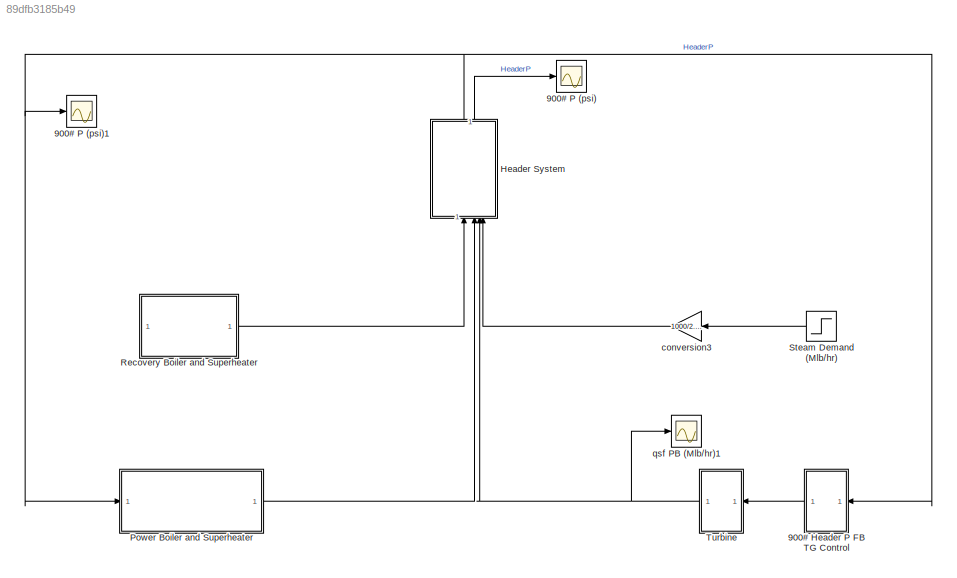
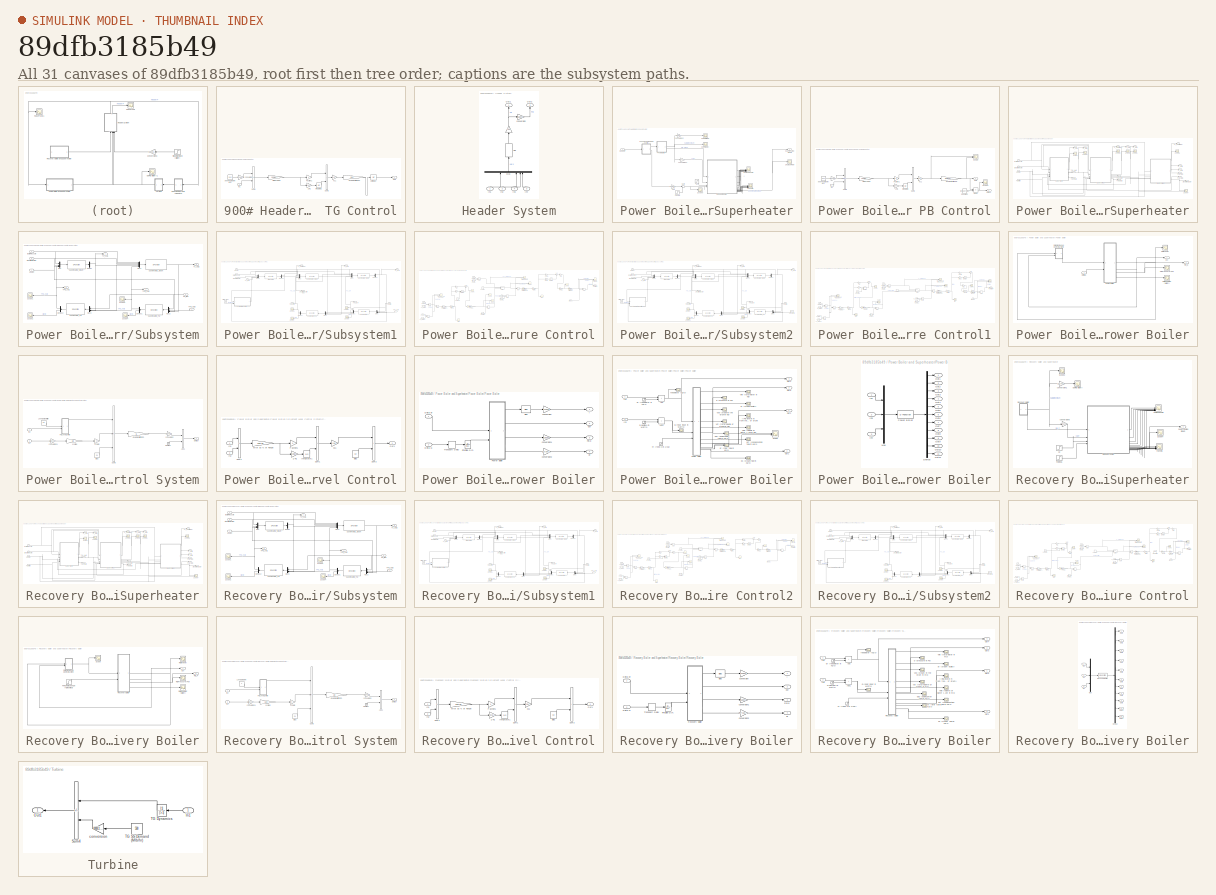
[diagram: thumbnail index - all 31 canvases of the model, root first then tree order]
MODEL slx_89dfb3185b49
KIND model
CONFIG AbsTol = auto
CONFIG EnableMultiTasking = on
CONFIG FixedStep = 0.5
CONFIG MaxStep = 1
CONFIG MinStep = 1e-3
CONFIG RelTol = auto
CONFIG SampleTimeConstraint = Unconstrained
CONFIG SolverName = ode4
CONFIG StartTime = 0
CONFIG StopTime = 1000
BLOCK [SubSystem] 900# Header P FB TG Control
BLOCK [Gain] 900# Header P FB TG Control/1//Ti1
  Gain = 0.01
  OutDataTypeStr = Inherit: Same as input
  ParamDataTypeStr = Inherit: Same as input
  SaturateOnIntegerOverflow = on
BLOCK [Constant] 900# Header P FB TG Control/900#  P Setpoint (psi)
  Value = 900
BLOCK [Inport] 900# Header P FB TG Control/In1
BLOCK [Integrator] 900# Header P FB TG Control/Integrator1
BLOCK [Gain] 900# Header P FB TG Control/Kc1
  Gain = 45
  OutDataTypeStr = Inherit: Same as input
  ParamDataTypeStr = Inherit: Same as input
  SaturateOnIntegerOverflow = on
BLOCK [Outport] 900# Header P FB TG Control/Out1
BLOCK [Gain] 900# Header P FB TG Control/P action1
  OutDataTypeStr = Inherit: Same as input
  ParamDataTypeStr = Inherit: Same as input
  SaturateOnIntegerOverflow = on
BLOCK [Gain] 900# Header P FB TG Control/Real Output from CO
  Gain = 0.01
  OutDataTypeStr = Inherit: Same as input
  ParamDataTypeStr = Inherit: Same as input
  SaturateOnIntegerOverflow = on
BLOCK [Sum] 900# Header P FB TG Control/Sum2
  IconShape = rectangular
  InputSameDT = on
  Inputs = |++
  OutDataTypeStr = Inherit: Same as first input
  SaturateOnIntegerOverflow = on
BLOCK [Sum] 900# Header P FB TG Control/Sum3
  IconShape = rectangular
  InputSameDT = on
  Inputs = |+-
  NameLocation = top
  OutDataTypeStr = Inherit: Same as first input
  SaturateOnIntegerOverflow = on
BLOCK [UnitDelay] 900# Header P FB TG Control/Unit Delay
  HasFrameUpgradeWarning = on
  SampleTime = -1
BLOCK [Gain] 900# Header P FB TG Control/conversion
  Gain = 6.21e6/900
  OutDataTypeStr = Inherit: Same as input
  ParamDataTypeStr = Inherit: Same as input
  SaturateOnIntegerOverflow = on
BLOCK [Gain] 900# Header P FB TG Control/error as % of SP
  Gain = 100/6.21e6
  OutDataTypeStr = Inherit: Same as input
  ParamDataTypeStr = Inherit: Same as input
  SaturateOnIntegerOverflow = on
BLOCK [Scope] 900# P (psi)
  Floating = off
  NumInputPorts = 1
  ScopeSpecificationString = Simulink.scopes.TimeScopeBlockCfg('CurrentConfiguration', extmgr.ConfigurationSet(extmgr.Configuration('Core','General UI',true,'FigureColor',[1 1 1]),extmgr.Configuration('Core','Source UI',true),extmgr.Configuration('Sources','WiredSimulink',true,'DataLogging',true,'DataLoggingVariableName','headerP','DataLoggingSaveFormat','StructureWithTime','DataLoggingDecimation','1','DataLoggingDecimateData...<+1852ch>
BLOCK [Scope] 900# P (psi)1
  Floating = off
  NumInputPorts = 1
  ScopeSpecificationString = Simulink.scopes.TimeScopeBlockCfg('CurrentConfiguration', extmgr.ConfigurationSet(extmgr.Configuration('Core','General UI',true),extmgr.Configuration('Core','Source UI',true),extmgr.Configuration('Sources','WiredSimulink',true,'DataLogging',true,'DataLoggingVariableName','ScopeData1','DataLoggingSaveFormat','Array','DataLoggingDecimation','1','DataLoggingDecimateData',true),extmgr.Configuration('V...<+1750ch>
BLOCK [SubSystem] Header System
  NameLocation = right
BLOCK [Gain] Header System/ 
  Gain = 1e6
  NameLocation = left
  OutDataTypeStr = Inherit: Same as input
  ParamDataTypeStr = Inherit: Same as input
  SaturateOnIntegerOverflow = on
BLOCK [S-Function] Header System/Hdr
  EnableBusSupport = off
  FunctionName = hdr
  NameLocation = left
  Parameters = Param,phin
  SFcnIsStateOwnerBlock = off
  SFunctionDeploymentMode = off
BLOCK [Inport] Header System/In1
  NameLocation = right
BLOCK [Inport] Header System/In2
  NameLocation = right
  Port = 2
BLOCK [Inport] Header System/In3
  NameLocation = right
  Port = 4
BLOCK [Inport] Header System/In4
  NameLocation = right
  Port = 3
BLOCK [Mux] Header System/Mux
  DisplayOption = bar
  NameLocation = left
BLOCK [Outport] Header System/Out1
  NameLocation = right
BLOCK [Outport] Header System/Out2
  NameLocation = right
  Port = 2
BLOCK [Gain] Header System/conversion
  Gain = 1/6.9e3
  OutDataTypeStr = Inherit: Same as input
  ParamDataTypeStr = Inherit: Same as input
  SaturateOnIntegerOverflow = on
BLOCK [SubSystem] Power Boiler and Superheater
  ShowPortLabels = none
BLOCK [SubSystem] Power Boiler and Superheater/900# Header P FB PB Control
BLOCK [Gain] Power Boiler and Superheater/900# Header P FB PB Control/1//Ti1
  Gain = 0.001
  OutDataTypeStr = Inherit: Same as input
  ParamDataTypeStr = Inherit: Same as input
  SaturateOnIntegerOverflow = on
BLOCK [Constant] Power Boiler and Superheater/900# Header P FB PB Control/900#  P Setpoint (psi)
  Value = 900
BLOCK [Constant] Power Boiler and Superheater/900# Header P FB PB Control/Constant
  Value = Qsteadystate2
BLOCK [Product] Power Boiler and Superheater/900# Header P FB PB Control/Divide
  Inputs = */
BLOCK [Inport] Power Boiler and Superheater/900# Header P FB PB Control/In1
BLOCK [Integrator] Power Boiler and Superheater/900# Header P FB PB Control/Integrator1
BLOCK [Gain] Power Boiler and Superheater/900# Header P FB PB Control/Kc1
  Gain = 15
  OutDataTypeStr = Inherit: Same as input
  ParamDataTypeStr = Inherit: Same as input
  SaturateOnIntegerOverflow = on
BLOCK [Outport] Power Boiler and Superheater/900# Header P FB PB Control/Out1
BLOCK [Outport] Power Boiler and Superheater/900# Header P FB PB Control/Output
  Port = 2
BLOCK [Gain] Power Boiler and Superheater/900# Header P FB PB Control/P action1
  OutDataTypeStr = Inherit: Same as input
  ParamDataTypeStr = Inherit: Same as input
  SaturateOnIntegerOverflow = on
BLOCK [Gain] Power Boiler and Superheater/900# Header P FB PB Control/Real Output from CO
  Gain = Qsteadystate2/100
  OutDataTypeStr = Inherit: Same as input
  ParamDataTypeStr = Inherit: Same as input
  SaturateOnIntegerOverflow = on
BLOCK [Scope] Power Boiler and Superheater/900# Header P FB PB Control/Scope
  Floating = off
  NumInputPorts = 2
  ScopeSpecificationString = Simulink.scopes.TimeScopeBlockCfg('CurrentConfiguration', extmgr.ConfigurationSet(extmgr.Configuration('Core','General UI',true,'FigureColor',[1 1 1]),extmgr.Configuration('Core','Source UI',true),extmgr.Configuration('Sources','WiredSimulink',true,'DataLoggingVariableName','PBFiringratechange','DataLogging',true,'DataLoggingSaveFormat','StructureWithTime'),extmgr.Configuration('Visuals','Time Dom...<+1797ch>
BLOCK [Scope] Power Boiler and Superheater/900# Header P FB PB Control/Scope1
  Floating = off
  NumInputPorts = 1
  ScopeSpecificationString = Simulink.scopes.TimeScopeBlockCfg('CurrentConfiguration', extmgr.ConfigurationSet(extmgr.Configuration('Core','General UI',true),extmgr.Configuration('Core','Source UI',true),extmgr.Configuration('Sources','WiredSimulink',true,'DataLoggingVariableName','ScopeData1'),extmgr.Configuration('Visuals','Time Domain',true,'SerializedDisplays',{struct('MinYLimReal','-0.05188','MaxYLimReal','0.02052','YLab...<+1390ch>
BLOCK [Sum] Power Boiler and Superheater/900# Header P FB PB Control/Sum2
  IconShape = rectangular
  InputSameDT = on
  Inputs = |++
  OutDataTypeStr = Inherit: Same as first input
  SaturateOnIntegerOverflow = on
BLOCK [Sum] Power Boiler and Superheater/900# Header P FB PB Control/Sum3
  IconShape = rectangular
  InputSameDT = on
  Inputs = |+-
  NameLocation = top
  OutDataTypeStr = Inherit: Same as first input
  SaturateOnIntegerOverflow = on
BLOCK [Gain] Power Boiler and Superheater/900# Header P FB PB Control/conversion
  Gain = 6.21e6/900
  OutDataTypeStr = Inherit: Same as input
  ParamDataTypeStr = Inherit: Same as input
  SaturateOnIntegerOverflow = on
BLOCK [Gain] Power Boiler and Superheater/900# Header P FB PB Control/error as % of SP
  Gain = 100/6.21e6
  OutDataTypeStr = Inherit: Same as input
  ParamDataTypeStr = Inherit: Same as input
  SaturateOnIntegerOverflow = on
BLOCK [Step] Power Boiler and Superheater/FG Flow
  After = FGFlow_SS
  Before = FGFlow_SS
  SampleTime = 0
BLOCK [Scope] Power Boiler and Superheater/FG Temp
  Floating = off
  NumInputPorts = 6
  ScopeSpecificationString = Simulink.scopes.TimeScopeBlockCfg('CurrentConfiguration', extmgr.ConfigurationSet(extmgr.Configuration('Core','General UI',true,'FigureColor',[1 1 1]),extmgr.Configuration('Core','Source UI',true),extmgr.Configuration('Sources','WiredSimulink',true,'DataLoggingVariableName','PBTFGOut','DataLogging',true,'DataLoggingSaveFormat','StructureWithTime'),extmgr.Configuration('Visuals','Time Domain',true,...<+2445ch>
BLOCK [Gain] Power Boiler and Superheater/Gain
  Gain = FGFlow_SS
BLOCK [Inport] Power Boiler and Superheater/HeaderP
  NameLocation = top
BLOCK [SubSystem] Power Boiler and Superheater/PB Superheater
BLOCK [Inport] Power Boiler and Superheater/PB Superheater/Boiler Pressure
  NameLocation = left
BLOCK [Inport] Power Boiler and Superheater/PB Superheater/FG_flow
  Port = 4
BLOCK [Scope] Power Boiler and Superheater/PB Superheater/Scope
  Floating = off
  NumInputPorts = 1
  ScopeSpecificationString = Simulink.scopes.TimeScopeBlockCfg('CurrentConfiguration', extmgr.ConfigurationSet(extmgr.Configuration('Core','General UI',true),extmgr.Configuration('Core','Source UI',true),extmgr.Configuration('Sources','WiredSimulink',true,'DataLoggingVariableName','ScopeData1'),extmgr.Configuration('Visuals','Time Domain',true,'SerializedDisplays',{struct('MinYLimReal','301.96666','MaxYLimReal','303.49206','Y...<+1464ch>
BLOCK [Scope] Power Boiler and Superheater/PB Superheater/Scope1
  Floating = off
  NumInputPorts = 1
  ScopeSpecificationString = Simulink.scopes.TimeScopeBlockCfg('CurrentConfiguration', extmgr.ConfigurationSet(extmgr.Configuration('Core','General UI',true),extmgr.Configuration('Core','Source UI',true),extmgr.Configuration('Sources','WiredSimulink',true,'DataLoggingVariableName','ScopeData2'),extmgr.Configuration('Visuals','Time Domain',true,'SerializedDisplays',{struct('MinYLimReal','426.44497','MaxYLimReal','426.44677','Y...<+1465ch>
BLOCK [Scope] Power Boiler and Superheater/PB Superheater/Scope2
  Floating = off
  NumInputPorts = 1
  ScopeSpecificationString = Simulink.scopes.TimeScopeBlockCfg('CurrentConfiguration', extmgr.ConfigurationSet(extmgr.Configuration('Core','General UI',true),extmgr.Configuration('Core','Source UI',true),extmgr.Configuration('Sources','WiredSimulink',true,'DataLoggingVariableName','ScopeData4'),extmgr.Configuration('Visuals','Time Domain',true,'SerializedDisplays',{struct('MinYLimReal','345.09676','MaxYLimReal','349.10673','Y...<+1447ch>
BLOCK [Scope] Power Boiler and Superheater/PB Superheater/Scope3
  Floating = off
  NumInputPorts = 1
  ScopeSpecificationString = Simulink.scopes.TimeScopeBlockCfg('CurrentConfiguration', extmgr.ConfigurationSet(extmgr.Configuration('Core','General UI',true),extmgr.Configuration('Core','Source UI',true),extmgr.Configuration('Sources','WiredSimulink',true,'DataLoggingVariableName','ScopeData2'),extmgr.Configuration('Visuals','Time Domain',true,'SerializedDisplays',{struct('MinYLimReal','330.88192','MaxYLimReal','334.50253','Y...<+1464ch>
BLOCK [Scope] Power Boiler and Superheater/PB Superheater/Scope4
  Floating = off
  NumInputPorts = 1
  ScopeSpecificationString = Simulink.scopes.TimeScopeBlockCfg('CurrentConfiguration', extmgr.ConfigurationSet(extmgr.Configuration('Core','General UI',true),extmgr.Configuration('Core','Source UI',true),extmgr.Configuration('Sources','WiredSimulink',true,'DataLoggingVariableName','ScopeData5'),extmgr.Configuration('Visuals','Time Domain',true,'SerializedDisplays',{struct('MinYLimReal','375.46604','MaxYLimReal','375.4673','YL...<+1461ch>
BLOCK [Scope] Power Boiler and Superheater/PB Superheater/Scope5
  Floating = off
  NumInputPorts = 1
  ScopeSpecificationString = Simulink.scopes.TimeScopeBlockCfg('CurrentConfiguration', extmgr.ConfigurationSet(extmgr.Configuration('Core','General UI',true),extmgr.Configuration('Core','Source UI',true),extmgr.Configuration('Sources','WiredSimulink',true,'DataLoggingVariableName','ScopeData3'),extmgr.Configuration('Visuals','Time Domain',true,'SerializedDisplays',{struct('MinYLimReal','407.69826','MaxYLimReal','428.52972','Y...<+1438ch>
BLOCK [Scope] Power Boiler and Superheater/PB Superheater/Scope7
  Floating = off
  NumInputPorts = 2
  ScopeSpecificationString = Simulink.scopes.TimeScopeBlockCfg('CurrentConfiguration', extmgr.ConfigurationSet(extmgr.Configuration('Core','General UI',true,'FigureColor',[1 1 1]),extmgr.Configuration('Core','Source UI',true),extmgr.Configuration('Sources','WiredSimulink',true,'DataLoggingVariableName','ScopeData2'),extmgr.Configuration('Visuals','Time Domain',true,'SerializedDisplays',{struct('MinYLimReal','27.85843','MaxYLi...<+1683ch>
BLOCK [Outport] Power Boiler and Superheater/PB Superheater/SteamflowOut SH
  Port = 9
BLOCK [Inport] Power Boiler and Superheater/PB Superheater/Steamflowboiler
  Port = 2
BLOCK [SubSystem] Power Boiler and Superheater/PB Superheater/Subsystem
BLOCK [Inport] Power Boiler and Superheater/PB Superheater/Subsystem/Boiler Pressure
  NameLocation = left
BLOCK [Demux] Power Boiler and Superheater/PB Superheater/Subsystem/Demux
  Outputs = 1
BLOCK [Demux] Power Boiler and Superheater/PB Superheater/Subsystem/Demux1
  Outputs = 2
BLOCK [Demux] Power Boiler and Superheater/PB Superheater/Subsystem/Demux2
  Outputs = 2
BLOCK [Inport] Power Boiler and Superheater/PB Superheater/Subsystem/FG_flow
  Port = 4
BLOCK [Mux] Power Boiler and Superheater/PB Superheater/Subsystem/Mux
  DisplayOption = bar
BLOCK [Mux] Power Boiler and Superheater/PB Superheater/Subsystem/Mux1
  DisplayOption = bar
  Inputs = 5
BLOCK [Mux] Power Boiler and Superheater/PB Superheater/Subsystem/Mux2
  DisplayOption = bar
BLOCK [Mux] Power Boiler and Superheater/PB Superheater/Subsystem/Mux3
  DisplayOption = bar
BLOCK [Scope] Power Boiler and Superheater/PB Superheater/Subsystem/Scope1
  Floating = off
  NumInputPorts = 1
  ScopeSpecificationString = Simulink.scopes.TimeScopeBlockCfg('CurrentConfiguration', extmgr.ConfigurationSet(extmgr.Configuration('Core','General UI',true),extmgr.Configuration('Core','Source UI',true),extmgr.Configuration('Sources','WiredSimulink',true,'DataLoggingVariableName','ScopeData9'),extmgr.Configuration('Visuals','Time Domain',true,'SerializedDisplays',{struct('MinYLimReal','373.2955','MaxYLimReal','573.2955','YLa...<+1446ch>
BLOCK [Scope] Power Boiler and Superheater/PB Superheater/Subsystem/Scope2
  Floating = off
  NumInputPorts = 1
  ScopeSpecificationString = Simulink.scopes.TimeScopeBlockCfg('CurrentConfiguration', extmgr.ConfigurationSet(extmgr.Configuration('Core','General UI',true),extmgr.Configuration('Core','Source UI',true),extmgr.Configuration('Sources','WiredSimulink',true,'DataLoggingVariableName','ScopeData10'),extmgr.Configuration('Visuals','Time Domain',true,'SerializedDisplays',{struct('MinYLimReal','4423.98696','MaxYLimReal','5845.3313',...<+1409ch>
BLOCK [Scope] Power Boiler and Superheater/PB Superheater/Subsystem/Scope3
  Floating = off
  NumInputPorts = 1
  ScopeSpecificationString = Simulink.scopes.TimeScopeBlockCfg('CurrentConfiguration', extmgr.ConfigurationSet(extmgr.Configuration('Core','General UI',true),extmgr.Configuration('Core','Source UI',true),extmgr.Configuration('Sources','WiredSimulink',true,'DataLoggingVariableName','ScopeData11'),extmgr.Configuration('Visuals','Time Domain',true,'SerializedDisplays',{struct('MinYLimReal','530.77081','MaxYLimReal','563.06271','...<+1455ch>
BLOCK [Scope] Power Boiler and Superheater/PB Superheater/Subsystem/Scope4
  Floating = off
  NumInputPorts = 1
  ScopeSpecificationString = Simulink.scopes.TimeScopeBlockCfg('CurrentConfiguration', extmgr.ConfigurationSet(extmgr.Configuration('Core','General UI',true),extmgr.Configuration('Core','Source UI',true),extmgr.Configuration('Sources','WiredSimulink',true,'DataLoggingVariableName','ScopeData12'),extmgr.Configuration('Visuals','Time Domain',true,'SerializedDisplays',{struct('MinYLimReal','4423.98696','MaxYLimReal','5845.3313',...<+1409ch>
BLOCK [Inport] Power Boiler and Superheater/PB Superheater/Subsystem/Steamflowboiler
  Port = 2
BLOCK [S-Function] Power Boiler and Superheater/PB Superheater/Subsystem/Superheater1_FG
  EnableBusSupport = off
  FunctionName = PBsuperheater1_FGDyn
  Parameters = Param5,TFG_out1_initPB
  SFcnIsStateOwnerBlock = off
  SFunctionDeploymentMode = off
BLOCK [S-Function] Power Boiler and Superheater/PB Superheater/Subsystem/Superheater1_Steam
  EnableBusSupport = off
  FunctionName = PBsuperheater1
  Parameters = Param3,Ts_out1_init_PB
  SFcnIsStateOwnerBlock = off
  SFunctionDeploymentMode = off
BLOCK [S-Function] Power Boiler and Superheater/PB Superheater/Subsystem/Superheater2_FG
  EnableBusSupport = off
  FunctionName = PBsuperheater2_FGDyn
  Parameters = Param5,TFG_out2_initPB
  SFcnIsStateOwnerBlock = off
  SFunctionDeploymentMode = off
BLOCK [S-Function] Power Boiler and Superheater/PB Superheater/Subsystem/Superheater2_Steam
  EnableBusSupport = off
  FunctionName = PBsuperheater2
  Parameters = Param3,Ts_out2_init_PB
  SFcnIsStateOwnerBlock = off
  SFunctionDeploymentMode = off
BLOCK [Inport] Power Boiler and Superheater/PB Superheater/Subsystem/TFG_Out3
  Port = 5
BLOCK [Outport] Power Boiler and Superheater/PB Superheater/Subsystem/TFG_out1
  Port = 3
BLOCK [Outport] Power Boiler and Superheater/PB Superheater/Subsystem/TFG_out2
  Port = 4
BLOCK [Outport] Power Boiler and Superheater/PB Superheater/Subsystem/Ts_Out2
  Port = 2
BLOCK [Outport] Power Boiler and Superheater/PB Superheater/Subsystem/Ts_out1
BLOCK [Inport] Power Boiler and Superheater/PB Superheater/Subsystem/U-Value
  Port = 3
BLOCK [SubSystem] Power Boiler and Superheater/PB Superheater/Subsystem1
BLOCK [S-Function] Power Boiler and Superheater/PB Superheater/Subsystem1/Attemporator1
  EnableBusSupport = off
  FunctionName = PBattemporator1
  Parameters = Param3, Attemp1_PB
  SFcnIsStateOwnerBlock = off
  SFunctionDeploymentMode = off
BLOCK [Inport] Power Boiler and Superheater/PB Superheater/Subsystem1/Boiler Pressure
BLOCK [Demux] Power Boiler and Superheater/PB Superheater/Subsystem1/Demux1
  Outputs = 2
BLOCK [Demux] Power Boiler and Superheater/PB Superheater/Subsystem1/Demux2
  Outputs = 2
BLOCK [Demux] Power Boiler and Superheater/PB Superheater/Subsystem1/Demux3
  Outputs = 1
BLOCK [Demux] Power Boiler and Superheater/PB Superheater/Subsystem1/Demux4
  Outputs = 2
BLOCK [Inport] Power Boiler and Superheater/PB Superheater/Subsystem1/FG_flow
  Port = 5
BLOCK [Mux] Power Boiler and Superheater/PB Superheater/Subsystem1/Mux1
  DisplayOption = bar
BLOCK [Mux] Power Boiler and Superheater/PB Superheater/Subsystem1/Mux2
  DisplayOption = bar
BLOCK [Mux] Power Boiler and Superheater/PB Superheater/Subsystem1/Mux3
  DisplayOption = bar
  Inputs = 5
BLOCK [Mux] Power Boiler and Superheater/PB Superheater/Subsystem1/Mux4
  DisplayOption = bar
BLOCK [Mux] Power Boiler and Superheater/PB Superheater/Subsystem1/Mux5
  DisplayOption = bar
  Inputs = 5
BLOCK [Scope] Power Boiler and Superheater/PB Superheater/Subsystem1/Scope4
  Floating = off
  NumInputPorts = 1
  ScopeSpecificationString = Simulink.scopes.TimeScopeBlockCfg('CurrentConfiguration', extmgr.ConfigurationSet(extmgr.Configuration('Core','General UI',true),extmgr.Configuration('Core','Source UI',true),extmgr.Configuration('Sources','WiredSimulink',true,'DataLoggingVariableName','ScopeData5'),extmgr.Configuration('Visuals','Time Domain',true,'SerializedDisplays',{struct('MinYLimReal','594.00457','MaxYLimReal','603.12927','Y...<+1459ch>
BLOCK [Scope] Power Boiler and Superheater/PB Superheater/Subsystem1/Scope5
  Floating = off
  NumInputPorts = 1
  ScopeSpecificationString = Simulink.scopes.TimeScopeBlockCfg('CurrentConfiguration', extmgr.ConfigurationSet(extmgr.Configuration('Core','General UI',true),extmgr.Configuration('Core','Source UI',true),extmgr.Configuration('Sources','WiredSimulink',true,'DataLoggingVariableName','ScopeData6'),extmgr.Configuration('Visuals','Time Domain',true,'SerializedDisplays',{struct('MinYLimReal','644.74483','MaxYLimReal','678.6164','YL...<+1423ch>
BLOCK [Scope] Power Boiler and Superheater/PB Superheater/Subsystem1/Scope6
  Floating = off
  NumInputPorts = 1
  ScopeSpecificationString = Simulink.scopes.TimeScopeBlockCfg('CurrentConfiguration', extmgr.ConfigurationSet(extmgr.Configuration('Core','General UI',true),extmgr.Configuration('Core','Source UI',true),extmgr.Configuration('Sources','WiredSimulink',true,'DataLoggingVariableName','ScopeData7'),extmgr.Configuration('Visuals','Time Domain',true,'SerializedDisplays',{struct('MinYLimReal','4432.40573','MaxYLimReal','5806.25475',...<+1413ch>
BLOCK [Scope] Power Boiler and Superheater/PB Superheater/Subsystem1/Scope7
  Floating = off
  NumInputPorts = 1
  ScopeSpecificationString = Simulink.scopes.TimeScopeBlockCfg('CurrentConfiguration', extmgr.ConfigurationSet(extmgr.Configuration('Core','General UI',true),extmgr.Configuration('Core','Source UI',true),extmgr.Configuration('Sources','WiredSimulink',true,'DataLoggingVariableName','ScopeData8'),extmgr.Configuration('Visuals','Time Domain',true,'SerializedDisplays',{struct('MinYLimReal','4119.49766','MaxYLimReal','4440.18132',...<+1412ch>
BLOCK [Outport] Power Boiler and Superheater/PB Superheater/Subsystem1/SteamflowOutAttemp1
  Port = 4
BLOCK [Inport] Power Boiler and Superheater/PB Superheater/Subsystem1/Steamflowboiler
  Port = 2
BLOCK [S-Function] Power Boiler and Superheater/PB Superheater/Subsystem1/Superheater1
  EnableBusSupport = off
  FunctionName = PBsuperheater4_FGDyn
  Parameters = Param5,TFG_out4_initPB
  SFcnIsStateOwnerBlock = off
  SFunctionDeploymentMode = off
BLOCK [S-Function] Power Boiler and Superheater/PB Superheater/Subsystem1/Superheater3_FG
  EnableBusSupport = off
  FunctionName = PBsuperheater3_FGDyn
  Parameters = Param5,TFG_out3_initPB
  SFcnIsStateOwnerBlock = off
  SFunctionDeploymentMode = off
BLOCK [S-Function] Power Boiler and Superheater/PB Superheater/Subsystem1/Superheater3_Steam
  EnableBusSupport = off
  FunctionName = PBsuperheater3
  Parameters = Param3,Ts_out3_init_PB
  SFcnIsStateOwnerBlock = off
  SFunctionDeploymentMode = off
BLOCK [S-Function] Power Boiler and Superheater/PB Superheater/Subsystem1/Superheater4_Steam
  EnableBusSupport = off
  FunctionName = PBsuperheater4
  Parameters = Param3,Ts_out4_init_PB
  SFcnIsStateOwnerBlock = off
  SFunctionDeploymentMode = off
BLOCK [Outport] Power Boiler and Superheater/PB Superheater/Subsystem1/TFG_Out3
  Port = 6
BLOCK [Outport] Power Boiler and Superheater/PB Superheater/Subsystem1/TFG_Out4
  Port = 5
BLOCK [Inport] Power Boiler and Superheater/PB Superheater/Subsystem1/TFG_out5
  Port = 6
BLOCK [SubSystem] Power Boiler and Superheater/PB Superheater/Subsystem1/Temperature Control
BLOCK [Sum] Power Boiler and Superheater/PB Superheater/Subsystem1/Temperature Control/Add
  IconShape = rectangular
  Inputs = -+
BLOCK [Sum] Power Boiler and Superheater/PB Superheater/Subsystem1/Temperature Control/Add1
  IconShape = rectangular
BLOCK [Sum] Power Boiler and Superheater/PB Superheater/Subsystem1/Temperature Control/Add2
  IconShape = rectangular
  Inputs = +-
BLOCK [Sum] Power Boiler and Superheater/PB Superheater/Subsystem1/Temperature Control/Add3
  IconShape = rectangular
  Inputs = +-
BLOCK [Sum] Power Boiler and Superheater/PB Superheater/Subsystem1/Temperature Control/Add4
  IconShape = rectangular
  Inputs = +-
BLOCK [Sum] Power Boiler and Superheater/PB Superheater/Subsystem1/Temperature Control/Add5
  IconShape = rectangular
  Inputs = +-
BLOCK [Sum] Power Boiler and Superheater/PB Superheater/Subsystem1/Temperature Control/Add6
  IconShape = rectangular
  Inputs = +-
BLOCK [Sum] Power Boiler and Superheater/PB Superheater/Subsystem1/Temperature Control/Add7
  IconShape = rectangular
BLOCK [Scope] Power Boiler and Superheater/PB Superheater/Subsystem1/Temperature Control/Attemp flow
  Floating = off
  NumInputPorts = 3
  ScopeSpecificationString = Simulink.scopes.TimeScopeBlockCfg('CurrentConfiguration', extmgr.ConfigurationSet(extmgr.Configuration('Core','General UI',true,'FigureColor',[1 1 1]),extmgr.Configuration('Core','Source UI',true),extmgr.Configuration('Sources','WiredSimulink',true,'DataLoggingVariableName','PBAttemp1flow','DataLogging',true,'DataLoggingSaveFormat','StructureWithTime'),extmgr.Configuration('Visuals','Time Domain',...<+1914ch>
BLOCK [Inport] Power Boiler and Superheater/PB Superheater/Subsystem1/Temperature Control/AttempSS
  Port = 2
BLOCK [Outport] Power Boiler and Superheater/PB Superheater/Subsystem1/Temperature Control/Attemp_flow_controlled
BLOCK [Constant] Power Boiler and Superheater/PB Superheater/Subsystem1/Temperature Control/Constant
  Value = 0
BLOCK [Constant] Power Boiler and Superheater/PB Superheater/Subsystem1/Temperature Control/Constant1
  Value = -100
BLOCK [Scope] Power Boiler and Superheater/PB Superheater/Subsystem1/Temperature Control/Error
  Floating = off
  NumInputPorts = 1
  ScopeSpecificationString = Simulink.scopes.TimeScopeBlockCfg('CurrentConfiguration', extmgr.ConfigurationSet(extmgr.Configuration('Core','General UI',true),extmgr.Configuration('Core','Source UI',true),extmgr.Configuration('Sources','WiredSimulink',true,'DataLoggingVariableName','ScopeData1'),extmgr.Configuration('Visuals','Time Domain',true,'SerializedDisplays',{struct('MinYLimReal','-26.54286','MaxYLimReal','225.90961','Y...<+1437ch>
BLOCK [Gain] Power Boiler and Superheater/PB Superheater/Subsystem1/Temperature Control/Error in %
  Gain = 100
BLOCK [Gain] Power Boiler and Superheater/PB Superheater/Subsystem1/Temperature Control/Error in%1
  Gain = 100
BLOCK [Scope] Power Boiler and Superheater/PB Superheater/Subsystem1/Temperature Control/Error1
  Floating = off
  NumInputPorts = 1
  ScopeSpecificationString = Simulink.scopes.TimeScopeBlockCfg('CurrentConfiguration', extmgr.ConfigurationSet(extmgr.Configuration('Core','General UI',true),extmgr.Configuration('Core','Source UI',true),extmgr.Configuration('Sources','WiredSimulink',true,'DataLoggingVariableName','ScopeData3'),extmgr.Configuration('Visuals','Time Domain',true,'SerializedDisplays',{struct('MinYLimReal','-0.59121','MaxYLimReal','1.58489','YLab...<+1432ch>
BLOCK [Gain] Power Boiler and Superheater/PB Superheater/Subsystem1/Temperature Control/Gain
  Gain = 5
BLOCK [Integrator] Power Boiler and Superheater/PB Superheater/Subsystem1/Temperature Control/Integrator
BLOCK [Integrator] Power Boiler and Superheater/PB Superheater/Subsystem1/Temperature Control/Integrator2
  InitialCondition = -100.1
  InitialConditionSource = external
BLOCK [Gain] Power Boiler and Superheater/PB Superheater/Subsystem1/Temperature Control/Ki
  Gain = 0.03
BLOCK [Gain] Power Boiler and Superheater/PB Superheater/Subsystem1/Temperature Control/Kp
BLOCK [Gain] Power Boiler and Superheater/PB Superheater/Subsystem1/Temperature Control/Normalize to Ts_Out4SS
  Gain = 1/Ts_out4_init_PB
BLOCK [Gain] Power Boiler and Superheater/PB Superheater/Subsystem1/Temperature Control/Normalize to Ts_OutAttemp1 SS
  Gain = 1/Attemp1_PB
BLOCK [Gain] Power Boiler and Superheater/PB Superheater/Subsystem1/Temperature Control/P action
BLOCK [Gain] Power Boiler and Superheater/PB Superheater/Subsystem1/Temperature Control/Real CO
  Gain = 1/100
BLOCK [Gain] Power Boiler and Superheater/PB Superheater/Subsystem1/Temperature Control/Real CO1
  Gain = Attemp1_PB/100
BLOCK [Gain] Power Boiler and Superheater/PB Superheater/Subsystem1/Temperature Control/Scalling from Attemp SS
  Gain = Attempflow_SS
BLOCK [Scope] Power Boiler and Superheater/PB Superheater/Subsystem1/Temperature Control/Scope
  Floating = off
  NumInputPorts = 2
  ScopeSpecificationString = Simulink.scopes.TimeScopeBlockCfg('CurrentConfiguration', extmgr.ConfigurationSet(extmgr.Configuration('Core','General UI',true),extmgr.Configuration('Core','Source UI',true),extmgr.Configuration('Sources','WiredSimulink',true,'DataLoggingVariableName','ScopeData1'),extmgr.Configuration('Visuals','Time Domain',true,'SerializedDisplays',{struct('MinYLimReal','-129.69468','MaxYLimReal','401.59299','...<+1476ch>
BLOCK [Scope] Power Boiler and Superheater/PB Superheater/Subsystem1/Temperature Control/Scope1
  Floating = off
  NumInputPorts = 2
  ScopeSpecificationString = Simulink.scopes.TimeScopeBlockCfg('CurrentConfiguration', extmgr.ConfigurationSet(extmgr.Configuration('Core','General UI',true),extmgr.Configuration('Core','Source UI',true),extmgr.Configuration('Sources','WiredSimulink',true,'DataLoggingVariableName','ScopeData2'),extmgr.Configuration('Visuals','Time Domain',true,'SerializedDisplays',{struct('MinYLimReal','-20.0218','MaxYLimReal','23.07003','YLa...<+1510ch>
BLOCK [Scope] Power Boiler and Superheater/PB Superheater/Subsystem1/Temperature Control/Scope2
  Floating = off
  NumInputPorts = 1
  ScopeSpecificationString = Simulink.scopes.TimeScopeBlockCfg('CurrentConfiguration', extmgr.ConfigurationSet(extmgr.Configuration('Core','General UI',true),extmgr.Configuration('Core','Source UI',true),extmgr.Configuration('Sources','WiredSimulink',true,'DataLoggingVariableName','ScopeData2'),extmgr.Configuration('Visuals','Time Domain',true,'SerializedDisplays',{struct('MinYLimReal','-104.44482','MaxYLimReal','-99.50607','...<+1457ch>
BLOCK [Scope] Power Boiler and Superheater/PB Superheater/Subsystem1/Temperature Control/Scope3
  Floating = off
  NumInputPorts = 1
  ScopeSpecificationString = Simulink.scopes.TimeScopeBlockCfg('CurrentConfiguration', extmgr.ConfigurationSet(extmgr.Configuration('Core','General UI',true),extmgr.Configuration('Core','Source UI',true),extmgr.Configuration('Sources','WiredSimulink',true,'DataLoggingVariableName','ScopeData2'),extmgr.Configuration('Visuals','Time Domain',true,'SerializedDisplays',{struct('MinYLimReal','-799.05905','MaxYLimReal','-255.76726',...<+1444ch>
BLOCK [Scope] Power Boiler and Superheater/PB Superheater/Subsystem1/Temperature Control/Scope5
  Floating = off
  NumInputPorts = 1
  ScopeSpecificationString = Simulink.scopes.TimeScopeBlockCfg('CurrentConfiguration', extmgr.ConfigurationSet(extmgr.Configuration('Core','General UI',true),extmgr.Configuration('Core','Source UI',true),extmgr.Configuration('Sources','WiredSimulink',true,'DataLoggingVariableName','ScopeData3'),extmgr.Configuration('Visuals','Time Domain',true,'SerializedDisplays',{struct('MinYLimReal','-1.51032','MaxYLimReal','0.16781','YLab...<+1399ch>
BLOCK [Sum] Power Boiler and Superheater/PB Superheater/Subsystem1/Temperature Control/Sum
  Inputs = |++
BLOCK [Sum] Power Boiler and Superheater/PB Superheater/Subsystem1/Temperature Control/Sum2
  Inputs = |++
BLOCK [Switch] Power Boiler and Superheater/PB Superheater/Subsystem1/Temperature Control/Switch
  Criteria = u2 > Threshold
  InputSameDT = off
  SaturateOnIntegerOverflow = off
BLOCK [Constant] Power Boiler and Superheater/PB Superheater/Subsystem1/Temperature Control/TSout SS
  Value = Attemp1_PB
BLOCK [Constant] Power Boiler and Superheater/PB Superheater/Subsystem1/Temperature Control/TSout SS1
  Value = Attemp1_PB
BLOCK [Constant] Power Boiler and Superheater/PB Superheater/Subsystem1/Temperature Control/TSout SS2
  Value = Attemp1_PB
BLOCK [Scope] Power Boiler and Superheater/PB Superheater/Subsystem1/Temperature Control/Tracker TS_out Attemp1 and SP
  Floating = off
  NumInputPorts = 2
  ScopeSpecificationString = Simulink.scopes.TimeScopeBlockCfg('CurrentConfiguration', extmgr.ConfigurationSet(extmgr.Configuration('Core','General UI',true),extmgr.Configuration('Core','Source UI',true),extmgr.Configuration('Sources','WiredSimulink',true,'DataLoggingVariableName','ScopeData2'),extmgr.Configuration('Visuals','Time Domain',true,'SerializedDisplays',{struct('MinYLimReal','-12.62357','MaxYLimReal','1.40262','YLa...<+1519ch>
BLOCK [Scope] Power Boiler and Superheater/PB Superheater/Subsystem1/Temperature Control/Tracker TS_out4 and SP Dev
  Floating = off
  NumInputPorts = 2
  ScopeSpecificationString = Simulink.scopes.TimeScopeBlockCfg('CurrentConfiguration', extmgr.ConfigurationSet(extmgr.Configuration('Core','General UI',true,'FigureColor',[1 1 1]),extmgr.Configuration('Core','Source UI',true),extmgr.Configuration('Sources','WiredSimulink',true,'DataLoggingVariableName','TsOut4PBDev','DataLogging',true,'DataLoggingSaveFormat','StructureWithTime'),extmgr.Configuration('Visuals','Time Domain',tr...<+1786ch>
BLOCK [Step] Power Boiler and Superheater/PB Superheater/Subsystem1/Temperature Control/TsOut4SP
  After = 416
  Before = Ts_out4_init_PB
  SampleTime = 0
  Time = 5000
BLOCK [Step] Power Boiler and Superheater/PB Superheater/Subsystem1/Temperature Control/TsOutSP
  After = 340
  Before = Attemp1_PB
  SampleTime = 0
  Time = 50
BLOCK [Inport] Power Boiler and Superheater/PB Superheater/Subsystem1/Temperature Control/Ts_Out4
  Port = 3
BLOCK [Constant] Power Boiler and Superheater/PB Superheater/Subsystem1/Temperature Control/Ts_Out4ss
  Value = Ts_out4_init_PB
BLOCK [Constant] Power Boiler and Superheater/PB Superheater/Subsystem1/Temperature Control/Ts_Out4ss1
  Value = Ts_out4_init_PB
BLOCK [Inport] Power Boiler and Superheater/PB Superheater/Subsystem1/Temperature Control/Ts_OutAttemp1
  NameLocation = top
BLOCK [Gain] Power Boiler and Superheater/PB Superheater/Subsystem1/Temperature Control/integral
  Gain = 0.4
BLOCK [Inport] Power Boiler and Superheater/PB Superheater/Subsystem1/Ts_Out2
  Port = 3
BLOCK [Outport] Power Boiler and Superheater/PB Superheater/Subsystem1/Ts_Out3
  Port = 2
BLOCK [Outport] Power Boiler and Superheater/PB Superheater/Subsystem1/Ts_Out4
  Port = 3
BLOCK [Outport] Power Boiler and Superheater/PB Superheater/Subsystem1/Ts_OutAttemp1
BLOCK [Inport] Power Boiler and Superheater/PB Superheater/Subsystem1/U-Value
  Port = 4
BLOCK [Step] Power Boiler and Superheater/PB Superheater/Subsystem1/attemp_flow3
  After = Attempflow_init
  Before = Attempflow_init
  NameLocation = top
  SampleTime = 0
  Time = 100
BLOCK [SubSystem] Power Boiler and Superheater/PB Superheater/Subsystem2
BLOCK [S-Function] Power Boiler and Superheater/PB Superheater/Subsystem2/Attemporator1
  EnableBusSupport = off
  FunctionName = PBattemporator2
  Parameters = Param3,Attemp2_PB
  SFcnIsStateOwnerBlock = off
  SFunctionDeploymentMode = off
BLOCK [Inport] Power Boiler and Superheater/PB Superheater/Subsystem2/Boiler Pressure1
BLOCK [Constant] Power Boiler and Superheater/PB Superheater/Subsystem2/Constant4
  Value = 850
BLOCK [Demux] Power Boiler and Superheater/PB Superheater/Subsystem2/Demux2
  Outputs = 2
BLOCK [Demux] Power Boiler and Superheater/PB Superheater/Subsystem2/Demux3
  Outputs = 2
BLOCK [Demux] Power Boiler and Superheater/PB Superheater/Subsystem2/Demux7
  Outputs = 1
BLOCK [Demux] Power Boiler and Superheater/PB Superheater/Subsystem2/Demux8
  Outputs = 2
BLOCK [Inport] Power Boiler and Superheater/PB Superheater/Subsystem2/FG_flow
  Port = 5
BLOCK [Mux] Power Boiler and Superheater/PB Superheater/Subsystem2/Mux10
  DisplayOption = bar
  Inputs = 5
BLOCK [Mux] Power Boiler and Superheater/PB Superheater/Subsystem2/Mux3
  DisplayOption = bar
BLOCK [Mux] Power Boiler and Superheater/PB Superheater/Subsystem2/Mux4
  DisplayOption = bar
BLOCK [Mux] Power Boiler and Superheater/PB Superheater/Subsystem2/Mux5
  DisplayOption = bar
  Inputs = 5
BLOCK [Mux] Power Boiler and Superheater/PB Superheater/Subsystem2/Mux9
  DisplayOption = bar
BLOCK [Scope] Power Boiler and Superheater/PB Superheater/Subsystem2/Scope10
  Floating = off
  NumInputPorts = 1
  ScopeSpecificationString = Simulink.scopes.TimeScopeBlockCfg('CurrentConfiguration', extmgr.ConfigurationSet(extmgr.Configuration('Core','General UI',true),extmgr.Configuration('Core','Source UI',true),extmgr.Configuration('Sources','WiredSimulink',true,'DataLoggingVariableName','ScopeData1'),extmgr.Configuration('Visuals','Time Domain',true,'SerializedDisplays',{struct('MinYLimReal','4119.49766','MaxYLimReal','4440.18132',...<+1412ch>
BLOCK [Scope] Power Boiler and Superheater/PB Superheater/Subsystem2/Scope7
  Floating = off
  NumInputPorts = 1
  ScopeSpecificationString = Simulink.scopes.TimeScopeBlockCfg('CurrentConfiguration', extmgr.ConfigurationSet(extmgr.Configuration('Core','General UI',true),extmgr.Configuration('Core','Source UI',true),extmgr.Configuration('Sources','WiredSimulink',true,'DataLoggingVariableName','ScopeData2'),extmgr.Configuration('Visuals','Time Domain',true,'SerializedDisplays',{struct('MinYLimReal','594.00457','MaxYLimReal','603.12927','Y...<+1459ch>
BLOCK [Scope] Power Boiler and Superheater/PB Superheater/Subsystem2/Scope8
  Floating = off
  NumInputPorts = 1
  ScopeSpecificationString = Simulink.scopes.TimeScopeBlockCfg('CurrentConfiguration', extmgr.ConfigurationSet(extmgr.Configuration('Core','General UI',true),extmgr.Configuration('Core','Source UI',true),extmgr.Configuration('Sources','WiredSimulink',true,'DataLoggingVariableName','ScopeData3'),extmgr.Configuration('Visuals','Time Domain',true,'SerializedDisplays',{struct('MinYLimReal','644.74483','MaxYLimReal','678.6164','YL...<+1423ch>
BLOCK [Scope] Power Boiler and Superheater/PB Superheater/Subsystem2/Scope9
  Floating = off
  NumInputPorts = 1
  ScopeSpecificationString = Simulink.scopes.TimeScopeBlockCfg('CurrentConfiguration', extmgr.ConfigurationSet(extmgr.Configuration('Core','General UI',true),extmgr.Configuration('Core','Source UI',true),extmgr.Configuration('Sources','WiredSimulink',true,'DataLoggingVariableName','ScopeData4'),extmgr.Configuration('Visuals','Time Domain',true,'SerializedDisplays',{struct('MinYLimReal','4432.40573','MaxYLimReal','5806.25475',...<+1413ch>
BLOCK [Outport] Power Boiler and Superheater/PB Superheater/Subsystem2/SteamflowOutSH
  Port = 6
BLOCK [Inport] Power Boiler and Superheater/PB Superheater/Subsystem2/Steamflowboiler
  Port = 2
BLOCK [S-Function] Power Boiler and Superheater/PB Superheater/Subsystem2/Superheater3_Steam
  EnableBusSupport = off
  FunctionName = PBsuperheater5
  Parameters = Param3,Ts_out5_init_PB
  SFcnIsStateOwnerBlock = off
  SFunctionDeploymentMode = off
BLOCK [S-Function] Power Boiler and Superheater/PB Superheater/Subsystem2/Superheater4_Steam
  EnableBusSupport = off
  FunctionName = PBsuperheater6
  Parameters = Param3,Ts_out6_init_PB
  SFcnIsStateOwnerBlock = off
  SFunctionDeploymentMode = off
BLOCK [S-Function] Power Boiler and Superheater/PB Superheater/Subsystem2/Superheater5_FG
  EnableBusSupport = off
  FunctionName = PBsuperheater5_FGDyn
  Parameters = Param5,TFG_out5_initPB
  SFcnIsStateOwnerBlock = off
  SFunctionDeploymentMode = off
BLOCK [S-Function] Power Boiler and Superheater/PB Superheater/Subsystem2/Superheater6_FG
  EnableBusSupport = off
  FunctionName = PBsuperheater6_FGDyn
  Parameters = Param5,TFG_out6_initPB
  SFcnIsStateOwnerBlock = off
  SFunctionDeploymentMode = off
BLOCK [Outport] Power Boiler and Superheater/PB Superheater/Subsystem2/TFG_Out5
  Port = 5
BLOCK [Outport] Power Boiler and Superheater/PB Superheater/Subsystem2/TFG_Out6
  Port = 4
BLOCK [SubSystem] Power Boiler and Superheater/PB Superheater/Subsystem2/Temperature Control1
BLOCK [Sum] Power Boiler and Superheater/PB Superheater/Subsystem2/Temperature Control1/Add
  IconShape = rectangular
  Inputs = -+
BLOCK [Sum] Power Boiler and Superheater/PB Superheater/Subsystem2/Temperature Control1/Add1
  IconShape = rectangular
BLOCK [Sum] Power Boiler and Superheater/PB Superheater/Subsystem2/Temperature Control1/Add2
  IconShape = rectangular
  Inputs = +-
BLOCK [Sum] Power Boiler and Superheater/PB Superheater/Subsystem2/Temperature Control1/Add3
  IconShape = rectangular
  Inputs = +-
BLOCK [Sum] Power Boiler and Superheater/PB Superheater/Subsystem2/Temperature Control1/Add4
  IconShape = rectangular
  Inputs = +-
BLOCK [Sum] Power Boiler and Superheater/PB Superheater/Subsystem2/Temperature Control1/Add5
  IconShape = rectangular
  Inputs = +-
BLOCK [Sum] Power Boiler and Superheater/PB Superheater/Subsystem2/Temperature Control1/Add6
  IconShape = rectangular
  Inputs = +-
BLOCK [Sum] Power Boiler and Superheater/PB Superheater/Subsystem2/Temperature Control1/Add7
  IconShape = rectangular
BLOCK [Inport] Power Boiler and Superheater/PB Superheater/Subsystem2/Temperature Control1/AttempSS
  Port = 2
BLOCK [Outport] Power Boiler and Superheater/PB Superheater/Subsystem2/Temperature Control1/Attemp_flow_controlled
BLOCK [Constant] Power Boiler and Superheater/PB Superheater/Subsystem2/Temperature Control1/Constant
  Value = 0
BLOCK [Constant] Power Boiler and Superheater/PB Superheater/Subsystem2/Temperature Control1/Constant1
  Value = -100
BLOCK [Scope] Power Boiler and Superheater/PB Superheater/Subsystem2/Temperature Control1/Error
  Floating = off
  NumInputPorts = 1
  ScopeSpecificationString = Simulink.scopes.TimeScopeBlockCfg('CurrentConfiguration', extmgr.ConfigurationSet(extmgr.Configuration('Core','General UI',true),extmgr.Configuration('Core','Source UI',true),extmgr.Configuration('Sources','WiredSimulink',true,'DataLoggingVariableName','ScopeData2'),extmgr.Configuration('Visuals','Time Domain',true,'SerializedDisplays',{struct('MinYLimReal','-0.0236','MaxYLimReal','0.04228','YLabe...<+1444ch>
BLOCK [Gain] Power Boiler and Superheater/PB Superheater/Subsystem2/Temperature Control1/Error in %
  Gain = 100
BLOCK [Gain] Power Boiler and Superheater/PB Superheater/Subsystem2/Temperature Control1/Error in%1
  Gain = 100
BLOCK [Scope] Power Boiler and Superheater/PB Superheater/Subsystem2/Temperature Control1/Error1
  Floating = off
  NumInputPorts = 1
  ScopeSpecificationString = Simulink.scopes.TimeScopeBlockCfg('CurrentConfiguration', extmgr.ConfigurationSet(extmgr.Configuration('Core','General UI',true),extmgr.Configuration('Core','Source UI',true),extmgr.Configuration('Sources','WiredSimulink',true,'DataLoggingVariableName','ScopeData3'),extmgr.Configuration('Visuals','Time Domain',true,'SerializedDisplays',{struct('MinYLimReal','-0.07146','MaxYLimReal','0.15101','YLab...<+1451ch>
BLOCK [Gain] Power Boiler and Superheater/PB Superheater/Subsystem2/Temperature Control1/Gain
  Gain = 5
BLOCK [Integrator] Power Boiler and Superheater/PB Superheater/Subsystem2/Temperature Control1/Integrator
BLOCK [Integrator] Power Boiler and Superheater/PB Superheater/Subsystem2/Temperature Control1/Integrator2
  InitialCondition = -100.1
  InitialConditionSource = external
BLOCK [Gain] Power Boiler and Superheater/PB Superheater/Subsystem2/Temperature Control1/Ki
  Gain = 0.04
BLOCK [Gain] Power Boiler and Superheater/PB Superheater/Subsystem2/Temperature Control1/Kp
  Gain = 0.8
BLOCK [Gain] Power Boiler and Superheater/PB Superheater/Subsystem2/Temperature Control1/Normalize to Ts_Out4SS
  Gain = 1/Ts_out6_init_PB
BLOCK [Gain] Power Boiler and Superheater/PB Superheater/Subsystem2/Temperature Control1/Normalize to Ts_OutAttemp3 SS
  Gain = 1/Attemp2_PB
BLOCK [Gain] Power Boiler and Superheater/PB Superheater/Subsystem2/Temperature Control1/P action
BLOCK [Gain] Power Boiler and Superheater/PB Superheater/Subsystem2/Temperature Control1/Real CO
  Gain = 1/100
BLOCK [Gain] Power Boiler and Superheater/PB Superheater/Subsystem2/Temperature Control1/Real CO1
  Gain = Attemp2_PB/100
BLOCK [Gain] Power Boiler and Superheater/PB Superheater/Subsystem2/Temperature Control1/Scalling from Attemp SS
  Gain = Attempflow_SS
BLOCK [Scope] Power Boiler and Superheater/PB Superheater/Subsystem2/Temperature Control1/Scope
  Floating = off
  NumInputPorts = 2
  ScopeSpecificationString = Simulink.scopes.TimeScopeBlockCfg('CurrentConfiguration', extmgr.ConfigurationSet(extmgr.Configuration('Core','General UI',true),extmgr.Configuration('Core','Source UI',true),extmgr.Configuration('Sources','WiredSimulink',true,'DataLoggingVariableName','ScopeData1'),extmgr.Configuration('Visuals','Time Domain',true,'SerializedDisplays',{struct('MinYLimReal','-75.35277','MaxYLimReal','512.69313','Y...<+1475ch>
BLOCK [Scope] Power Boiler and Superheater/PB Superheater/Subsystem2/Temperature Control1/Scope1
  Floating = off
  NumInputPorts = 2
  ScopeSpecificationString = Simulink.scopes.TimeScopeBlockCfg('CurrentConfiguration', extmgr.ConfigurationSet(extmgr.Configuration('Core','General UI',true),extmgr.Configuration('Core','Source UI',true),extmgr.Configuration('Sources','WiredSimulink',true,'DataLoggingVariableName','ScopeData5'),extmgr.Configuration('Visuals','Time Domain',true,'SerializedDisplays',{struct('MinYLimReal','-0.26519','MaxYLimReal','0.2444','YLabe...<+1499ch>
BLOCK [Scope] Power Boiler and Superheater/PB Superheater/Subsystem2/Temperature Control1/Scope2
  Floating = off
  NumInputPorts = 3
  ScopeSpecificationString = Simulink.scopes.TimeScopeBlockCfg('CurrentConfiguration', extmgr.ConfigurationSet(extmgr.Configuration('Core','General UI',true,'FigureColor',[1 1 1]),extmgr.Configuration('Core','Source UI',true),extmgr.Configuration('Sources','WiredSimulink',true,'DataLoggingVariableName','PBAttemp2flow','DataLogging',true,'DataLoggingSaveFormat','StructureWithTime'),extmgr.Configuration('Visuals','Time Domain',...<+1868ch>
BLOCK [Scope] Power Boiler and Superheater/PB Superheater/Subsystem2/Temperature Control1/Scope3
  Floating = off
  NumInputPorts = 1
  ScopeSpecificationString = Simulink.scopes.TimeScopeBlockCfg('CurrentConfiguration', extmgr.ConfigurationSet(extmgr.Configuration('Core','General UI',true),extmgr.Configuration('Core','Source UI',true),extmgr.Configuration('Sources','WiredSimulink',true,'DataLoggingVariableName','ScopeData4'),extmgr.Configuration('Visuals','Time Domain',true,'SerializedDisplays',{struct('MinYLimReal','-1.34511','MaxYLimReal','0.14946','YLab...<+1366ch>
BLOCK [Scope] Power Boiler and Superheater/PB Superheater/Subsystem2/Temperature Control1/Scope4
  Floating = off
  NumInputPorts = 1
  ScopeSpecificationString = Simulink.scopes.TimeScopeBlockCfg('CurrentConfiguration', extmgr.ConfigurationSet(extmgr.Configuration('Core','General UI',true),extmgr.Configuration('Core','Source UI',true),extmgr.Configuration('Sources','WiredSimulink',true,'DataLoggingVariableName','ScopeData3'),extmgr.Configuration('Visuals','Time Domain',true,'SerializedDisplays',{struct('MinYLimReal','-99.972','MaxYLimReal','-99.84881','YLa...<+1443ch>
BLOCK [Sum] Power Boiler and Superheater/PB Superheater/Subsystem2/Temperature Control1/Sum
  Inputs = |++
BLOCK [Sum] Power Boiler and Superheater/PB Superheater/Subsystem2/Temperature Control1/Sum2
  Inputs = |++
BLOCK [Switch] Power Boiler and Superheater/PB Superheater/Subsystem2/Temperature Control1/Switch
  Criteria = u2 > Threshold
  InputSameDT = off
  SaturateOnIntegerOverflow = off
BLOCK [Constant] Power Boiler and Superheater/PB Superheater/Subsystem2/Temperature Control1/TSout SS
  Value = Attemp2_PB
BLOCK [Constant] Power Boiler and Superheater/PB Superheater/Subsystem2/Temperature Control1/TSout SS1
  Value = Attemp2_PB
BLOCK [Constant] Power Boiler and Superheater/PB Superheater/Subsystem2/Temperature Control1/TSout SS2
  Value = Attemp2_PB
BLOCK [Scope] Power Boiler and Superheater/PB Superheater/Subsystem2/Temperature Control1/Tracker TS_out Attemp2 and SP
  Floating = off
  NumInputPorts = 2
  ScopeSpecificationString = Simulink.scopes.TimeScopeBlockCfg('CurrentConfiguration', extmgr.ConfigurationSet(extmgr.Configuration('Core','General UI',true),extmgr.Configuration('Core','Source UI',true),extmgr.Configuration('Sources','WiredSimulink',true,'DataLoggingVariableName','ScopeData6'),extmgr.Configuration('Visuals','Time Domain',true,'SerializedDisplays',{struct('MinYLimReal','-15.26742','MaxYLimReal','1.69638','YLa...<+1516ch>
BLOCK [Scope] Power Boiler and Superheater/PB Superheater/Subsystem2/Temperature Control1/Tracker TS_out6 and SP Dev
  Floating = off
  NumInputPorts = 2
  ScopeSpecificationString = Simulink.scopes.TimeScopeBlockCfg('CurrentConfiguration', extmgr.ConfigurationSet(extmgr.Configuration('Core','General UI',true,'FigureColor',[1 1 1]),extmgr.Configuration('Core','Source UI',true),extmgr.Configuration('Sources','WiredSimulink',true,'DataLoggingVariableName','TsOut6PBDev','DataLogging',true,'DataLoggingSaveFormat','StructureWithTime'),extmgr.Configuration('Visuals','Time Domain',tr...<+1755ch>
BLOCK [Step] Power Boiler and Superheater/PB Superheater/Subsystem2/Temperature Control1/TsOut6SP
  After = 540
  Before = Ts_out6_init_PB
  SampleTime = 0
  Time = 50000
BLOCK [Step] Power Boiler and Superheater/PB Superheater/Subsystem2/Temperature Control1/TsOutSP
  After = 442
  Before = Attemp2_PB
  SampleTime = 0
  Time = 50
BLOCK [Constant] Power Boiler and Superheater/PB Superheater/Subsystem2/Temperature Control1/Ts_Out4ss
  Value = Ts_out6_init_PB
BLOCK [Constant] Power Boiler and Superheater/PB Superheater/Subsystem2/Temperature Control1/Ts_Out4ss1
  Value = Ts_out6_init_PB
BLOCK [Inport] Power Boiler and Superheater/PB Superheater/Subsystem2/Temperature Control1/Ts_Out6
  Port = 3
BLOCK [Inport] Power Boiler and Superheater/PB Superheater/Subsystem2/Temperature Control1/Ts_OutAttemp2
  NameLocation = top
BLOCK [Gain] Power Boiler and Superheater/PB Superheater/Subsystem2/Temperature Control1/integral
  Gain = 0.7
BLOCK [Inport] Power Boiler and Superheater/PB Superheater/Subsystem2/Ts_Out4
  Port = 4
BLOCK [Outport] Power Boiler and Superheater/PB Superheater/Subsystem2/Ts_Out5
  Port = 2
BLOCK [Outport] Power Boiler and Superheater/PB Superheater/Subsystem2/Ts_Out6
  Port = 3
BLOCK [Outport] Power Boiler and Superheater/PB Superheater/Subsystem2/Ts_OutAttemp2
BLOCK [Inport] Power Boiler and Superheater/PB Superheater/Subsystem2/U-Value1
  Port = 3
BLOCK [Step] Power Boiler and Superheater/PB Superheater/Subsystem2/attemp_flow1
  After = Attempflow_init
  Before = Attempflow_init
  NameLocation = top
  SampleTime = 0
  Time = 100
BLOCK [Outport] Power Boiler and Superheater/PB Superheater/TFG_Out1
  Port = 10
BLOCK [Outport] Power Boiler and Superheater/PB Superheater/TFG_Out2
  Port = 11
BLOCK [Outport] Power Boiler and Superheater/PB Superheater/TFG_Out3
  Port = 12
BLOCK [Outport] Power Boiler and Superheater/PB Superheater/TFG_Out4
  Port = 13
BLOCK [Outport] Power Boiler and Superheater/PB Superheater/TFG_Out5
  Port = 14
BLOCK [Outport] Power Boiler and Superheater/PB Superheater/TFG_Out6
  Port = 15
BLOCK [Outport] Power Boiler and Superheater/PB Superheater/Ts_Out2
  Port = 2
BLOCK [Outport] Power Boiler and Superheater/PB Superheater/Ts_Out3
  Port = 4
BLOCK [Outport] Power Boiler and Superheater/PB Superheater/Ts_Out4
  Port = 5
BLOCK [Outport] Power Boiler and Superheater/PB Superheater/Ts_Out5
  Port = 7
BLOCK [Outport] Power Boiler and Superheater/PB Superheater/Ts_Out6
  Port = 8
BLOCK [Outport] Power Boiler and Superheater/PB Superheater/Ts_OutAttemp1
  Port = 3
BLOCK [Outport] Power Boiler and Superheater/PB Superheater/Ts_OutAttemp2
  Port = 6
BLOCK [Outport] Power Boiler and Superheater/PB Superheater/Ts_out1
BLOCK [Inport] Power Boiler and Superheater/PB Superheater/U-Value
  Port = 3
BLOCK [SubSystem] Power Boiler and Superheater/Power Boiler
BLOCK [SubSystem] Power Boiler and Superheater/Power Boiler/3 Element Level Control System
BLOCK [Sum] Power Boiler and Superheater/Power Boiler/3 Element Level Control System/Add1
  IconShape = rectangular
  Inputs = +-
BLOCK [Constant] Power Boiler and Superheater/Power Boiler/3 Element Level Control System/Bias
  Value = 50
BLOCK [Outport] Power Boiler and Superheater/Power Boiler/3 Element Level Control System/Delta qf
BLOCK [SubSystem] Power Boiler and Superheater/Power Boiler/3 Element Level Control System/FB Level Control
BLOCK [Gain] Power Boiler and Superheater/Power Boiler/3 Element Level Control System/FB Level Control/1//Ti1
  Gain = 1/3/60
  OutDataTypeStr = Inherit: Same as input
  ParamDataTypeStr = Inherit: Same as input
  SaturateOnIntegerOverflow = on
BLOCK [Constant] Power Boiler and Superheater/Power Boiler/3 Element Level Control System/FB Level Control/Bias
  Value = 50
BLOCK [Inport] Power Boiler and Superheater/Power Boiler/3 Element Level Control System/FB Level Control/In1
BLOCK [Inport] Power Boiler and Superheater/Power Boiler/3 Element Level Control System/FB Level Control/In2
  Port = 2
BLOCK [Integrator] Power Boiler and Superheater/Power Boiler/3 Element Level Control System/FB Level Control/Integrator1
BLOCK [Gain] Power Boiler and Superheater/Power Boiler/3 Element Level Control System/FB Level Control/Kc1
  Gain = 1.38
  OutDataTypeStr = Inherit: Same as input
  ParamDataTypeStr = Inherit: Same as input
  SaturateOnIntegerOverflow = on
BLOCK [Outport] Power Boiler and Superheater/Power Boiler/3 Element Level Control System/FB Level Control/Out1
BLOCK [Gain] Power Boiler and Superheater/Power Boiler/3 Element Level Control System/FB Level Control/P action1
  OutDataTypeStr = Inherit: Same as input
  ParamDataTypeStr = Inherit: Same as input
  SaturateOnIntegerOverflow = on
BLOCK [Sum] Power Boiler and Superheater/Power Boiler/3 Element Level Control System/FB Level Control/Sum1
  IconShape = rectangular
  InputSameDT = on
  Inputs = |++
  OutDataTypeStr = Inherit: Same as first input
  SaturateOnIntegerOverflow = on
BLOCK [Sum] Power Boiler and Superheater/Power Boiler/3 Element Level Control System/FB Level Control/Sum2
  IconShape = rectangular
  InputSameDT = on
  Inputs = |++
  OutDataTypeStr = Inherit: Same as first input
  SaturateOnIntegerOverflow = on
BLOCK [Sum] Power Boiler and Superheater/Power Boiler/3 Element Level Control System/FB Level Control/Sum4
  IconShape = rectangular
  InputSameDT = on
  Inputs = |+-
  NameLocation = top
  OutDataTypeStr = Inherit: Same as first input
  SaturateOnIntegerOverflow = on
BLOCK [Gain] Power Boiler and Superheater/Power Boiler/3 Element Level Control System/FB Level Control/error as % of Range
  Gain = 100/25
  OutDataTypeStr = Inherit: Same as input
  ParamDataTypeStr = Inherit: Same as input
  SaturateOnIntegerOverflow = on
BLOCK [Gain] Power Boiler and Superheater/Power Boiler/3 Element Level Control System/FF Gain
  OutDataTypeStr = Inherit: Same as input
  ParamDataTypeStr = Inherit: Same as input
  SaturateOnIntegerOverflow = on
BLOCK [Inport] Power Boiler and Superheater/Power Boiler/3 Element Level Control System/In1
BLOCK [Inport] Power Boiler and Superheater/Power Boiler/3 Element Level Control System/In2
  Port = 2
BLOCK [Constant] Power Boiler and Superheater/Power Boiler/3 Element Level Control System/Level Setpoint (in)
  Value = 0.5
BLOCK [Step] Power Boiler and Superheater/Power Boiler/3 Element Level Control System/Nominal
  After = qfsteadystate2
  Before = qfsteadystate2
  SampleTime = 0
  Time = 10
BLOCK [Gain] Power Boiler and Superheater/Power Boiler/3 Element Level Control System/Real Output from CO
  Gain = 6
  OutDataTypeStr = Inherit: Same as input
  ParamDataTypeStr = Inherit: Same as input
  SaturateOnIntegerOverflow = on
BLOCK [Sum] Power Boiler and Superheater/Power Boiler/3 Element Level Control System/Sum3
  IconShape = rectangular
  InputSameDT = on
  Inputs = |++-
  OutDataTypeStr = Inherit: Same as first input
  SaturateOnIntegerOverflow = on
BLOCK [Gain] Power Boiler and Superheater/Power Boiler/3 Element Level Control System/conversion
  Gain = 1000/2.2/3600
  OutDataTypeStr = Inherit: Same as input
  ParamDataTypeStr = Inherit: Same as input
  SaturateOnIntegerOverflow = on
BLOCK [Gain] Power Boiler and Superheater/Power Boiler/3 Element Level Control System/conversion1
  Gain = 1/(1000/2.2/3600)
  OutDataTypeStr = Inherit: Same as input
  ParamDataTypeStr = Inherit: Same as input
  SaturateOnIntegerOverflow = on
BLOCK [Gain] Power Boiler and Superheater/Power Boiler/3 Element Level Control System/scaling
  Gain = 1/6
  OutDataTypeStr = Inherit: Same as input
  ParamDataTypeStr = Inherit: Same as input
  SaturateOnIntegerOverflow = on
BLOCK [Inport] Power Boiler and Superheater/Power Boiler/Delta Q
BLOCK [Scope] Power Boiler and Superheater/Power Boiler/PB feed water (Mlb//hr)
  Floating = off
  NumInputPorts = 1
  ScopeSpecificationString = Simulink.scopes.TimeScopeBlockCfg('CurrentConfiguration', extmgr.ConfigurationSet(extmgr.Configuration('Core','General UI',true,'FigureColor',[1 1 1]),extmgr.Configuration('Core','Source UI',true),extmgr.Configuration('Sources','WiredSimulink',true,'DataLogging',true,'DataLoggingVariableName','PBBFW','DataLoggingSaveFormat','StructureWithTime','DataLoggingDecimation','1','DataLoggingDecimateData',...<+1853ch>
BLOCK [Scope] Power Boiler and Superheater/Power Boiler/PB level (in)
  Floating = off
  NumInputPorts = 1
  ScopeSpecificationString = Simulink.scopes.TimeScopeBlockCfg('CurrentConfiguration', extmgr.ConfigurationSet(extmgr.Configuration('Core','General UI',true,'FigureColor',[1 1 1]),extmgr.Configuration('Core','Source UI',true),extmgr.Configuration('Sources','WiredSimulink',true,'DataLogging',true,'DataLoggingVariableName','y3pi','DataLoggingSaveFormat','Array','DataLoggingDecimation','1','DataLoggingDecimateData',true),extmgr....<+1826ch>
BLOCK [Scope] Power Boiler and Superheater/Power Boiler/PB pressure (psi)
  Floating = off
  NumInputPorts = 1
  ScopeSpecificationString = Simulink.scopes.TimeScopeBlockCfg('CurrentConfiguration', extmgr.ConfigurationSet(extmgr.Configuration('Core','General UI',true,'FigureColor',[1 1 1]),extmgr.Configuration('Core','Source UI',true),extmgr.Configuration('Sources','WiredSimulink',true,'DataLoggingVariableName','PBPres','DataLoggingSaveFormat','StructureWithTime','DataLoggingDecimation','1','DataLoggingDecimateData',true,'DataLogging'...<+1858ch>
BLOCK [Outport] Power Boiler and Superheater/Power Boiler/PB_p
  Port = 2
BLOCK [SubSystem] Power Boiler and Superheater/Power Boiler/Power Boiler
BLOCK [Bias] Power Boiler and Superheater/Power Boiler/Power Boiler/Bias
  Bias = -0.64
  SaturateOnIntegerOverflow = off
BLOCK [Inport] Power Boiler and Superheater/Power Boiler/Power Boiler/Delta Q
  Port = 2
BLOCK [Inport] Power Boiler and Superheater/Power Boiler/Power Boiler/Delta qf
BLOCK [TransferFcn] Power Boiler and Superheater/Power Boiler/Power Boiler/FireSide Dyn.
  Denominator = [5 1]
BLOCK [Outport] Power Boiler and Superheater/Power Boiler/Power Boiler/PB p
  Port = 3
BLOCK [SubSystem] Power Boiler and Superheater/Power Boiler/Power Boiler/Power Boiler
BLOCK [Sum] Power Boiler and Superheater/Power Boiler/Power Boiler/Power Boiler/Add
  IconShape = rectangular
BLOCK [Sum] Power Boiler and Superheater/Power Boiler/Power Boiler/Power Boiler/Add1
  IconShape = rectangular
BLOCK [Inport] Power Boiler and Superheater/Power Boiler/Power Boiler/Power Boiler/In2
BLOCK [Inport] Power Boiler and Superheater/Power Boiler/Power Boiler/Power Boiler/In3
  Port = 2
BLOCK [Outport] Power Boiler and Superheater/Power Boiler/Power Boiler/Power Boiler/Out1
  Port = 2
BLOCK [Outport] Power Boiler and Superheater/Power Boiler/Power Boiler/Power Boiler/Out2
BLOCK [Outport] Power Boiler and Superheater/Power Boiler/Power Boiler/Power Boiler/Out3
  Port = 3
BLOCK [Outport] Power Boiler and Superheater/Power Boiler/Power Boiler/Power Boiler/Out4
  Port = 4
BLOCK [SubSystem] Power Boiler and Superheater/Power Boiler/Power Boiler/Power Boiler/Power Boiler
BLOCK [Demux] Power Boiler and Superheater/Power Boiler/Power Boiler/Power Boiler/Power Boiler/Demux
  DisplayOption = none
  Outputs = 11
BLOCK [Inport] Power Boiler and Superheater/Power Boiler/Power Boiler/Power Boiler/Power Boiler/In1
BLOCK [Inport] Power Boiler and Superheater/Power Boiler/Power Boiler/Power Boiler/Power Boiler/In3
  Port = 2
BLOCK [Inport] Power Boiler and Superheater/Power Boiler/Power Boiler/Power Boiler/Power Boiler/In4
  Port = 3
BLOCK [Mux] Power Boiler and Superheater/Power Boiler/Power Boiler/Power Boiler/Power Boiler/Mux
  DisplayOption = bar
  Inputs = 3
BLOCK [Outport] Power Boiler and Superheater/Power Boiler/Power Boiler/Power Boiler/Power Boiler/Out1
BLOCK [Outport] Power Boiler and Superheater/Power Boiler/Power Boiler/Power Boiler/Power Boiler/Out10
  Port = 10
BLOCK [Outport] Power Boiler and Superheater/Power Boiler/Power Boiler/Power Boiler/Power Boiler/Out11
  Port = 11
BLOCK [Outport] Power Boiler and Superheater/Power Boiler/Power Boiler/Power Boiler/Power Boiler/Out2
  Port = 2
BLOCK [Outport] Power Boiler and Superheater/Power Boiler/Power Boiler/Power Boiler/Power Boiler/Out3
  Port = 3
BLOCK [Outport] Power Boiler and Superheater/Power Boiler/Power Boiler/Power Boiler/Power Boiler/Out4
  Port = 4
BLOCK [Outport] Power Boiler and Superheater/Power Boiler/Power Boiler/Power Boiler/Power Boiler/Out5
  Port = 5
BLOCK [Outport] Power Boiler and Superheater/Power Boiler/Power Boiler/Power Boiler/Power Boiler/Out6
  Port = 6
BLOCK [Outport] Power Boiler and Superheater/Power Boiler/Power Boiler/Power Boiler/Power Boiler/Out7
  Port = 7
BLOCK [Outport] Power Boiler and Superheater/Power Boiler/Power Boiler/Power Boiler/Power Boiler/Out8
  Port = 8
BLOCK [Outport] Power Boiler and Superheater/Power Boiler/Power Boiler/Power Boiler/Power Boiler/Out9
  Port = 9
BLOCK [S-Function] Power Boiler and Superheater/Power Boiler/Power Boiler/Power Boiler/Power Boiler/Power Boiler
  EnableBusSupport = off
  FunctionName = Boiler4
  Parameters = Param2,X02
  SFcnIsStateOwnerBlock = off
  SFunctionDeploymentMode = off
BLOCK [Scope] Power Boiler and Superheater/Power Boiler/Power Boiler/Power Boiler/Q (heat input in Watts)
  Floating = off
  NumInputPorts = 1
  ScopeSpecificationString = Simulink.scopes.TimeScopeBlockCfg('CurrentConfiguration', extmgr.ConfigurationSet(extmgr.Configuration('Core','General UI',true),extmgr.Configuration('Core','Source UI',true),extmgr.Configuration('Sources','WiredSimulink',true,'DataLogging',true,'DataLoggingVariableName','u2pi','DataLoggingSaveFormat','Array','DataLoggingDecimation','1','DataLoggingDecimateData',true),extmgr.Configuration('Visuals...<+1803ch>
BLOCK [Step] Power Boiler and Superheater/Power Boiler/Power Boiler/Power Boiler/Q Nominal (in Watts)
  After = 5.9194e7
  Before = 5.9194e7
  SampleTime = 0
  Time = 10
BLOCK [Scope] Power Boiler and Superheater/Power Boiler/Power Boiler/Power Boiler/Scope
  Floating = off
  NumInputPorts = 2
  ScopeSpecificationString = Simulink.scopes.TimeScopeBlockCfg('CurrentConfiguration', extmgr.ConfigurationSet(extmgr.Configuration('Core','General UI',true),extmgr.Configuration('Core','Source UI',true),extmgr.Configuration('Sources','WiredSimulink',true,'DataLoggingVariableName','ScopeData3'),extmgr.Configuration('Visuals','Time Domain',true,'SerializedDisplays',{struct('MinYLimReal','1093.76392','MaxYLimReal','1207.69429',...<+1467ch>
BLOCK [Scope] Power Boiler and Superheater/Power Boiler/Power Boiler/Power Boiler/Vsd (steam in the drum in m3)
  Floating = off
  NumInputPorts = 1
  ScopeSpecificationString = Simulink.scopes.TimeScopeBlockCfg('CurrentConfiguration', extmgr.ConfigurationSet(extmgr.Configuration('Core','General UI',true,'FigureColor',[1 1 1]),extmgr.Configuration('Core','Source UI',true),extmgr.Configuration('Sources','WiredSimulink',true,'DataLoggingVariableName','PBVsd','DataLoggingSaveFormat','StructureWithTime','DataLoggingDecimation','1','DataLoggingDecimateData',true,'DataLogging',...<+1890ch>
BLOCK [Scope] Power Boiler and Superheater/Power Boiler/Power Boiler/Power Boiler/Vst (total volume of steam in m3)
  Floating = off
  NumInputPorts = 1
  ScopeSpecificationString = Simulink.scopes.TimeScopeBlockCfg('CurrentConfiguration', extmgr.ConfigurationSet(extmgr.Configuration('Core','General UI',true),extmgr.Configuration('Core','Source UI',true),extmgr.Configuration('Sources','WiredSimulink',true,'DataLogging',true,'DataLoggingVariableName','ScopeData5','DataLoggingSaveFormat','Array','DataLoggingDecimation','1','DataLoggingDecimateData',true),extmgr.Configuration('V...<+1714ch>
BLOCK [Scope] Power Boiler and Superheater/Power Boiler/Power Boiler/Power Boiler/Vwd (Volume of water in the drum in m3)
  Floating = off
  NumInputPorts = 1
  ScopeSpecificationString = Simulink.scopes.TimeScopeBlockCfg('CurrentConfiguration', extmgr.ConfigurationSet(extmgr.Configuration('Core','General UI',true),extmgr.Configuration('Core','Source UI',true),extmgr.Configuration('Sources','WiredSimulink',true,'DataLoggingVariableName','ScopeData6','DataLoggingSaveFormat','StructureWithTime','DataLoggingDecimation','1','DataLoggingDecimateData',true),extmgr.Configuration('Visuals'...<+1678ch>
BLOCK [Scope] Power Boiler and Superheater/Power Boiler/Power Boiler/Power Boiler/Vwt (total water in m3)
  Floating = off
  NumInputPorts = 1
  ScopeSpecificationString = Simulink.scopes.TimeScopeBlockCfg('CurrentConfiguration', extmgr.ConfigurationSet(extmgr.Configuration('Core','General UI',true),extmgr.Configuration('Core','Source UI',true),extmgr.Configuration('Sources','WiredSimulink',true,'DataLoggingSaveFormat','StructureWithTime','DataLoggingDecimation','1','DataLoggingDecimateData',true,'DataLogging',true,'DataLoggingVariableName','PBVwt'),extmgr.Configura...<+1771ch>
BLOCK [Scope] Power Boiler and Superheater/Power Boiler/Power Boiler/Power Boiler/ar (steam quality)
  Floating = off
  NumInputPorts = 1
  ScopeSpecificationString = Simulink.scopes.TimeScopeBlockCfg('CurrentConfiguration', extmgr.ConfigurationSet(extmgr.Configuration('Core','General UI',true),extmgr.Configuration('Core','Source UI',true),extmgr.Configuration('Sources','WiredSimulink',true,'DataLoggingVariableName','PB_ar','DataLoggingSaveFormat','StructureWithTime','DataLoggingDecimation','1','DataLoggingDecimateData',true,'DataLogging',true),extmgr.Configura...<+1697ch>
BLOCK [Scope] Power Boiler and Superheater/Power Boiler/Power Boiler/Power Boiler/feedwater (kg//s)
  Floating = off
  NumInputPorts = 1
  ScopeSpecificationString = Simulink.scopes.TimeScopeBlockCfg('CurrentConfiguration', extmgr.ConfigurationSet(extmgr.Configuration('Core','General UI',true),extmgr.Configuration('Core','Source UI',true),extmgr.Configuration('Sources','WiredSimulink',true,'DataLoggingVariableName','ScopeData33','DataLoggingSaveFormat','StructureWithTime','DataLoggingDecimation','1','DataLoggingDecimateData',true),extmgr.Configuration('Visuals...<+1754ch>
BLOCK [Step] Power Boiler and Superheater/Power Boiler/Power Boiler/Power Boiler/hf (feed H in J//kg)
  After = hf
  Before = hf
  SampleTime = 0
  Time = 50
BLOCK [Scope] Power Boiler and Superheater/Power Boiler/Power Boiler/Power Boiler/l (PB level in m from the bottom of drum)
  Floating = off
  NumInputPorts = 1
  ScopeSpecificationString = Simulink.scopes.TimeScopeBlockCfg('CurrentConfiguration', extmgr.ConfigurationSet(extmgr.Configuration('Core','General UI',true),extmgr.Configuration('Core','Source UI',true),extmgr.Configuration('Sources','WiredSimulink',true,'DataLogging',true,'DataLoggingVariableName','PBLevel','DataLoggingSaveFormat','StructureWithTime','DataLoggingDecimation','1','DataLoggingDecimateData',true),extmgr.Configu...<+1723ch>
BLOCK [Scope] Power Boiler and Superheater/Power Boiler/Power Boiler/Power Boiler/p (pressure in Pa) 
  Floating = off
  NumInputPorts = 1
  ScopeSpecificationString = Simulink.scopes.TimeScopeBlockCfg('CurrentConfiguration', extmgr.ConfigurationSet(extmgr.Configuration('Core','General UI',true),extmgr.Configuration('Core','Source UI',true),extmgr.Configuration('Sources','WiredSimulink',true,'DataLoggingVariableName','ScopeData1','DataLoggingSaveFormat','StructureWithTime','DataLoggingDecimation','1','DataLoggingDecimateData',true),extmgr.Configuration('Visuals'...<+1743ch>
BLOCK [Scope] Power Boiler and Superheater/Power Boiler/Power Boiler/Power Boiler/qct (condensation flow in kg//s)
  Floating = off
  NumInputPorts = 1
  ScopeSpecificationString = Simulink.scopes.TimeScopeBlockCfg('CurrentConfiguration', extmgr.ConfigurationSet(extmgr.Configuration('Core','General UI',true),extmgr.Configuration('Core','Source UI',true),extmgr.Configuration('Sources','WiredSimulink',true,'DataLoggingVariableName','PBqcond','DataLoggingSaveFormat','StructureWithTime','DataLoggingDecimation','1','DataLoggingDecimateData',true,'DataLogging',true),extmgr.Configu...<+1736ch>
BLOCK [Scope] Power Boiler and Superheater/Power Boiler/Power Boiler/Power Boiler/qdc (downcomer flow in kg//s)
  Floating = off
  NumInputPorts = 1
  ScopeSpecificationString = Simulink.scopes.TimeScopeBlockCfg('CurrentConfiguration', extmgr.ConfigurationSet(extmgr.Configuration('Core','General UI',true),extmgr.Configuration('Core','Source UI',true),extmgr.Configuration('Sources','WiredSimulink',true,'DataLogging',true,'DataLoggingVariableName','PBqdc','DataLoggingSaveFormat','StructureWithTime','DataLoggingDecimation','1','DataLoggingDecimateData',true),extmgr.Configura...<+1732ch>
BLOCK [Step] Power Boiler and Superheater/Power Boiler/Power Boiler/Power Boiler/qf (feedwater in kg//s)
  After = 31.5679
  Before = 31.5679
  SampleTime = 0
  Time = 20
BLOCK [Scope] Power Boiler and Superheater/Power Boiler/Power Boiler/Power Boiler/qr (riser flow in kg//s)
  Floating = off
  NumInputPorts = 1
  ScopeSpecificationString = Simulink.scopes.TimeScopeBlockCfg('CurrentConfiguration', extmgr.ConfigurationSet(extmgr.Configuration('Core','General UI',true),extmgr.Configuration('Core','Source UI',true),extmgr.Configuration('Sources','WiredSimulink',true,'DataLogging',true,'DataLoggingVariableName','PBqriser','DataLoggingSaveFormat','StructureWithTime','DataLoggingDecimation','1','DataLoggingDecimateData',true),extmgr.Config...<+1717ch>
BLOCK [Scope] Power Boiler and Superheater/Power Boiler/Power Boiler/Power Boiler/qs (steam flow in kg//s)
  Floating = off
  NumInputPorts = 1
  ScopeSpecificationString = Simulink.scopes.TimeScopeBlockCfg('CurrentConfiguration', extmgr.ConfigurationSet(extmgr.Configuration('Core','General UI',true),extmgr.Configuration('Core','Source UI',true),extmgr.Configuration('Sources','WiredSimulink',true,'DataLoggingVariableName','ScopeData14','DataLoggingSaveFormat','StructureWithTime','DataLoggingDecimation','1','DataLoggingDecimateData',true),extmgr.Configuration('Visuals...<+1779ch>
BLOCK [TransportDelay] Power Boiler and Superheater/Power Boiler/Power Boiler/Transport Delay
  DelayTime = 10
BLOCK [Gain] Power Boiler and Superheater/Power Boiler/Power Boiler/conversion
  Gain = 100/2.54
  OutDataTypeStr = Inherit: Same as input
  ParamDataTypeStr = Inherit: Same as input
  SaturateOnIntegerOverflow = on
BLOCK [Gain] Power Boiler and Superheater/Power Boiler/Power Boiler/conversion1
  Gain = 1/6.9e3
  OutDataTypeStr = Inherit: Same as input
  ParamDataTypeStr = Inherit: Same as input
  SaturateOnIntegerOverflow = on
BLOCK [Gain] Power Boiler and Superheater/Power Boiler/Power Boiler/conversion2
  Gain = 2.2*3600/1000
  OutDataTypeStr = Inherit: Same as input
  ParamDataTypeStr = Inherit: Same as input
  SaturateOnIntegerOverflow = on
BLOCK [Outport] Power Boiler and Superheater/Power Boiler/Power Boiler/l
BLOCK [Outport] Power Boiler and Superheater/Power Boiler/Power Boiler/qf
  Port = 4
BLOCK [Outport] Power Boiler and Superheater/Power Boiler/Power Boiler/qsf
  Port = 2
BLOCK [Outport] Power Boiler and Superheater/Power Boiler/qsf
BLOCK [Scope] Power Boiler and Superheater/SH Steam Flow
  Floating = off
  NumInputPorts = 1
  ScopeSpecificationString = Simulink.scopes.TimeScopeBlockCfg('CurrentConfiguration', extmgr.ConfigurationSet(extmgr.Configuration('Core','General UI',true),extmgr.Configuration('Core','Source UI',true),extmgr.Configuration('Sources','WiredSimulink',true,'DataLoggingVariableName','PBSteamflow','DataLogging',true,'DataLoggingSaveFormat','StructureWithTime'),extmgr.Configuration('Visuals','Time Domain',true,'SerializedDisplays...<+1600ch>
BLOCK [Scope] Power Boiler and Superheater/SH Steam Temp
  Floating = off
  NumInputPorts = 8
  ScopeSpecificationString = Simulink.scopes.TimeScopeBlockCfg('CurrentConfiguration', extmgr.ConfigurationSet(extmgr.Configuration('Core','General UI',true),extmgr.Configuration('Core','Source UI',true),extmgr.Configuration('Sources','WiredSimulink',true,'DataLoggingVariableName','PBTSOut','DataLogging',true,'DataLoggingSaveFormat','StructureWithTime'),extmgr.Configuration('Visuals','Time Domain',true,'SerializedDisplays',{s...<+1660ch>
BLOCK [Scope] Power Boiler and Superheater/Scope6
  Floating = off
  NumInputPorts = 1
  ScopeSpecificationString = Simulink.scopes.TimeScopeBlockCfg('CurrentConfiguration', extmgr.ConfigurationSet(extmgr.Configuration('Core','General UI',true,'FigureColor',[1 1 1]),extmgr.Configuration('Core','Source UI',true),extmgr.Configuration('Sources','WiredSimulink',true,'DataLoggingVariableName','PBFGFlow','DataLogging',true,'DataLoggingSaveFormat','StructureWithTime'),extmgr.Configuration('Visuals','Time Domain',true,...<+1635ch>
BLOCK [Sum] Power Boiler and Superheater/Sum
  Inputs = |++
BLOCK [Outport] Power Boiler and Superheater/Superheated Steam
BLOCK [Step] Power Boiler and Superheater/U1
  After = 1.5
  Before = 1.6
  SampleTime = 0
  Time = 50000
BLOCK [Gain] Power Boiler and Superheater/conversion2
  Gain = 2.2*3600/1000
  OutDataTypeStr = Inherit: Same as input
  ParamDataTypeStr = Inherit: Same as input
  SaturateOnIntegerOverflow = on
BLOCK [Gain] Power Boiler and Superheater/conversion4
  Gain = 3600
  OutDataTypeStr = Inherit: Same as input
  ParamDataTypeStr = Inherit: Same as input
  SaturateOnIntegerOverflow = on
BLOCK [Scope] Power Boiler and Superheater/qsf PB (Mlb//hr)
  Floating = off
  NumInputPorts = 1
  ScopeSpecificationString = Simulink.scopes.TimeScopeBlockCfg('CurrentConfiguration', extmgr.ConfigurationSet(extmgr.Configuration('Core','General UI',true),extmgr.Configuration('Core','Source UI',true),extmgr.Configuration('Sources','WiredSimulink',true,'DataLoggingVariableName','ScopeData12','DataLoggingSaveFormat','StructureWithTime','DataLoggingDecimation','1','DataLoggingDecimateData',true),extmgr.Configuration('Visuals...<+1714ch>
BLOCK [Scope] Power Boiler and Superheater/qsf PB (kg//s)
  Floating = off
  NumInputPorts = 1
  ScopeSpecificationString = Simulink.scopes.TimeScopeBlockCfg('CurrentConfiguration', extmgr.ConfigurationSet(extmgr.Configuration('Core','General UI',true,'FigureColor',[1 1 1]),extmgr.Configuration('Core','Source UI',true),extmgr.Configuration('Sources','WiredSimulink',true,'DataLoggingVariableName','PBSatflow','DataLoggingSaveFormat','StructureWithTime','DataLoggingDecimation','1','DataLoggingDecimateData',true,'DataLoggi...<+1903ch>
BLOCK [SubSystem] Recovery Boiler and Superheater
  ShowPortLabels = none
BLOCK [Step] Recovery Boiler and Superheater/FG Flow1
  After = FG_flow_RB
  Before = FG_flow_RB
  SampleTime = 0
BLOCK [Scope] Recovery Boiler and Superheater/FG Temp
  Floating = off
  NumInputPorts = 6
  ScopeSpecificationString = Simulink.scopes.TimeScopeBlockCfg('CurrentConfiguration', extmgr.ConfigurationSet(extmgr.Configuration('Core','General UI',true,'FigureColor',[1 1 1]),extmgr.Configuration('Core','Source UI',true),extmgr.Configuration('Sources','WiredSimulink',true,'DataLoggingVariableName','RBTFGOut','DataLogging',true,'DataLoggingSaveFormat','StructureWithTime'),extmgr.Configuration('Visuals','Time Domain',true,...<+2451ch>
BLOCK [SubSystem] Recovery Boiler and Superheater/RB Superheater
BLOCK [Inport] Recovery Boiler and Superheater/RB Superheater/Boiler Pressure
  NameLocation = left
BLOCK [Inport] Recovery Boiler and Superheater/RB Superheater/FG_flow
  Port = 4
BLOCK [Scope] Recovery Boiler and Superheater/RB Superheater/Scope
  Floating = off
  NumInputPorts = 1
  ScopeSpecificationString = Simulink.scopes.TimeScopeBlockCfg('CurrentConfiguration', extmgr.ConfigurationSet(extmgr.Configuration('Core','General UI',true),extmgr.Configuration('Core','Source UI',true),extmgr.Configuration('Sources','WiredSimulink',true,'DataLoggingVariableName','ScopeData1'),extmgr.Configuration('Visuals','Time Domain',true,'SerializedDisplays',{struct('MinYLimReal','301.96666','MaxYLimReal','303.49206','Y...<+1464ch>
BLOCK [Scope] Recovery Boiler and Superheater/RB Superheater/Scope1
  Floating = off
  NumInputPorts = 1
  ScopeSpecificationString = Simulink.scopes.TimeScopeBlockCfg('CurrentConfiguration', extmgr.ConfigurationSet(extmgr.Configuration('Core','General UI',true),extmgr.Configuration('Core','Source UI',true),extmgr.Configuration('Sources','WiredSimulink',true,'DataLoggingVariableName','ScopeData2'),extmgr.Configuration('Visuals','Time Domain',true,'SerializedDisplays',{struct('MinYLimReal','426.44497','MaxYLimReal','426.44677','Y...<+1465ch>
BLOCK [Scope] Recovery Boiler and Superheater/RB Superheater/Scope2
  Floating = off
  NumInputPorts = 1
  ScopeSpecificationString = Simulink.scopes.TimeScopeBlockCfg('CurrentConfiguration', extmgr.ConfigurationSet(extmgr.Configuration('Core','General UI',true),extmgr.Configuration('Core','Source UI',true),extmgr.Configuration('Sources','WiredSimulink',true,'DataLoggingVariableName','ScopeData4'),extmgr.Configuration('Visuals','Time Domain',true,'SerializedDisplays',{struct('MinYLimReal','345.09676','MaxYLimReal','349.10673','Y...<+1447ch>
BLOCK [Scope] Recovery Boiler and Superheater/RB Superheater/Scope3
  Floating = off
  NumInputPorts = 1
  ScopeSpecificationString = Simulink.scopes.TimeScopeBlockCfg('CurrentConfiguration', extmgr.ConfigurationSet(extmgr.Configuration('Core','General UI',true),extmgr.Configuration('Core','Source UI',true),extmgr.Configuration('Sources','WiredSimulink',true,'DataLoggingVariableName','ScopeData2'),extmgr.Configuration('Visuals','Time Domain',true,'SerializedDisplays',{struct('MinYLimReal','330.88192','MaxYLimReal','334.50253','Y...<+1464ch>
BLOCK [Scope] Recovery Boiler and Superheater/RB Superheater/Scope4
  Floating = off
  NumInputPorts = 1
  ScopeSpecificationString = Simulink.scopes.TimeScopeBlockCfg('CurrentConfiguration', extmgr.ConfigurationSet(extmgr.Configuration('Core','General UI',true),extmgr.Configuration('Core','Source UI',true),extmgr.Configuration('Sources','WiredSimulink',true,'DataLoggingVariableName','ScopeData5'),extmgr.Configuration('Visuals','Time Domain',true,'SerializedDisplays',{struct('MinYLimReal','375.46604','MaxYLimReal','375.4673','YL...<+1461ch>
BLOCK [Scope] Recovery Boiler and Superheater/RB Superheater/Scope5
  Floating = off
  NumInputPorts = 1
  ScopeSpecificationString = Simulink.scopes.TimeScopeBlockCfg('CurrentConfiguration', extmgr.ConfigurationSet(extmgr.Configuration('Core','General UI',true),extmgr.Configuration('Core','Source UI',true),extmgr.Configuration('Sources','WiredSimulink',true,'DataLoggingVariableName','ScopeData3'),extmgr.Configuration('Visuals','Time Domain',true,'SerializedDisplays',{struct('MinYLimReal','407.69826','MaxYLimReal','428.52972','Y...<+1438ch>
BLOCK [Scope] Recovery Boiler and Superheater/RB Superheater/Scope7
  Floating = off
  NumInputPorts = 2
  ScopeSpecificationString = Simulink.scopes.TimeScopeBlockCfg('CurrentConfiguration', extmgr.ConfigurationSet(extmgr.Configuration('Core','General UI',true,'FigureColor',[1 1 1]),extmgr.Configuration('Core','Source UI',true),extmgr.Configuration('Sources','WiredSimulink',true,'DataLoggingVariableName','ScopeData2'),extmgr.Configuration('Visuals','Time Domain',true,'SerializedDisplays',{struct('MinYLimReal','27.85843','MaxYLi...<+1683ch>
BLOCK [Outport] Recovery Boiler and Superheater/RB Superheater/SteamflowOut SH
  Port = 9
BLOCK [Inport] Recovery Boiler and Superheater/RB Superheater/Steamflowboiler
  Port = 2
BLOCK [SubSystem] Recovery Boiler and Superheater/RB Superheater/Subsystem
BLOCK [Inport] Recovery Boiler and Superheater/RB Superheater/Subsystem/Boiler Pressure
  NameLocation = left
BLOCK [Demux] Recovery Boiler and Superheater/RB Superheater/Subsystem/Demux
  Outputs = 1
BLOCK [Demux] Recovery Boiler and Superheater/RB Superheater/Subsystem/Demux1
  Outputs = 2
BLOCK [Demux] Recovery Boiler and Superheater/RB Superheater/Subsystem/Demux2
  Outputs = 2
BLOCK [Inport] Recovery Boiler and Superheater/RB Superheater/Subsystem/FG_flow
  Port = 4
BLOCK [Mux] Recovery Boiler and Superheater/RB Superheater/Subsystem/Mux
  DisplayOption = bar
BLOCK [Mux] Recovery Boiler and Superheater/RB Superheater/Subsystem/Mux1
  DisplayOption = bar
  Inputs = 5
BLOCK [Mux] Recovery Boiler and Superheater/RB Superheater/Subsystem/Mux2
  DisplayOption = bar
BLOCK [Mux] Recovery Boiler and Superheater/RB Superheater/Subsystem/Mux3
  DisplayOption = bar
BLOCK [Scope] Recovery Boiler and Superheater/RB Superheater/Subsystem/Scope1
  Floating = off
  NumInputPorts = 1
  ScopeSpecificationString = Simulink.scopes.TimeScopeBlockCfg('CurrentConfiguration', extmgr.ConfigurationSet(extmgr.Configuration('Core','General UI',true),extmgr.Configuration('Core','Source UI',true),extmgr.Configuration('Sources','WiredSimulink',true,'DataLoggingVariableName','ScopeData9'),extmgr.Configuration('Visuals','Time Domain',true,'SerializedDisplays',{struct('MinYLimReal','373.2955','MaxYLimReal','573.2955','YLa...<+1446ch>
BLOCK [Scope] Recovery Boiler and Superheater/RB Superheater/Subsystem/Scope2
  Floating = off
  NumInputPorts = 1
  ScopeSpecificationString = Simulink.scopes.TimeScopeBlockCfg('CurrentConfiguration', extmgr.ConfigurationSet(extmgr.Configuration('Core','General UI',true),extmgr.Configuration('Core','Source UI',true),extmgr.Configuration('Sources','WiredSimulink',true,'DataLoggingVariableName','ScopeData10'),extmgr.Configuration('Visuals','Time Domain',true,'SerializedDisplays',{struct('MinYLimReal','4423.98696','MaxYLimReal','5845.3313',...<+1409ch>
BLOCK [Scope] Recovery Boiler and Superheater/RB Superheater/Subsystem/Scope3
  Floating = off
  NumInputPorts = 1
  ScopeSpecificationString = Simulink.scopes.TimeScopeBlockCfg('CurrentConfiguration', extmgr.ConfigurationSet(extmgr.Configuration('Core','General UI',true),extmgr.Configuration('Core','Source UI',true),extmgr.Configuration('Sources','WiredSimulink',true,'DataLoggingVariableName','ScopeData11'),extmgr.Configuration('Visuals','Time Domain',true,'SerializedDisplays',{struct('MinYLimReal','530.77081','MaxYLimReal','563.06271','...<+1455ch>
BLOCK [Scope] Recovery Boiler and Superheater/RB Superheater/Subsystem/Scope4
  Floating = off
  NumInputPorts = 1
  ScopeSpecificationString = Simulink.scopes.TimeScopeBlockCfg('CurrentConfiguration', extmgr.ConfigurationSet(extmgr.Configuration('Core','General UI',true),extmgr.Configuration('Core','Source UI',true),extmgr.Configuration('Sources','WiredSimulink',true,'DataLoggingVariableName','ScopeData12'),extmgr.Configuration('Visuals','Time Domain',true,'SerializedDisplays',{struct('MinYLimReal','4423.98696','MaxYLimReal','5845.3313',...<+1409ch>
BLOCK [Inport] Recovery Boiler and Superheater/RB Superheater/Subsystem/Steamflowboiler
  Port = 2
BLOCK [S-Function] Recovery Boiler and Superheater/RB Superheater/Subsystem/Superheater1_FG
  EnableBusSupport = off
  FunctionName = RBsuperheater1_FGDyn
  Parameters = Param6,TFG_out1_initRB
  SFcnIsStateOwnerBlock = off
  SFunctionDeploymentMode = off
BLOCK [S-Function] Recovery Boiler and Superheater/RB Superheater/Subsystem/Superheater1_Steam
  EnableBusSupport = off
  FunctionName = RBsuperheater1
  Parameters = Param4,Ts_out1_init_RB
  SFcnIsStateOwnerBlock = off
  SFunctionDeploymentMode = off
BLOCK [S-Function] Recovery Boiler and Superheater/RB Superheater/Subsystem/Superheater2_FG
  EnableBusSupport = off
  FunctionName = RBsuperheater2_FGDyn
  Parameters = Param6,TFG_out2_initRB
  SFcnIsStateOwnerBlock = off
  SFunctionDeploymentMode = off
BLOCK [S-Function] Recovery Boiler and Superheater/RB Superheater/Subsystem/Superheater2_Steam
  EnableBusSupport = off
  FunctionName = RBsuperheater2
  Parameters = Param4,Ts_out2_init_RB
  SFcnIsStateOwnerBlock = off
  SFunctionDeploymentMode = off
BLOCK [Inport] Recovery Boiler and Superheater/RB Superheater/Subsystem/TFG_Out3
  Port = 5
BLOCK [Outport] Recovery Boiler and Superheater/RB Superheater/Subsystem/TFG_out1
  Port = 3
BLOCK [Outport] Recovery Boiler and Superheater/RB Superheater/Subsystem/TFG_out2
  Port = 4
BLOCK [Outport] Recovery Boiler and Superheater/RB Superheater/Subsystem/Ts_Out2
  Port = 2
BLOCK [Outport] Recovery Boiler and Superheater/RB Superheater/Subsystem/Ts_out1
BLOCK [Inport] Recovery Boiler and Superheater/RB Superheater/Subsystem/U-Value
  Port = 3
BLOCK [SubSystem] Recovery Boiler and Superheater/RB Superheater/Subsystem1
BLOCK [S-Function] Recovery Boiler and Superheater/RB Superheater/Subsystem1/Attemporator1
  EnableBusSupport = off
  FunctionName = RBattemporator1
  Parameters = Param4, Attemp1_RB
  SFcnIsStateOwnerBlock = off
  SFunctionDeploymentMode = off
BLOCK [Inport] Recovery Boiler and Superheater/RB Superheater/Subsystem1/Boiler Pressure
BLOCK [Demux] Recovery Boiler and Superheater/RB Superheater/Subsystem1/Demux1
  Outputs = 2
BLOCK [Demux] Recovery Boiler and Superheater/RB Superheater/Subsystem1/Demux2
  Outputs = 2
BLOCK [Demux] Recovery Boiler and Superheater/RB Superheater/Subsystem1/Demux3
  Outputs = 1
BLOCK [Demux] Recovery Boiler and Superheater/RB Superheater/Subsystem1/Demux4
  Outputs = 2
BLOCK [Inport] Recovery Boiler and Superheater/RB Superheater/Subsystem1/FG_flow
  Port = 5
BLOCK [Mux] Recovery Boiler and Superheater/RB Superheater/Subsystem1/Mux1
  DisplayOption = bar
BLOCK [Mux] Recovery Boiler and Superheater/RB Superheater/Subsystem1/Mux2
  DisplayOption = bar
BLOCK [Mux] Recovery Boiler and Superheater/RB Superheater/Subsystem1/Mux3
  DisplayOption = bar
  Inputs = 5
BLOCK [Mux] Recovery Boiler and Superheater/RB Superheater/Subsystem1/Mux4
  DisplayOption = bar
BLOCK [Mux] Recovery Boiler and Superheater/RB Superheater/Subsystem1/Mux5
  DisplayOption = bar
  Inputs = 5
BLOCK [Scope] Recovery Boiler and Superheater/RB Superheater/Subsystem1/Scope4
  Floating = off
  NumInputPorts = 1
  ScopeSpecificationString = Simulink.scopes.TimeScopeBlockCfg('CurrentConfiguration', extmgr.ConfigurationSet(extmgr.Configuration('Core','General UI',true),extmgr.Configuration('Core','Source UI',true),extmgr.Configuration('Sources','WiredSimulink',true,'DataLoggingVariableName','ScopeData5'),extmgr.Configuration('Visuals','Time Domain',true,'SerializedDisplays',{struct('MinYLimReal','594.00457','MaxYLimReal','603.12927','Y...<+1459ch>
BLOCK [Scope] Recovery Boiler and Superheater/RB Superheater/Subsystem1/Scope5
  Floating = off
  NumInputPorts = 1
  ScopeSpecificationString = Simulink.scopes.TimeScopeBlockCfg('CurrentConfiguration', extmgr.ConfigurationSet(extmgr.Configuration('Core','General UI',true),extmgr.Configuration('Core','Source UI',true),extmgr.Configuration('Sources','WiredSimulink',true,'DataLoggingVariableName','ScopeData6'),extmgr.Configuration('Visuals','Time Domain',true,'SerializedDisplays',{struct('MinYLimReal','644.74483','MaxYLimReal','678.6164','YL...<+1423ch>
BLOCK [Scope] Recovery Boiler and Superheater/RB Superheater/Subsystem1/Scope6
  Floating = off
  NumInputPorts = 1
  ScopeSpecificationString = Simulink.scopes.TimeScopeBlockCfg('CurrentConfiguration', extmgr.ConfigurationSet(extmgr.Configuration('Core','General UI',true),extmgr.Configuration('Core','Source UI',true),extmgr.Configuration('Sources','WiredSimulink',true,'DataLoggingVariableName','ScopeData7'),extmgr.Configuration('Visuals','Time Domain',true,'SerializedDisplays',{struct('MinYLimReal','4432.40573','MaxYLimReal','5806.25475',...<+1413ch>
BLOCK [Scope] Recovery Boiler and Superheater/RB Superheater/Subsystem1/Scope7
  Floating = off
  NumInputPorts = 1
  ScopeSpecificationString = Simulink.scopes.TimeScopeBlockCfg('CurrentConfiguration', extmgr.ConfigurationSet(extmgr.Configuration('Core','General UI',true),extmgr.Configuration('Core','Source UI',true),extmgr.Configuration('Sources','WiredSimulink',true,'DataLoggingVariableName','ScopeData8'),extmgr.Configuration('Visuals','Time Domain',true,'SerializedDisplays',{struct('MinYLimReal','4119.49766','MaxYLimReal','4440.18132',...<+1412ch>
BLOCK [Outport] Recovery Boiler and Superheater/RB Superheater/Subsystem1/SteamflowOutAttemp1
  Port = 4
BLOCK [Inport] Recovery Boiler and Superheater/RB Superheater/Subsystem1/Steamflowboiler
  Port = 2
BLOCK [S-Function] Recovery Boiler and Superheater/RB Superheater/Subsystem1/Superheater1
  EnableBusSupport = off
  FunctionName = RBsuperheater4_FGDyn
  Parameters = Param6,TFG_out4_initRB
  SFcnIsStateOwnerBlock = off
  SFunctionDeploymentMode = off
BLOCK [S-Function] Recovery Boiler and Superheater/RB Superheater/Subsystem1/Superheater3_FG
  EnableBusSupport = off
  FunctionName = RBsuperheater3_FGDyn
  Parameters = Param6,TFG_out3_initRB
  SFcnIsStateOwnerBlock = off
  SFunctionDeploymentMode = off
BLOCK [S-Function] Recovery Boiler and Superheater/RB Superheater/Subsystem1/Superheater3_Steam
  EnableBusSupport = off
  FunctionName = RBsuperheater3
  Parameters = Param4,Ts_out3_init_RB
  SFcnIsStateOwnerBlock = off
  SFunctionDeploymentMode = off
BLOCK [S-Function] Recovery Boiler and Superheater/RB Superheater/Subsystem1/Superheater4_Steam
  EnableBusSupport = off
  FunctionName = RBsuperheater4
  Parameters = Param4,Ts_out4_init_RB
  SFcnIsStateOwnerBlock = off
  SFunctionDeploymentMode = off
BLOCK [Outport] Recovery Boiler and Superheater/RB Superheater/Subsystem1/TFG_Out3
  Port = 6
BLOCK [Outport] Recovery Boiler and Superheater/RB Superheater/Subsystem1/TFG_Out4
  Port = 5
BLOCK [Inport] Recovery Boiler and Superheater/RB Superheater/Subsystem1/TFG_out5
  Port = 6
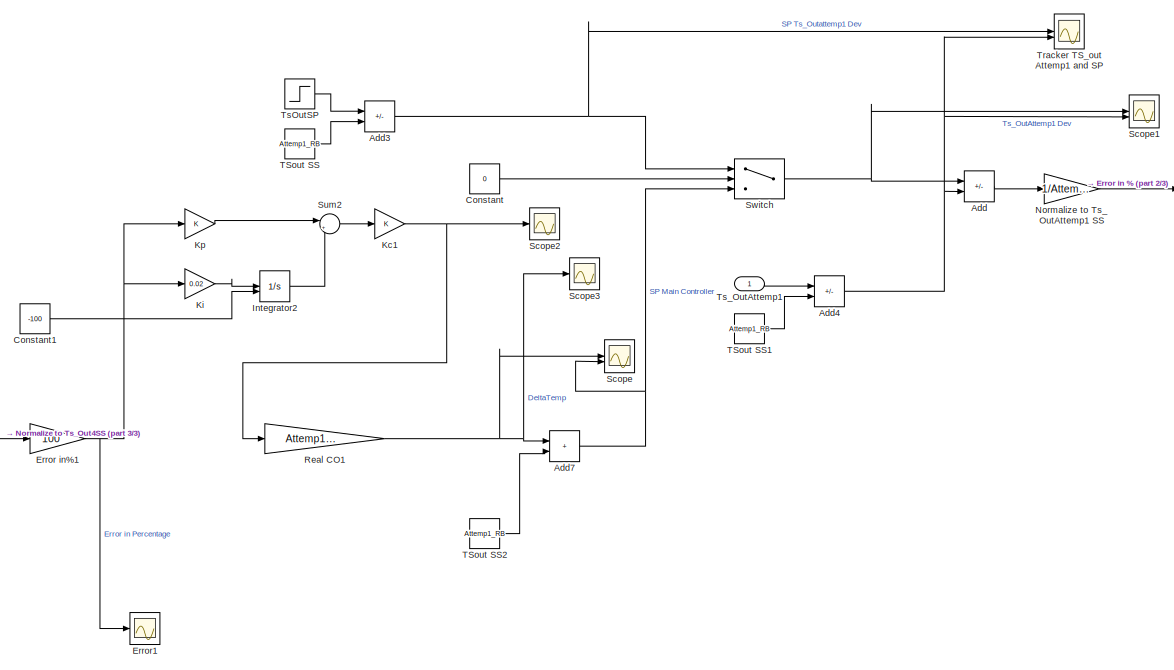
[diagram: Recovery Boiler and Superheater/RB Superheater/Subsystem1/Temperature Control2 - part 1/3, center side, full height]
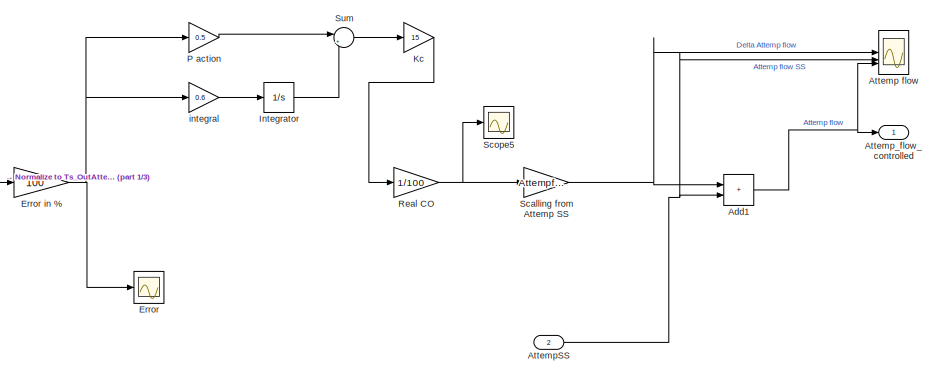
[diagram: Recovery Boiler and Superheater/RB Superheater/Subsystem1/Temperature Control2 - part 2/3, top right region]
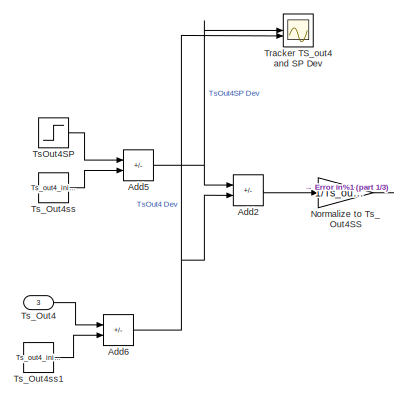
[diagram: Recovery Boiler and Superheater/RB Superheater/Subsystem1/Temperature Control2 - part 3/3, middle left region]
BLOCK [SubSystem] Recovery Boiler and Superheater/RB Superheater/Subsystem1/Temperature Control2
BLOCK [Sum] Recovery Boiler and Superheater/RB Superheater/Subsystem1/Temperature Control2/Add
  IconShape = rectangular
  Inputs = -+
BLOCK [Sum] Recovery Boiler and Superheater/RB Superheater/Subsystem1/Temperature Control2/Add1
  IconShape = rectangular
BLOCK [Sum] Recovery Boiler and Superheater/RB Superheater/Subsystem1/Temperature Control2/Add2
  IconShape = rectangular
  Inputs = +-
BLOCK [Sum] Recovery Boiler and Superheater/RB Superheater/Subsystem1/Temperature Control2/Add3
  IconShape = rectangular
  Inputs = +-
BLOCK [Sum] Recovery Boiler and Superheater/RB Superheater/Subsystem1/Temperature Control2/Add4
  IconShape = rectangular
  Inputs = +-
BLOCK [Sum] Recovery Boiler and Superheater/RB Superheater/Subsystem1/Temperature Control2/Add5
  IconShape = rectangular
  Inputs = +-
BLOCK [Sum] Recovery Boiler and Superheater/RB Superheater/Subsystem1/Temperature Control2/Add6
  IconShape = rectangular
  Inputs = +-
BLOCK [Sum] Recovery Boiler and Superheater/RB Superheater/Subsystem1/Temperature Control2/Add7
  IconShape = rectangular
BLOCK [Scope] Recovery Boiler and Superheater/RB Superheater/Subsystem1/Temperature Control2/Attemp flow
  Floating = off
  NumInputPorts = 3
  ScopeSpecificationString = Simulink.scopes.TimeScopeBlockCfg('CurrentConfiguration', extmgr.ConfigurationSet(extmgr.Configuration('Core','General UI',true,'FigureColor',[1 1 1]),extmgr.Configuration('Core','Source UI',true),extmgr.Configuration('Sources','WiredSimulink',true,'DataLoggingVariableName','Attemp1flowRB','DataLogging',true,'DataLoggingSaveFormat','StructureWithTime'),extmgr.Configuration('Visuals','Time Domain',...<+1924ch>
BLOCK [Inport] Recovery Boiler and Superheater/RB Superheater/Subsystem1/Temperature Control2/AttempSS
  Port = 2
BLOCK [Outport] Recovery Boiler and Superheater/RB Superheater/Subsystem1/Temperature Control2/Attemp_flow_controlled
BLOCK [Constant] Recovery Boiler and Superheater/RB Superheater/Subsystem1/Temperature Control2/Constant
  Value = 0
BLOCK [Constant] Recovery Boiler and Superheater/RB Superheater/Subsystem1/Temperature Control2/Constant1
  Value = -100
BLOCK [Scope] Recovery Boiler and Superheater/RB Superheater/Subsystem1/Temperature Control2/Error
  Floating = off
  NumInputPorts = 1
  ScopeSpecificationString = Simulink.scopes.TimeScopeBlockCfg('CurrentConfiguration', extmgr.ConfigurationSet(extmgr.Configuration('Core','General UI',true),extmgr.Configuration('Core','Source UI',true),extmgr.Configuration('Sources','WiredSimulink',true,'DataLoggingVariableName','ScopeData1'),extmgr.Configuration('Visuals','Time Domain',true,'SerializedDisplays',{struct('MinYLimReal','-26.54286','MaxYLimReal','225.90961','Y...<+1437ch>
BLOCK [Gain] Recovery Boiler and Superheater/RB Superheater/Subsystem1/Temperature Control2/Error in %
  Gain = 100
BLOCK [Gain] Recovery Boiler and Superheater/RB Superheater/Subsystem1/Temperature Control2/Error in%1
  Gain = 100
BLOCK [Scope] Recovery Boiler and Superheater/RB Superheater/Subsystem1/Temperature Control2/Error1
  Floating = off
  NumInputPorts = 1
  ScopeSpecificationString = Simulink.scopes.TimeScopeBlockCfg('CurrentConfiguration', extmgr.ConfigurationSet(extmgr.Configuration('Core','General UI',true),extmgr.Configuration('Core','Source UI',true),extmgr.Configuration('Sources','WiredSimulink',true,'DataLoggingVariableName','ScopeData3'),extmgr.Configuration('Visuals','Time Domain',true,'SerializedDisplays',{struct('MinYLimReal','-0.59121','MaxYLimReal','1.58489','YLab...<+1432ch>
BLOCK [Integrator] Recovery Boiler and Superheater/RB Superheater/Subsystem1/Temperature Control2/Integrator
BLOCK [Integrator] Recovery Boiler and Superheater/RB Superheater/Subsystem1/Temperature Control2/Integrator2
  InitialCondition = -100.1
  InitialConditionSource = external
BLOCK [Gain] Recovery Boiler and Superheater/RB Superheater/Subsystem1/Temperature Control2/Kc
  Gain = 15
BLOCK [Gain] Recovery Boiler and Superheater/RB Superheater/Subsystem1/Temperature Control2/Kc1
BLOCK [Gain] Recovery Boiler and Superheater/RB Superheater/Subsystem1/Temperature Control2/Ki
  Gain = 0.02
BLOCK [Gain] Recovery Boiler and Superheater/RB Superheater/Subsystem1/Temperature Control2/Kp
BLOCK [Gain] Recovery Boiler and Superheater/RB Superheater/Subsystem1/Temperature Control2/Normalize to Ts_Out4SS
  Gain = 1/Ts_out4_init_RB
BLOCK [Gain] Recovery Boiler and Superheater/RB Superheater/Subsystem1/Temperature Control2/Normalize to Ts_OutAttemp1 SS
  Gain = 1/Attemp1_RB
BLOCK [Gain] Recovery Boiler and Superheater/RB Superheater/Subsystem1/Temperature Control2/P action
  Gain = 0.5
BLOCK [Gain] Recovery Boiler and Superheater/RB Superheater/Subsystem1/Temperature Control2/Real CO
  Gain = 1/100
BLOCK [Gain] Recovery Boiler and Superheater/RB Superheater/Subsystem1/Temperature Control2/Real CO1
  Gain = Attemp1_RB/100
BLOCK [Gain] Recovery Boiler and Superheater/RB Superheater/Subsystem1/Temperature Control2/Scalling from Attemp SS
  Gain = Attempflow_SSRB
BLOCK [Scope] Recovery Boiler and Superheater/RB Superheater/Subsystem1/Temperature Control2/Scope
  Floating = off
  NumInputPorts = 2
  ScopeSpecificationString = Simulink.scopes.TimeScopeBlockCfg('CurrentConfiguration', extmgr.ConfigurationSet(extmgr.Configuration('Core','General UI',true),extmgr.Configuration('Core','Source UI',true),extmgr.Configuration('Sources','WiredSimulink',true,'DataLoggingVariableName','ScopeData1'),extmgr.Configuration('Visuals','Time Domain',true,'SerializedDisplays',{struct('MinYLimReal','-512.19005','MaxYLimReal','95.4913','YL...<+1472ch>
BLOCK [Scope] Recovery Boiler and Superheater/RB Superheater/Subsystem1/Temperature Control2/Scope1
  Floating = off
  NumInputPorts = 2
  ScopeSpecificationString = Simulink.scopes.TimeScopeBlockCfg('CurrentConfiguration', extmgr.ConfigurationSet(extmgr.Configuration('Core','General UI',true),extmgr.Configuration('Core','Source UI',true),extmgr.Configuration('Sources','WiredSimulink',true,'DataLoggingVariableName','ScopeData2'),extmgr.Configuration('Visuals','Time Domain',true,'SerializedDisplays',{struct('MinYLimReal','-36.6936','MaxYLimReal','290.95903','YL...<+1514ch>
BLOCK [Scope] Recovery Boiler and Superheater/RB Superheater/Subsystem1/Temperature Control2/Scope2
  Floating = off
  NumInputPorts = 1
  ScopeSpecificationString = Simulink.scopes.TimeScopeBlockCfg('CurrentConfiguration', extmgr.ConfigurationSet(extmgr.Configuration('Core','General UI',true),extmgr.Configuration('Core','Source UI',true),extmgr.Configuration('Sources','WiredSimulink',true,'DataLoggingVariableName','ScopeData1'),extmgr.Configuration('Visuals','Time Domain',true,'SerializedDisplays',{struct('MinYLimReal','-99.972','MaxYLimReal','-99.84881','YLa...<+1443ch>
BLOCK [Scope] Recovery Boiler and Superheater/RB Superheater/Subsystem1/Temperature Control2/Scope3
  Floating = off
  NumInputPorts = 1
  ScopeSpecificationString = Simulink.scopes.TimeScopeBlockCfg('CurrentConfiguration', extmgr.ConfigurationSet(extmgr.Configuration('Core','General UI',true),extmgr.Configuration('Core','Source UI',true),extmgr.Configuration('Sources','WiredSimulink',true,'DataLoggingVariableName','ScopeData2'),extmgr.Configuration('Visuals','Time Domain',true,'SerializedDisplays',{struct('MinYLimReal','-799.05905','MaxYLimReal','-255.76726',...<+1444ch>
BLOCK [Scope] Recovery Boiler and Superheater/RB Superheater/Subsystem1/Temperature Control2/Scope5
  Floating = off
  NumInputPorts = 1
  ScopeSpecificationString = Simulink.scopes.TimeScopeBlockCfg('CurrentConfiguration', extmgr.ConfigurationSet(extmgr.Configuration('Core','General UI',true),extmgr.Configuration('Core','Source UI',true),extmgr.Configuration('Sources','WiredSimulink',true,'DataLoggingVariableName','ScopeData3'),extmgr.Configuration('Visuals','Time Domain',true,'SerializedDisplays',{struct('MinYLimReal','-1.51032','MaxYLimReal','0.16781','YLab...<+1399ch>
BLOCK [Sum] Recovery Boiler and Superheater/RB Superheater/Subsystem1/Temperature Control2/Sum
  Inputs = |++
BLOCK [Sum] Recovery Boiler and Superheater/RB Superheater/Subsystem1/Temperature Control2/Sum2
  Inputs = |++
BLOCK [Switch] Recovery Boiler and Superheater/RB Superheater/Subsystem1/Temperature Control2/Switch
  Criteria = u2 > Threshold
  InputSameDT = off
  SaturateOnIntegerOverflow = off
BLOCK [Constant] Recovery Boiler and Superheater/RB Superheater/Subsystem1/Temperature Control2/TSout SS
  Value = Attemp1_RB
BLOCK [Constant] Recovery Boiler and Superheater/RB Superheater/Subsystem1/Temperature Control2/TSout SS1
  Value = Attemp1_RB
BLOCK [Constant] Recovery Boiler and Superheater/RB Superheater/Subsystem1/Temperature Control2/TSout SS2
  Value = Attemp1_RB
BLOCK [Scope] Recovery Boiler and Superheater/RB Superheater/Subsystem1/Temperature Control2/Tracker TS_out Attemp1 and SP
  Floating = off
  NumInputPorts = 2
  ScopeSpecificationString = Simulink.scopes.TimeScopeBlockCfg('CurrentConfiguration', extmgr.ConfigurationSet(extmgr.Configuration('Core','General UI',true),extmgr.Configuration('Core','Source UI',true),extmgr.Configuration('Sources','WiredSimulink',true,'DataLoggingVariableName','ScopeData2'),extmgr.Configuration('Visuals','Time Domain',true,'SerializedDisplays',{struct('MinYLimReal','-15.87274','MaxYLimReal','1.76364','YLa...<+1519ch>
BLOCK [Scope] Recovery Boiler and Superheater/RB Superheater/Subsystem1/Temperature Control2/Tracker TS_out4 and SP Dev
  Floating = off
  NumInputPorts = 2
  ScopeSpecificationString = Simulink.scopes.TimeScopeBlockCfg('CurrentConfiguration', extmgr.ConfigurationSet(extmgr.Configuration('Core','General UI',true,'FigureColor',[1 1 1]),extmgr.Configuration('Core','Source UI',true),extmgr.Configuration('Sources','WiredSimulink',true,'DataLoggingVariableName','TsOut4RBDev','DataLogging',true,'DataLoggingSaveFormat','StructureWithTime'),extmgr.Configuration('Visuals','Time Domain',tr...<+1782ch>
BLOCK [Step] Recovery Boiler and Superheater/RB Superheater/Subsystem1/Temperature Control2/TsOut4SP
  After = 416
  Before = Ts_out4_init_RB
  SampleTime = 0
  Time = 50000
BLOCK [Step] Recovery Boiler and Superheater/RB Superheater/Subsystem1/Temperature Control2/TsOutSP
  After = 340
  Before = Attemp1_RB
  SampleTime = 0
  Time = 50
BLOCK [Inport] Recovery Boiler and Superheater/RB Superheater/Subsystem1/Temperature Control2/Ts_Out4
  Port = 3
BLOCK [Constant] Recovery Boiler and Superheater/RB Superheater/Subsystem1/Temperature Control2/Ts_Out4ss
  Value = Ts_out4_init_RB
BLOCK [Constant] Recovery Boiler and Superheater/RB Superheater/Subsystem1/Temperature Control2/Ts_Out4ss1
  Value = Ts_out4_init_RB
BLOCK [Inport] Recovery Boiler and Superheater/RB Superheater/Subsystem1/Temperature Control2/Ts_OutAttemp1
  NameLocation = top
BLOCK [Gain] Recovery Boiler and Superheater/RB Superheater/Subsystem1/Temperature Control2/integral
  Gain = 0.6
BLOCK [Inport] Recovery Boiler and Superheater/RB Superheater/Subsystem1/Ts_Out2
  Port = 3
BLOCK [Outport] Recovery Boiler and Superheater/RB Superheater/Subsystem1/Ts_Out3
  Port = 2
BLOCK [Outport] Recovery Boiler and Superheater/RB Superheater/Subsystem1/Ts_Out4
  Port = 3
BLOCK [Outport] Recovery Boiler and Superheater/RB Superheater/Subsystem1/Ts_OutAttemp1
BLOCK [Inport] Recovery Boiler and Superheater/RB Superheater/Subsystem1/U-Value
  Port = 4
BLOCK [Step] Recovery Boiler and Superheater/RB Superheater/Subsystem1/attemp_flow3
  After = Attempflow_init
  Before = Attempflow_init
  NameLocation = top
  SampleTime = 0
  Time = 100
BLOCK [SubSystem] Recovery Boiler and Superheater/RB Superheater/Subsystem2
BLOCK [S-Function] Recovery Boiler and Superheater/RB Superheater/Subsystem2/Attemporator1
  EnableBusSupport = off
  FunctionName = RBattemporator2
  Parameters = Param4,Attemp2_RB
  SFcnIsStateOwnerBlock = off
  SFunctionDeploymentMode = off
BLOCK [Inport] Recovery Boiler and Superheater/RB Superheater/Subsystem2/Boiler Pressure1
BLOCK [Constant] Recovery Boiler and Superheater/RB Superheater/Subsystem2/Constant4
  Value = 850
BLOCK [Demux] Recovery Boiler and Superheater/RB Superheater/Subsystem2/Demux2
  Outputs = 2
BLOCK [Demux] Recovery Boiler and Superheater/RB Superheater/Subsystem2/Demux3
  Outputs = 2
BLOCK [Demux] Recovery Boiler and Superheater/RB Superheater/Subsystem2/Demux7
  Outputs = 1
BLOCK [Demux] Recovery Boiler and Superheater/RB Superheater/Subsystem2/Demux8
  Outputs = 2
BLOCK [Inport] Recovery Boiler and Superheater/RB Superheater/Subsystem2/FG_flow
  Port = 5
BLOCK [Mux] Recovery Boiler and Superheater/RB Superheater/Subsystem2/Mux10
  DisplayOption = bar
  Inputs = 5
BLOCK [Mux] Recovery Boiler and Superheater/RB Superheater/Subsystem2/Mux3
  DisplayOption = bar
BLOCK [Mux] Recovery Boiler and Superheater/RB Superheater/Subsystem2/Mux4
  DisplayOption = bar
BLOCK [Mux] Recovery Boiler and Superheater/RB Superheater/Subsystem2/Mux5
  DisplayOption = bar
  Inputs = 5
BLOCK [Mux] Recovery Boiler and Superheater/RB Superheater/Subsystem2/Mux9
  DisplayOption = bar
BLOCK [Scope] Recovery Boiler and Superheater/RB Superheater/Subsystem2/Scope10
  Floating = off
  NumInputPorts = 1
  ScopeSpecificationString = Simulink.scopes.TimeScopeBlockCfg('CurrentConfiguration', extmgr.ConfigurationSet(extmgr.Configuration('Core','General UI',true),extmgr.Configuration('Core','Source UI',true),extmgr.Configuration('Sources','WiredSimulink',true,'DataLoggingVariableName','ScopeData1'),extmgr.Configuration('Visuals','Time Domain',true,'SerializedDisplays',{struct('MinYLimReal','4119.49766','MaxYLimReal','4440.18132',...<+1412ch>
BLOCK [Scope] Recovery Boiler and Superheater/RB Superheater/Subsystem2/Scope7
  Floating = off
  NumInputPorts = 1
  ScopeSpecificationString = Simulink.scopes.TimeScopeBlockCfg('CurrentConfiguration', extmgr.ConfigurationSet(extmgr.Configuration('Core','General UI',true),extmgr.Configuration('Core','Source UI',true),extmgr.Configuration('Sources','WiredSimulink',true,'DataLoggingVariableName','ScopeData2'),extmgr.Configuration('Visuals','Time Domain',true,'SerializedDisplays',{struct('MinYLimReal','594.00457','MaxYLimReal','603.12927','Y...<+1459ch>
BLOCK [Scope] Recovery Boiler and Superheater/RB Superheater/Subsystem2/Scope8
  Floating = off
  NumInputPorts = 1
  ScopeSpecificationString = Simulink.scopes.TimeScopeBlockCfg('CurrentConfiguration', extmgr.ConfigurationSet(extmgr.Configuration('Core','General UI',true),extmgr.Configuration('Core','Source UI',true),extmgr.Configuration('Sources','WiredSimulink',true,'DataLoggingVariableName','ScopeData3'),extmgr.Configuration('Visuals','Time Domain',true,'SerializedDisplays',{struct('MinYLimReal','644.74483','MaxYLimReal','678.6164','YL...<+1423ch>
BLOCK [Scope] Recovery Boiler and Superheater/RB Superheater/Subsystem2/Scope9
  Floating = off
  NumInputPorts = 1
  ScopeSpecificationString = Simulink.scopes.TimeScopeBlockCfg('CurrentConfiguration', extmgr.ConfigurationSet(extmgr.Configuration('Core','General UI',true),extmgr.Configuration('Core','Source UI',true),extmgr.Configuration('Sources','WiredSimulink',true,'DataLoggingVariableName','ScopeData4'),extmgr.Configuration('Visuals','Time Domain',true,'SerializedDisplays',{struct('MinYLimReal','4432.40573','MaxYLimReal','5806.25475',...<+1413ch>
BLOCK [Outport] Recovery Boiler and Superheater/RB Superheater/Subsystem2/SteamflowOutSH
  Port = 6
BLOCK [Inport] Recovery Boiler and Superheater/RB Superheater/Subsystem2/Steamflowboiler
  Port = 2
BLOCK [S-Function] Recovery Boiler and Superheater/RB Superheater/Subsystem2/Superheater3_Steam
  EnableBusSupport = off
  FunctionName = RBsuperheater5
  Parameters = Param4,Ts_out5_init_RB
  SFcnIsStateOwnerBlock = off
  SFunctionDeploymentMode = off
BLOCK [S-Function] Recovery Boiler and Superheater/RB Superheater/Subsystem2/Superheater4_Steam
  EnableBusSupport = off
  FunctionName = RBsuperheater6
  Parameters = Param4,Ts_out6_init_RB
  SFcnIsStateOwnerBlock = off
  SFunctionDeploymentMode = off
BLOCK [S-Function] Recovery Boiler and Superheater/RB Superheater/Subsystem2/Superheater5_FG
  EnableBusSupport = off
  FunctionName = RBsuperheater5_FGDyn
  Parameters = Param6,TFG_out5_initRB
  SFcnIsStateOwnerBlock = off
  SFunctionDeploymentMode = off
BLOCK [S-Function] Recovery Boiler and Superheater/RB Superheater/Subsystem2/Superheater6_FG
  EnableBusSupport = off
  FunctionName = RBsuperheater6_FGDyn
  Parameters = Param6,TFG_out6_initRB
  SFcnIsStateOwnerBlock = off
  SFunctionDeploymentMode = off
BLOCK [Outport] Recovery Boiler and Superheater/RB Superheater/Subsystem2/TFG_Out5
  Port = 5
BLOCK [Outport] Recovery Boiler and Superheater/RB Superheater/Subsystem2/TFG_Out6
  Port = 4
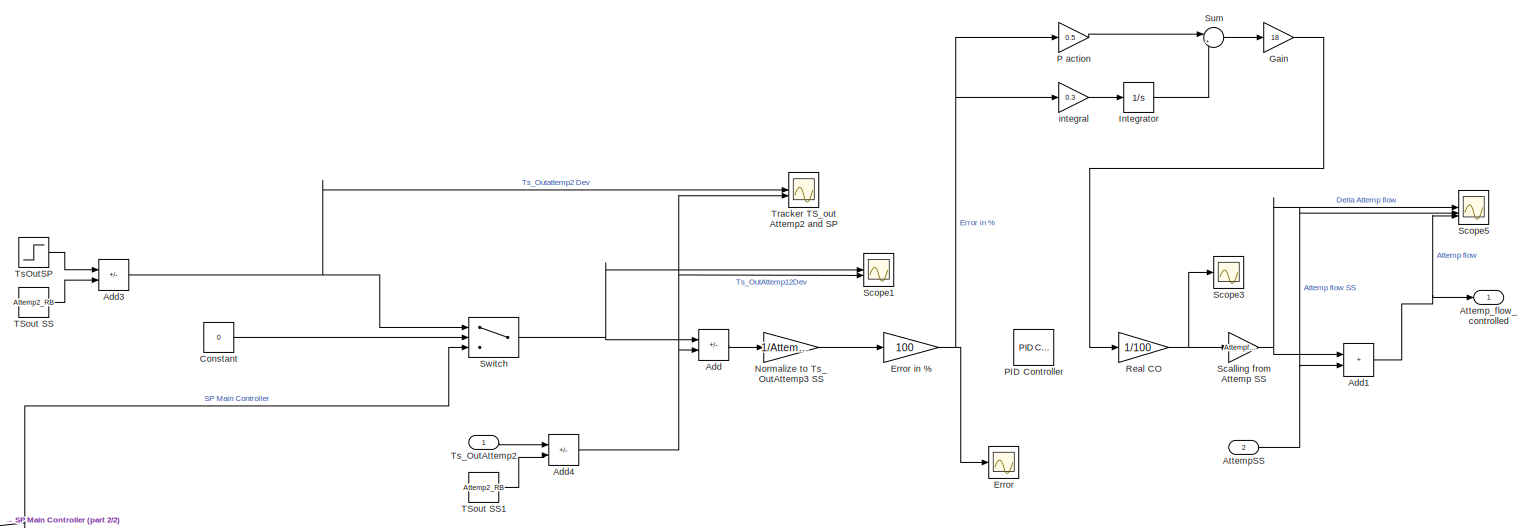
[diagram: Recovery Boiler and Superheater/RB Superheater/Subsystem2/Temperature Control - part 1/2, middle right region]
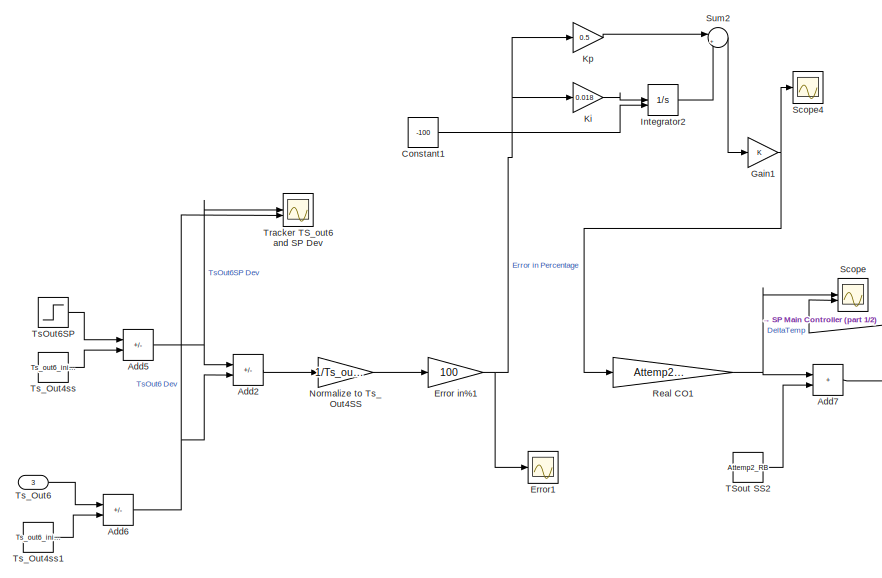
[diagram: Recovery Boiler and Superheater/RB Superheater/Subsystem2/Temperature Control - part 2/2, middle left region]
BLOCK [SubSystem] Recovery Boiler and Superheater/RB Superheater/Subsystem2/Temperature Control
BLOCK [Sum] Recovery Boiler and Superheater/RB Superheater/Subsystem2/Temperature Control/Add
  IconShape = rectangular
  Inputs = -+
BLOCK [Sum] Recovery Boiler and Superheater/RB Superheater/Subsystem2/Temperature Control/Add1
  IconShape = rectangular
BLOCK [Sum] Recovery Boiler and Superheater/RB Superheater/Subsystem2/Temperature Control/Add2
  IconShape = rectangular
  Inputs = +-
BLOCK [Sum] Recovery Boiler and Superheater/RB Superheater/Subsystem2/Temperature Control/Add3
  IconShape = rectangular
  Inputs = +-
BLOCK [Sum] Recovery Boiler and Superheater/RB Superheater/Subsystem2/Temperature Control/Add4
  IconShape = rectangular
  Inputs = +-
BLOCK [Sum] Recovery Boiler and Superheater/RB Superheater/Subsystem2/Temperature Control/Add5
  IconShape = rectangular
  Inputs = +-
BLOCK [Sum] Recovery Boiler and Superheater/RB Superheater/Subsystem2/Temperature Control/Add6
  IconShape = rectangular
  Inputs = +-
BLOCK [Sum] Recovery Boiler and Superheater/RB Superheater/Subsystem2/Temperature Control/Add7
  IconShape = rectangular
BLOCK [Inport] Recovery Boiler and Superheater/RB Superheater/Subsystem2/Temperature Control/AttempSS
  Port = 2
BLOCK [Outport] Recovery Boiler and Superheater/RB Superheater/Subsystem2/Temperature Control/Attemp_flow_controlled
BLOCK [Constant] Recovery Boiler and Superheater/RB Superheater/Subsystem2/Temperature Control/Constant
  Value = 0
BLOCK [Constant] Recovery Boiler and Superheater/RB Superheater/Subsystem2/Temperature Control/Constant1
  Value = -100
BLOCK [Scope] Recovery Boiler and Superheater/RB Superheater/Subsystem2/Temperature Control/Error
  Floating = off
  NumInputPorts = 1
  ScopeSpecificationString = Simulink.scopes.TimeScopeBlockCfg('CurrentConfiguration', extmgr.ConfigurationSet(extmgr.Configuration('Core','General UI',true),extmgr.Configuration('Core','Source UI',true),extmgr.Configuration('Sources','WiredSimulink',true,'DataLoggingVariableName','ScopeData2'),extmgr.Configuration('Visuals','Time Domain',true,'SerializedDisplays',{struct('MinYLimReal','-0.0236','MaxYLimReal','0.04228','YLabe...<+1444ch>
BLOCK [Gain] Recovery Boiler and Superheater/RB Superheater/Subsystem2/Temperature Control/Error in %
  Gain = 100
BLOCK [Gain] Recovery Boiler and Superheater/RB Superheater/Subsystem2/Temperature Control/Error in%1
  Gain = 100
BLOCK [Scope] Recovery Boiler and Superheater/RB Superheater/Subsystem2/Temperature Control/Error1
  Floating = off
  NumInputPorts = 1
  ScopeSpecificationString = Simulink.scopes.TimeScopeBlockCfg('CurrentConfiguration', extmgr.ConfigurationSet(extmgr.Configuration('Core','General UI',true),extmgr.Configuration('Core','Source UI',true),extmgr.Configuration('Sources','WiredSimulink',true,'DataLoggingVariableName','ScopeData3'),extmgr.Configuration('Visuals','Time Domain',true,'SerializedDisplays',{struct('MinYLimReal','-0.07146','MaxYLimReal','0.15101','YLab...<+1451ch>
BLOCK [Gain] Recovery Boiler and Superheater/RB Superheater/Subsystem2/Temperature Control/Gain
  Gain = 18
BLOCK [Gain] Recovery Boiler and Superheater/RB Superheater/Subsystem2/Temperature Control/Gain1
BLOCK [Integrator] Recovery Boiler and Superheater/RB Superheater/Subsystem2/Temperature Control/Integrator
BLOCK [Integrator] Recovery Boiler and Superheater/RB Superheater/Subsystem2/Temperature Control/Integrator2
  InitialCondition = -100.1
  InitialConditionSource = external
BLOCK [Gain] Recovery Boiler and Superheater/RB Superheater/Subsystem2/Temperature Control/Ki
  Gain = 0.018
BLOCK [Gain] Recovery Boiler and Superheater/RB Superheater/Subsystem2/Temperature Control/Kp
  Gain = 0.5
BLOCK [Gain] Recovery Boiler and Superheater/RB Superheater/Subsystem2/Temperature Control/Normalize to Ts_Out4SS
  Gain = 1/Ts_out6_init_RB
BLOCK [Gain] Recovery Boiler and Superheater/RB Superheater/Subsystem2/Temperature Control/Normalize to Ts_OutAttemp3 SS
  Gain = 1/Attemp2_RB
BLOCK [Gain] Recovery Boiler and Superheater/RB Superheater/Subsystem2/Temperature Control/P action
  Gain = 0.5
BLOCK [Reference] Recovery Boiler and Superheater/RB Superheater/Subsystem2/Temperature Control/PID Controller  REF=slpidlib/PID Controller
  SourceBlock = slpidlib/PID Controller
  SourceType = PID 1dof
BLOCK [Gain] Recovery Boiler and Superheater/RB Superheater/Subsystem2/Temperature Control/Real CO
  Gain = 1/100
BLOCK [Gain] Recovery Boiler and Superheater/RB Superheater/Subsystem2/Temperature Control/Real CO1
  Gain = Attemp2_RB/100
BLOCK [Gain] Recovery Boiler and Superheater/RB Superheater/Subsystem2/Temperature Control/Scalling from Attemp SS
  Gain = Attempflow_SSRB
BLOCK [Scope] Recovery Boiler and Superheater/RB Superheater/Subsystem2/Temperature Control/Scope
  Floating = off
  NumInputPorts = 2
  ScopeSpecificationString = Simulink.scopes.TimeScopeBlockCfg('CurrentConfiguration', extmgr.ConfigurationSet(extmgr.Configuration('Core','General UI',true),extmgr.Configuration('Core','Source UI',true),extmgr.Configuration('Sources','WiredSimulink',true,'DataLoggingVariableName','ScopeData1'),extmgr.Configuration('Visuals','Time Domain',true,'SerializedDisplays',{struct('MinYLimReal','-516.23645','MaxYLimReal','57.35977','Y...<+1481ch>
BLOCK [Scope] Recovery Boiler and Superheater/RB Superheater/Subsystem2/Temperature Control/Scope1
  Floating = off
  NumInputPorts = 2
  ScopeSpecificationString = Simulink.scopes.TimeScopeBlockCfg('CurrentConfiguration', extmgr.ConfigurationSet(extmgr.Configuration('Core','General UI',true),extmgr.Configuration('Core','Source UI',true),extmgr.Configuration('Sources','WiredSimulink',true,'DataLoggingVariableName','ScopeData5'),extmgr.Configuration('Visuals','Time Domain',true,'SerializedDisplays',{struct('MinYLimReal','-53.96417','MaxYLimReal','5.9965','YLab...<+1503ch>
BLOCK [Scope] Recovery Boiler and Superheater/RB Superheater/Subsystem2/Temperature Control/Scope3
  Floating = off
  NumInputPorts = 1
  ScopeSpecificationString = Simulink.scopes.TimeScopeBlockCfg('CurrentConfiguration', extmgr.ConfigurationSet(extmgr.Configuration('Core','General UI',true),extmgr.Configuration('Core','Source UI',true),extmgr.Configuration('Sources','WiredSimulink',true,'DataLoggingVariableName','ScopeData4'),extmgr.Configuration('Visuals','Time Domain',true,'SerializedDisplays',{struct('MinYLimReal','-0.10009','MaxYLimReal','0.10187','YLab...<+1391ch>
BLOCK [Scope] Recovery Boiler and Superheater/RB Superheater/Subsystem2/Temperature Control/Scope4
  Floating = off
  NumInputPorts = 1
  ScopeSpecificationString = Simulink.scopes.TimeScopeBlockCfg('CurrentConfiguration', extmgr.ConfigurationSet(extmgr.Configuration('Core','General UI',true),extmgr.Configuration('Core','Source UI',true),extmgr.Configuration('Sources','WiredSimulink',true,'DataLoggingVariableName','ScopeData3'),extmgr.Configuration('Visuals','Time Domain',true,'SerializedDisplays',{struct('MinYLimReal','-99.972','MaxYLimReal','-99.84881','YLa...<+1443ch>
BLOCK [Scope] Recovery Boiler and Superheater/RB Superheater/Subsystem2/Temperature Control/Scope5
  Floating = off
  NumInputPorts = 3
  ScopeSpecificationString = Simulink.scopes.TimeScopeBlockCfg('CurrentConfiguration', extmgr.ConfigurationSet(extmgr.Configuration('Core','General UI',true,'FigureColor',[1 1 1]),extmgr.Configuration('Core','Source UI',true),extmgr.Configuration('Sources','WiredSimulink',true,'DataLoggingVariableName','Attemp2flowRB','DataLogging',true,'DataLoggingSaveFormat','StructureWithTime'),extmgr.Configuration('Visuals','Time Domain',...<+1812ch>
BLOCK [Sum] Recovery Boiler and Superheater/RB Superheater/Subsystem2/Temperature Control/Sum
  Inputs = |++
BLOCK [Sum] Recovery Boiler and Superheater/RB Superheater/Subsystem2/Temperature Control/Sum2
  Inputs = |++
BLOCK [Switch] Recovery Boiler and Superheater/RB Superheater/Subsystem2/Temperature Control/Switch
  Criteria = u2 > Threshold
  InputSameDT = off
  SaturateOnIntegerOverflow = off
BLOCK [Constant] Recovery Boiler and Superheater/RB Superheater/Subsystem2/Temperature Control/TSout SS
  Value = Attemp2_RB
BLOCK [Constant] Recovery Boiler and Superheater/RB Superheater/Subsystem2/Temperature Control/TSout SS1
  Value = Attemp2_RB
BLOCK [Constant] Recovery Boiler and Superheater/RB Superheater/Subsystem2/Temperature Control/TSout SS2
  Value = Attemp2_RB
BLOCK [Scope] Recovery Boiler and Superheater/RB Superheater/Subsystem2/Temperature Control/Tracker TS_out Attemp2 and SP
  Floating = off
  NumInputPorts = 2
  ScopeSpecificationString = Simulink.scopes.TimeScopeBlockCfg('CurrentConfiguration', extmgr.ConfigurationSet(extmgr.Configuration('Core','General UI',true),extmgr.Configuration('Core','Source UI',true),extmgr.Configuration('Sources','WiredSimulink',true,'DataLoggingVariableName','ScopeData6'),extmgr.Configuration('Visuals','Time Domain',true,'SerializedDisplays',{struct('MinYLimReal','-8.60277','MaxYLimReal','0.95638','YLab...<+1512ch>
BLOCK [Scope] Recovery Boiler and Superheater/RB Superheater/Subsystem2/Temperature Control/Tracker TS_out6 and SP Dev
  Floating = off
  NumInputPorts = 2
  ScopeSpecificationString = Simulink.scopes.TimeScopeBlockCfg('CurrentConfiguration', extmgr.ConfigurationSet(extmgr.Configuration('Core','General UI',true,'FigureColor',[1 1 1]),extmgr.Configuration('Core','Source UI',true),extmgr.Configuration('Sources','WiredSimulink',true,'DataLoggingVariableName','TsOut6RBDev','DataLogging',true,'DataLoggingSaveFormat','StructureWithTime'),extmgr.Configuration('Visuals','Time Domain',tr...<+1760ch>
BLOCK [Step] Recovery Boiler and Superheater/RB Superheater/Subsystem2/Temperature Control/TsOut6SP
  After = 540
  Before = Ts_out6_init_RB
  SampleTime = 0
  Time = 50000
BLOCK [Step] Recovery Boiler and Superheater/RB Superheater/Subsystem2/Temperature Control/TsOutSP
  After = 460
  Before = Attemp2_RB
  SampleTime = 0
  Time = 50
BLOCK [Constant] Recovery Boiler and Superheater/RB Superheater/Subsystem2/Temperature Control/Ts_Out4ss
  Value = Ts_out6_init_RB
BLOCK [Constant] Recovery Boiler and Superheater/RB Superheater/Subsystem2/Temperature Control/Ts_Out4ss1
  Value = Ts_out6_init_RB
BLOCK [Inport] Recovery Boiler and Superheater/RB Superheater/Subsystem2/Temperature Control/Ts_Out6
  Port = 3
BLOCK [Inport] Recovery Boiler and Superheater/RB Superheater/Subsystem2/Temperature Control/Ts_OutAttemp2
  NameLocation = top
BLOCK [Gain] Recovery Boiler and Superheater/RB Superheater/Subsystem2/Temperature Control/integral
  Gain = 0.3
BLOCK [Inport] Recovery Boiler and Superheater/RB Superheater/Subsystem2/Ts_Out4
  Port = 4
BLOCK [Outport] Recovery Boiler and Superheater/RB Superheater/Subsystem2/Ts_Out5
  Port = 2
BLOCK [Outport] Recovery Boiler and Superheater/RB Superheater/Subsystem2/Ts_Out6
  Port = 3
BLOCK [Outport] Recovery Boiler and Superheater/RB Superheater/Subsystem2/Ts_OutAttemp2
BLOCK [Inport] Recovery Boiler and Superheater/RB Superheater/Subsystem2/U-Value1
  Port = 3
BLOCK [Step] Recovery Boiler and Superheater/RB Superheater/Subsystem2/attemp_flow1
  After = Attempflow_init
  Before = Attempflow_init
  NameLocation = top
  SampleTime = 0
  Time = 100
BLOCK [Outport] Recovery Boiler and Superheater/RB Superheater/TFG_Out1
  Port = 10
BLOCK [Outport] Recovery Boiler and Superheater/RB Superheater/TFG_Out2
  Port = 11
BLOCK [Outport] Recovery Boiler and Superheater/RB Superheater/TFG_Out3
  Port = 12
BLOCK [Outport] Recovery Boiler and Superheater/RB Superheater/TFG_Out4
  Port = 13
BLOCK [Outport] Recovery Boiler and Superheater/RB Superheater/TFG_Out5
  Port = 14
BLOCK [Outport] Recovery Boiler and Superheater/RB Superheater/TFG_Out6
  Port = 15
BLOCK [Outport] Recovery Boiler and Superheater/RB Superheater/Ts_Out2
  Port = 2
BLOCK [Outport] Recovery Boiler and Superheater/RB Superheater/Ts_Out3
  Port = 4
BLOCK [Outport] Recovery Boiler and Superheater/RB Superheater/Ts_Out4
  Port = 5
BLOCK [Outport] Recovery Boiler and Superheater/RB Superheater/Ts_Out5
  Port = 7
BLOCK [Outport] Recovery Boiler and Superheater/RB Superheater/Ts_Out6
  Port = 8
BLOCK [Outport] Recovery Boiler and Superheater/RB Superheater/Ts_OutAttemp1
  Port = 3
BLOCK [Outport] Recovery Boiler and Superheater/RB Superheater/Ts_OutAttemp2
  Port = 6
BLOCK [Outport] Recovery Boiler and Superheater/RB Superheater/Ts_out1
BLOCK [Inport] Recovery Boiler and Superheater/RB Superheater/U-Value
  Port = 3
BLOCK [SubSystem] Recovery Boiler and Superheater/Recovery Boiler
BLOCK [SubSystem] Recovery Boiler and Superheater/Recovery Boiler/3 Element Level Control System
BLOCK [Sum] Recovery Boiler and Superheater/Recovery Boiler/3 Element Level Control System/Add1
  IconShape = rectangular
  Inputs = +-
BLOCK [Constant] Recovery Boiler and Superheater/Recovery Boiler/3 Element Level Control System/Bias
  Value = 50
BLOCK [Outport] Recovery Boiler and Superheater/Recovery Boiler/3 Element Level Control System/Delta qf
BLOCK [SubSystem] Recovery Boiler and Superheater/Recovery Boiler/3 Element Level Control System/FB Level Control
BLOCK [Gain] Recovery Boiler and Superheater/Recovery Boiler/3 Element Level Control System/FB Level Control/1//Ti1
  Gain = 1/11.5/60
  OutDataTypeStr = Inherit: Same as input
  ParamDataTypeStr = Inherit: Same as input
  SaturateOnIntegerOverflow = on
BLOCK [Constant] Recovery Boiler and Superheater/Recovery Boiler/3 Element Level Control System/FB Level Control/Bias
  Value = 50
BLOCK [Inport] Recovery Boiler and Superheater/Recovery Boiler/3 Element Level Control System/FB Level Control/In1
BLOCK [Inport] Recovery Boiler and Superheater/Recovery Boiler/3 Element Level Control System/FB Level Control/In2
  Port = 2
BLOCK [Integrator] Recovery Boiler and Superheater/Recovery Boiler/3 Element Level Control System/FB Level Control/Integrator1
BLOCK [Gain] Recovery Boiler and Superheater/Recovery Boiler/3 Element Level Control System/FB Level Control/Kc1
  Gain = 0.64
  OutDataTypeStr = Inherit: Same as input
  ParamDataTypeStr = Inherit: Same as input
  SaturateOnIntegerOverflow = on
BLOCK [Outport] Recovery Boiler and Superheater/Recovery Boiler/3 Element Level Control System/FB Level Control/Out1
BLOCK [Gain] Recovery Boiler and Superheater/Recovery Boiler/3 Element Level Control System/FB Level Control/P action1
  OutDataTypeStr = Inherit: Same as input
  ParamDataTypeStr = Inherit: Same as input
  SaturateOnIntegerOverflow = on
BLOCK [Sum] Recovery Boiler and Superheater/Recovery Boiler/3 Element Level Control System/FB Level Control/Sum1
  IconShape = rectangular
  InputSameDT = on
  Inputs = |++
  OutDataTypeStr = Inherit: Same as first input
  SaturateOnIntegerOverflow = on
BLOCK [Sum] Recovery Boiler and Superheater/Recovery Boiler/3 Element Level Control System/FB Level Control/Sum2
  IconShape = rectangular
  InputSameDT = on
  Inputs = |++
  OutDataTypeStr = Inherit: Same as first input
  SaturateOnIntegerOverflow = on
BLOCK [Sum] Recovery Boiler and Superheater/Recovery Boiler/3 Element Level Control System/FB Level Control/Sum4
  IconShape = rectangular
  InputSameDT = on
  Inputs = |+-
  NameLocation = top
  OutDataTypeStr = Inherit: Same as first input
  SaturateOnIntegerOverflow = on
BLOCK [Gain] Recovery Boiler and Superheater/Recovery Boiler/3 Element Level Control System/FB Level Control/error as % of Range
  Gain = 100/25
  OutDataTypeStr = Inherit: Same as input
  ParamDataTypeStr = Inherit: Same as input
  SaturateOnIntegerOverflow = on
BLOCK [Gain] Recovery Boiler and Superheater/Recovery Boiler/3 Element Level Control System/FF Gain
  OutDataTypeStr = Inherit: Same as input
  ParamDataTypeStr = Inherit: Same as input
  SaturateOnIntegerOverflow = on
BLOCK [Inport] Recovery Boiler and Superheater/Recovery Boiler/3 Element Level Control System/In1
BLOCK [Inport] Recovery Boiler and Superheater/Recovery Boiler/3 Element Level Control System/In2
  Port = 2
BLOCK [Constant] Recovery Boiler and Superheater/Recovery Boiler/3 Element Level Control System/Level Setpoint
  Value = 2
BLOCK [Step] Recovery Boiler and Superheater/Recovery Boiler/3 Element Level Control System/Nominal
  After = qfsteadystate
  Before = qfsteadystate
  SampleTime = 0
  Time = 10
BLOCK [Gain] Recovery Boiler and Superheater/Recovery Boiler/3 Element Level Control System/Real Output from CO
  Gain = 10
  OutDataTypeStr = Inherit: Same as input
  ParamDataTypeStr = Inherit: Same as input
  SaturateOnIntegerOverflow = on
BLOCK [Sum] Recovery Boiler and Superheater/Recovery Boiler/3 Element Level Control System/Sum3
  IconShape = rectangular
  InputSameDT = on
  Inputs = |++-
  OutDataTypeStr = Inherit: Same as first input
  SaturateOnIntegerOverflow = on
BLOCK [Gain] Recovery Boiler and Superheater/Recovery Boiler/3 Element Level Control System/conversion
  Gain = 1000/2.2/3600
  OutDataTypeStr = Inherit: Same as input
  ParamDataTypeStr = Inherit: Same as input
  SaturateOnIntegerOverflow = on
BLOCK [Gain] Recovery Boiler and Superheater/Recovery Boiler/3 Element Level Control System/conversion1
  Gain = 1/(1000/2.2/3600)
  OutDataTypeStr = Inherit: Same as input
  ParamDataTypeStr = Inherit: Same as input
  SaturateOnIntegerOverflow = on
BLOCK [Gain] Recovery Boiler and Superheater/Recovery Boiler/3 Element Level Control System/scaling
  Gain = 1/10
  OutDataTypeStr = Inherit: Same as input
  ParamDataTypeStr = Inherit: Same as input
  SaturateOnIntegerOverflow = on
BLOCK [Step] Recovery Boiler and Superheater/Recovery Boiler/Firing Rate Change (% of nominal)
  After = Qsteadystate*0
  Before = Qsteadystate*0
  SampleTime = 0
BLOCK [Scope] Recovery Boiler and Superheater/Recovery Boiler/RB Pressure (Psi)
  Floating = off
  NumInputPorts = 1
  ScopeSpecificationString = Simulink.scopes.TimeScopeBlockCfg('CurrentConfiguration', extmgr.ConfigurationSet(extmgr.Configuration('Core','General UI',true,'FigureColor',[1 1 1]),extmgr.Configuration('Core','Source UI',true),extmgr.Configuration('Sources','WiredSimulink',true,'DataLoggingVariableName','RBPressure','DataLogging',true,'DataLoggingSaveFormat','StructureWithTime'),extmgr.Configuration('Visuals','Time Domain',tru...<+1623ch>
BLOCK [Scope] Recovery Boiler and Superheater/Recovery Boiler/RB feed water (Mlb//hr)
  Floating = off
  NumInputPorts = 1
  ScopeSpecificationString = Simulink.scopes.TimeScopeBlockCfg('CurrentConfiguration', extmgr.ConfigurationSet(extmgr.Configuration('Core','General UI',true,'FigureColor',[1 1 1]),extmgr.Configuration('Core','Source UI',true),extmgr.Configuration('Sources','WiredSimulink',true,'DataLogging',true,'DataLoggingVariableName','RBBFW','DataLoggingSaveFormat','StructureWithTime','DataLoggingDecimation','1','DataLoggingDecimateData',...<+1861ch>
BLOCK [Scope] Recovery Boiler and Superheater/Recovery Boiler/RB level (in)
  Floating = off
  NumInputPorts = 1
  ScopeSpecificationString = Simulink.scopes.TimeScopeBlockCfg('CurrentConfiguration', extmgr.ConfigurationSet(extmgr.Configuration('Core','General UI',true,'FigureColor',[1 1 1]),extmgr.Configuration('Core','Source UI',true),extmgr.Configuration('Sources','WiredSimulink',true,'DataLogging',true,'DataLoggingVariableName','y2pi','DataLoggingSaveFormat','Array','DataLoggingDecimation','1','DataLoggingDecimateData',true),extmgr....<+1814ch>
BLOCK [Outport] Recovery Boiler and Superheater/Recovery Boiler/RB_P
  Port = 2
BLOCK [SubSystem] Recovery Boiler and Superheater/Recovery Boiler/Recovery Boiler
BLOCK [Bias] Recovery Boiler and Superheater/Recovery Boiler/Recovery Boiler/Bias
  Bias = -0.64
  SaturateOnIntegerOverflow = off
BLOCK [Inport] Recovery Boiler and Superheater/Recovery Boiler/Recovery Boiler/Delta Q
  Port = 2
BLOCK [Inport] Recovery Boiler and Superheater/Recovery Boiler/Recovery Boiler/Delta qf
BLOCK [TransferFcn] Recovery Boiler and Superheater/Recovery Boiler/Recovery Boiler/FireSide Dyn.
  Denominator = [5 1]
BLOCK [Outport] Recovery Boiler and Superheater/Recovery Boiler/Recovery Boiler/RB p
  Port = 3
BLOCK [SubSystem] Recovery Boiler and Superheater/Recovery Boiler/Recovery Boiler/Recovery Boiler
BLOCK [Sum] Recovery Boiler and Superheater/Recovery Boiler/Recovery Boiler/Recovery Boiler/Add
  IconShape = rectangular
BLOCK [Sum] Recovery Boiler and Superheater/Recovery Boiler/Recovery Boiler/Recovery Boiler/Add1
  IconShape = rectangular
BLOCK [Inport] Recovery Boiler and Superheater/Recovery Boiler/Recovery Boiler/Recovery Boiler/In2
BLOCK [Inport] Recovery Boiler and Superheater/Recovery Boiler/Recovery Boiler/Recovery Boiler/In3
  Port = 2
BLOCK [Outport] Recovery Boiler and Superheater/Recovery Boiler/Recovery Boiler/Recovery Boiler/Out1
  Port = 2
BLOCK [Outport] Recovery Boiler and Superheater/Recovery Boiler/Recovery Boiler/Recovery Boiler/Out2
BLOCK [Outport] Recovery Boiler and Superheater/Recovery Boiler/Recovery Boiler/Recovery Boiler/Out3
  Port = 3
BLOCK [Outport] Recovery Boiler and Superheater/Recovery Boiler/Recovery Boiler/Recovery Boiler/Out4
  Port = 4
BLOCK [Scope] Recovery Boiler and Superheater/Recovery Boiler/Recovery Boiler/Recovery Boiler/Q (heat input in Watts)
  Floating = off
  NumInputPorts = 1
  ScopeSpecificationString = C++SS(StrPVP('Location','[451, 70, 956, 449]'),StrPVP('Open','off'),MxPVP('AxesTitles',54,'struct(''axes1'',''%<SignalLabel>'')'),StrPVP('TimeRange','200'),StrPVP('YMin','55'),StrPVP('YMax','58'),StrPVP('SaveName','ScopeData31'),StrPVP('DataFormat','StructureWithTime'),StrPVP('LimitDataPoints','off'),StrPVP('Decimation','1'),StrPVP('BlockParamSampleInput','off'))
BLOCK [Step] Recovery Boiler and Superheater/Recovery Boiler/Recovery Boiler/Recovery Boiler/Q Nominal (in Watts)
  After = Qsteadystate
  Before = Qsteadystate
  SampleTime = 0
  Time = 50
BLOCK [SubSystem] Recovery Boiler and Superheater/Recovery Boiler/Recovery Boiler/Recovery Boiler/Recovery Boiler
BLOCK [Demux] Recovery Boiler and Superheater/Recovery Boiler/Recovery Boiler/Recovery Boiler/Recovery Boiler/Demux
  DisplayOption = none
  Outputs = 11
BLOCK [Inport] Recovery Boiler and Superheater/Recovery Boiler/Recovery Boiler/Recovery Boiler/Recovery Boiler/In1
BLOCK [Inport] Recovery Boiler and Superheater/Recovery Boiler/Recovery Boiler/Recovery Boiler/Recovery Boiler/In3
  Port = 2
BLOCK [Inport] Recovery Boiler and Superheater/Recovery Boiler/Recovery Boiler/Recovery Boiler/Recovery Boiler/In4
  Port = 3
BLOCK [Mux] Recovery Boiler and Superheater/Recovery Boiler/Recovery Boiler/Recovery Boiler/Recovery Boiler/Mux
  DisplayOption = bar
  Inputs = 3
BLOCK [Outport] Recovery Boiler and Superheater/Recovery Boiler/Recovery Boiler/Recovery Boiler/Recovery Boiler/Out1
BLOCK [Outport] Recovery Boiler and Superheater/Recovery Boiler/Recovery Boiler/Recovery Boiler/Recovery Boiler/Out10
  Port = 10
BLOCK [Outport] Recovery Boiler and Superheater/Recovery Boiler/Recovery Boiler/Recovery Boiler/Recovery Boiler/Out11
  Port = 11
BLOCK [Outport] Recovery Boiler and Superheater/Recovery Boiler/Recovery Boiler/Recovery Boiler/Recovery Boiler/Out2
  Port = 2
BLOCK [Outport] Recovery Boiler and Superheater/Recovery Boiler/Recovery Boiler/Recovery Boiler/Recovery Boiler/Out3
  Port = 3
BLOCK [Outport] Recovery Boiler and Superheater/Recovery Boiler/Recovery Boiler/Recovery Boiler/Recovery Boiler/Out4
  Port = 4
BLOCK [Outport] Recovery Boiler and Superheater/Recovery Boiler/Recovery Boiler/Recovery Boiler/Recovery Boiler/Out5
  Port = 5
BLOCK [Outport] Recovery Boiler and Superheater/Recovery Boiler/Recovery Boiler/Recovery Boiler/Recovery Boiler/Out6
  Port = 6
BLOCK [Outport] Recovery Boiler and Superheater/Recovery Boiler/Recovery Boiler/Recovery Boiler/Recovery Boiler/Out7
  Port = 7
BLOCK [Outport] Recovery Boiler and Superheater/Recovery Boiler/Recovery Boiler/Recovery Boiler/Recovery Boiler/Out8
  Port = 8
BLOCK [Outport] Recovery Boiler and Superheater/Recovery Boiler/Recovery Boiler/Recovery Boiler/Recovery Boiler/Out9
  Port = 9
BLOCK [S-Function] Recovery Boiler and Superheater/Recovery Boiler/Recovery Boiler/Recovery Boiler/Recovery Boiler/Recovery Boiler
  EnableBusSupport = off
  FunctionName = Boiler3
  Parameters = Param,X0
  SFcnIsStateOwnerBlock = off
  SFunctionDeploymentMode = off
BLOCK [Scope] Recovery Boiler and Superheater/Recovery Boiler/Recovery Boiler/Recovery Boiler/Vsd (steam in the drum in m3)
  Floating = off
  NumInputPorts = 1
  ScopeSpecificationString = Simulink.scopes.TimeScopeBlockCfg('CurrentConfiguration', extmgr.ConfigurationSet(extmgr.Configuration('Core','General UI',true,'FigureColor',[1 1 1]),extmgr.Configuration('Core','Source UI',true),extmgr.Configuration('Sources','WiredSimulink',true,'DataLoggingVariableName','RBVSd','DataLoggingSaveFormat','StructureWithTime','DataLoggingDecimation','1','DataLoggingDecimateData',true,'DataLogging',...<+1913ch>
BLOCK [Scope] Recovery Boiler and Superheater/Recovery Boiler/Recovery Boiler/Recovery Boiler/Vst (total volume of steam in m3)
  Floating = off
  NumInputPorts = 1
  ScopeSpecificationString = Simulink.scopes.TimeScopeBlockCfg('CurrentConfiguration', extmgr.ConfigurationSet(extmgr.Configuration('Core','General UI',true),extmgr.Configuration('Core','Source UI',true),extmgr.Configuration('Sources','WiredSimulink',true,'DataLogging',true,'DataLoggingVariableName','ScopeData20','DataLoggingSaveFormat','Array','DataLoggingDecimation','1','DataLoggingDecimateData',true),extmgr.Configuration('...<+1656ch>
BLOCK [Scope] Recovery Boiler and Superheater/Recovery Boiler/Recovery Boiler/Recovery Boiler/Vwd (Volume of water in the drum in m3)
  Floating = off
  NumInputPorts = 1
  ScopeSpecificationString = Simulink.scopes.TimeScopeBlockCfg('CurrentConfiguration', extmgr.ConfigurationSet(extmgr.Configuration('Core','General UI',true),extmgr.Configuration('Core','Source UI',true),extmgr.Configuration('Sources','WiredSimulink',true,'DataLoggingVariableName','ScopeData21','DataLoggingSaveFormat','StructureWithTime','DataLoggingDecimation','1','DataLoggingDecimateData',true),extmgr.Configuration('Visuals...<+1648ch>
BLOCK [Scope] Recovery Boiler and Superheater/Recovery Boiler/Recovery Boiler/Recovery Boiler/Vwt (total water in m3)
  Floating = off
  NumInputPorts = 1
  ScopeSpecificationString = Simulink.scopes.TimeScopeBlockCfg('CurrentConfiguration', extmgr.ConfigurationSet(extmgr.Configuration('Core','General UI',true),extmgr.Configuration('Core','Source UI',true),extmgr.Configuration('Sources','WiredSimulink',true,'DataLoggingVariableName','RBVwt','DataLoggingSaveFormat','StructureWithTime','DataLoggingDecimation','1','DataLoggingDecimateData',true,'DataLogging',true),extmgr.Configura...<+1693ch>
BLOCK [Scope] Recovery Boiler and Superheater/Recovery Boiler/Recovery Boiler/Recovery Boiler/ar (steam quality)
  Floating = off
  NumInputPorts = 1
  ScopeSpecificationString = Simulink.scopes.TimeScopeBlockCfg('CurrentConfiguration', extmgr.ConfigurationSet(extmgr.Configuration('Core','General UI',true),extmgr.Configuration('Core','Source UI',true),extmgr.Configuration('Sources','WiredSimulink',true,'DataLoggingVariableName','RB_ar','DataLoggingSaveFormat','StructureWithTime','DataLoggingDecimation','1','DataLoggingDecimateData',true,'DataLogging',true),extmgr.Configura...<+1712ch>
BLOCK [Scope] Recovery Boiler and Superheater/Recovery Boiler/Recovery Boiler/Recovery Boiler/feedwater (kg//s)
  Floating = off
  NumInputPorts = 1
  ScopeSpecificationString = Simulink.scopes.TimeScopeBlockCfg('CurrentConfiguration', extmgr.ConfigurationSet(extmgr.Configuration('Core','General UI',true),extmgr.Configuration('Core','Source UI',true),extmgr.Configuration('Sources','WiredSimulink',true,'DataLoggingVariableName','ScopeData32','DataLoggingSaveFormat','StructureWithTime','DataLoggingDecimation','1','DataLoggingDecimateData',true),extmgr.Configuration('Visuals...<+1747ch>
BLOCK [Step] Recovery Boiler and Superheater/Recovery Boiler/Recovery Boiler/Recovery Boiler/hf (feed H in J//kg))
  After = hf
  Before = hf
  SampleTime = 0
  Time = 50
BLOCK [Scope] Recovery Boiler and Superheater/Recovery Boiler/Recovery Boiler/Recovery Boiler/l (RB level in m from the bottom of drum)
  Floating = off
  NumInputPorts = 1
  ScopeSpecificationString = Simulink.scopes.TimeScopeBlockCfg('CurrentConfiguration', extmgr.ConfigurationSet(extmgr.Configuration('Core','General UI',true),extmgr.Configuration('Core','Source UI',true),extmgr.Configuration('Sources','WiredSimulink',true,'DataLogging',true,'DataLoggingVariableName','RBlevel','DataLoggingSaveFormat','StructureWithTime','DataLoggingDecimation','1','DataLoggingDecimateData',true),extmgr.Configu...<+1701ch>
BLOCK [Scope] Recovery Boiler and Superheater/Recovery Boiler/Recovery Boiler/Recovery Boiler/p (pressure in Pa) 
  Floating = off
  NumInputPorts = 1
  ScopeSpecificationString = C++SS(StrPVP('Location','[121, 148, 687, 542]'),StrPVP('Open','off'),MxPVP('AxesTitles',54,'struct(''axes1'',''%<SignalLabel>'')'),StrPVP('YMin','8e+006'),StrPVP('YMax','8.8e+006'),StrPVP('SaveName','ScopeData25'),StrPVP('DataFormat','StructureWithTime'),StrPVP('LimitDataPoints','off'),StrPVP('Decimation','1'),StrPVP('BlockParamSampleInput','off'))
BLOCK [Scope] Recovery Boiler and Superheater/Recovery Boiler/Recovery Boiler/Recovery Boiler/qct (condensation flow in kg//s)
  Floating = off
  NumInputPorts = 1
  ScopeSpecificationString = Simulink.scopes.TimeScopeBlockCfg('CurrentConfiguration', extmgr.ConfigurationSet(extmgr.Configuration('Core','General UI',true),extmgr.Configuration('Core','Source UI',true),extmgr.Configuration('Sources','WiredSimulink',true,'DataLoggingVariableName','RBqCond','DataLoggingSaveFormat','StructureWithTime','DataLoggingDecimation','1','DataLoggingDecimateData',true,'DataLogging',true),extmgr.Configu...<+1730ch>
BLOCK [Scope] Recovery Boiler and Superheater/Recovery Boiler/Recovery Boiler/Recovery Boiler/qdc (downcomer flow in kg//s)
  Floating = off
  NumInputPorts = 1
  ScopeSpecificationString = Simulink.scopes.TimeScopeBlockCfg('CurrentConfiguration', extmgr.ConfigurationSet(extmgr.Configuration('Core','General UI',true),extmgr.Configuration('Core','Source UI',true),extmgr.Configuration('Sources','WiredSimulink',true,'DataLogging',true,'DataLoggingVariableName','RBqdc','DataLoggingSaveFormat','StructureWithTime','DataLoggingDecimation','1','DataLoggingDecimateData',true),extmgr.Configura...<+1744ch>
BLOCK [Step] Recovery Boiler and Superheater/Recovery Boiler/Recovery Boiler/Recovery Boiler/qf (feedwater in kg//s)
  After = qfsteadystate
  Before = qfsteadystate
  SampleTime = 0
  Time = 100
BLOCK [Scope] Recovery Boiler and Superheater/Recovery Boiler/Recovery Boiler/Recovery Boiler/qr (riser flow in kg//s)
  Floating = off
  NumInputPorts = 1
  ScopeSpecificationString = Simulink.scopes.TimeScopeBlockCfg('CurrentConfiguration', extmgr.ConfigurationSet(extmgr.Configuration('Core','General UI',true),extmgr.Configuration('Core','Source UI',true),extmgr.Configuration('Sources','WiredSimulink',true,'DataLogging',true,'DataLoggingVariableName','RBqriser','DataLoggingSaveFormat','StructureWithTime','DataLoggingDecimation','1','DataLoggingDecimateData',true),extmgr.Config...<+1667ch>
BLOCK [Scope] Recovery Boiler and Superheater/Recovery Boiler/Recovery Boiler/Recovery Boiler/qs (steam flow in kg//s)
  Floating = off
  NumInputPorts = 1
  ScopeSpecificationString = Simulink.scopes.TimeScopeBlockCfg('CurrentConfiguration', extmgr.ConfigurationSet(extmgr.Configuration('Core','General UI',true),extmgr.Configuration('Core','Source UI',true),extmgr.Configuration('Sources','WiredSimulink',true,'DataLoggingVariableName','ScopeData29','DataLoggingSaveFormat','StructureWithTime','DataLoggingDecimation','1','DataLoggingDecimateData',true),extmgr.Configuration('Visuals...<+1778ch>
BLOCK [TransportDelay] Recovery Boiler and Superheater/Recovery Boiler/Recovery Boiler/Transport Delay
  DelayTime = 10
BLOCK [Gain] Recovery Boiler and Superheater/Recovery Boiler/Recovery Boiler/conversion
  Gain = 100/2.54
  OutDataTypeStr = Inherit: Same as input
  ParamDataTypeStr = Inherit: Same as input
  SaturateOnIntegerOverflow = on
BLOCK [Gain] Recovery Boiler and Superheater/Recovery Boiler/Recovery Boiler/conversion1
  Gain = 1/6.9e3
  OutDataTypeStr = Inherit: Same as input
  ParamDataTypeStr = Inherit: Same as input
  SaturateOnIntegerOverflow = on
BLOCK [Gain] Recovery Boiler and Superheater/Recovery Boiler/Recovery Boiler/conversion2
  Gain = 2.2*3600/1000
  OutDataTypeStr = Inherit: Same as input
  ParamDataTypeStr = Inherit: Same as input
  SaturateOnIntegerOverflow = on
BLOCK [Outport] Recovery Boiler and Superheater/Recovery Boiler/Recovery Boiler/l
BLOCK [Outport] Recovery Boiler and Superheater/Recovery Boiler/Recovery Boiler/qf
  Port = 4
BLOCK [Outport] Recovery Boiler and Superheater/Recovery Boiler/Recovery Boiler/qsf
  Port = 2
BLOCK [Scope] Recovery Boiler and Superheater/Recovery Boiler/Scope
  Floating = off
  NumInputPorts = 1
  ScopeSpecificationString = Simulink.scopes.TimeScopeBlockCfg('CurrentConfiguration', extmgr.ConfigurationSet(extmgr.Configuration('Core','General UI',true),extmgr.Configuration('Core','Source UI',true),extmgr.Configuration('Sources','WiredSimulink',true,'DataLoggingVariableName','ScopeData1'),extmgr.Configuration('Visuals','Time Domain',true,'SerializedDisplays',{struct('MinYLimReal','-1.50842','MaxYLimReal','1.04656','YLab...<+1422ch>
BLOCK [Outport] Recovery Boiler and Superheater/Recovery Boiler/qsf
BLOCK [Scope] Recovery Boiler and Superheater/SH Steam Temp
  Floating = off
  NumInputPorts = 8
  ScopeSpecificationString = Simulink.scopes.TimeScopeBlockCfg('CurrentConfiguration', extmgr.ConfigurationSet(extmgr.Configuration('Core','General UI',true),extmgr.Configuration('Core','Source UI',true),extmgr.Configuration('Sources','WiredSimulink',true,'DataLoggingVariableName','RBTSOut','DataLogging',true,'DataLoggingSaveFormat','StructureWithTime'),extmgr.Configuration('Visuals','Time Domain',true,'SerializedDisplays',{s...<+1663ch>
BLOCK [Scope] Recovery Boiler and Superheater/Scope2
  Floating = off
  NumInputPorts = 1
  ScopeSpecificationString = Simulink.scopes.TimeScopeBlockCfg('CurrentConfiguration', extmgr.ConfigurationSet(extmgr.Configuration('Core','General UI',true,'FigureColor',[1 1 1]),extmgr.Configuration('Core','Source UI',true),extmgr.Configuration('Sources','WiredSimulink',true,'DataLoggingVariableName','RBsatflow','DataLogging',true,'DataLoggingSaveFormat','StructureWithTime'),extmgr.Configuration('Visuals','Time Domain',true...<+1627ch>
BLOCK [Scope] Recovery Boiler and Superheater/Scope4
  Floating = off
  NumInputPorts = 1
  ScopeSpecificationString = Simulink.scopes.TimeScopeBlockCfg('CurrentConfiguration', extmgr.ConfigurationSet(extmgr.Configuration('Core','General UI',true),extmgr.Configuration('Core','Source UI',true),extmgr.Configuration('Sources','WiredSimulink',true,'DataLoggingVariableName','RBSteamflow','DataLogging',true,'DataLoggingSaveFormat','StructureWithTime'),extmgr.Configuration('Visuals','Time Domain',true,'SerializedDisplays...<+1535ch>
BLOCK [Outport] Recovery Boiler and Superheater/Superheated Steam
BLOCK [Step] Recovery Boiler and Superheater/U2
  After = 1.5
  Before = 1.6
  SampleTime = 0
  Time = 50000
BLOCK [Gain] Recovery Boiler and Superheater/conversion1
  Gain = 2.2*3600/1000
  OutDataTypeStr = Inherit: Same as input
  ParamDataTypeStr = Inherit: Same as input
  SaturateOnIntegerOverflow = on
BLOCK [Gain] Recovery Boiler and Superheater/conversion5
  Gain = 3600
  OutDataTypeStr = Inherit: Same as input
  ParamDataTypeStr = Inherit: Same as input
  SaturateOnIntegerOverflow = on
BLOCK [Scope] Recovery Boiler and Superheater/qsf RB (Mlb//hr)
  Floating = off
  NumInputPorts = 1
  ScopeSpecificationString = Simulink.scopes.TimeScopeBlockCfg('CurrentConfiguration', extmgr.ConfigurationSet(extmgr.Configuration('Core','General UI',true),extmgr.Configuration('Core','Source UI',true),extmgr.Configuration('Sources','WiredSimulink',true,'DataLoggingVariableName','ScopeData11','DataLoggingSaveFormat','StructureWithTime','DataLoggingDecimation','1','DataLoggingDecimateData',true),extmgr.Configuration('Visuals...<+1762ch>
BLOCK [Step] Steam Demand (Mlb//hr)
  After = 210
  Before = 240
  SampleTime = 0
  Time = 50
  VectorParams1D = off
BLOCK [SubSystem] Turbine
BLOCK [Inport] Turbine/In1
BLOCK [Outport] Turbine/Out1
BLOCK [Sum] Turbine/Sum4
  IconShape = rectangular
  InputSameDT = on
  Inputs = |-+
  OutDataTypeStr = Inherit: Same as first input
  SaturateOnIntegerOverflow = on
BLOCK [TransferFcn] Turbine/TG Dynamics
  Denominator = [5 1]
BLOCK [Constant] Turbine/TG SS Demand (Mlb//hr)
  Value = 590
BLOCK [Gain] Turbine/conversion
  Gain = 1000/2.2/3600
  OutDataTypeStr = Inherit: Same as input
  ParamDataTypeStr = Inherit: Same as input
  SaturateOnIntegerOverflow = on
BLOCK [Gain] conversion3
  Gain = 1000/2.2/3600
  OutDataTypeStr = Inherit: Same as input
  ParamDataTypeStr = Inherit: Same as input
  SaturateOnIntegerOverflow = on
BLOCK [Scope] qsf PB (Mlb//hr)1
  Floating = off
  NumInputPorts = 1
  ScopeSpecificationString = Simulink.scopes.TimeScopeBlockCfg('CurrentConfiguration', extmgr.ConfigurationSet(extmgr.Configuration('Core','General UI',true),extmgr.Configuration('Core','Source UI',true),extmgr.Configuration('Sources','WiredSimulink',true,'DataLoggingVariableName','TurbineSteamDemand','DataLoggingSaveFormat','StructureWithTime','DataLoggingLimitDataPoints',true,'DataLoggingDecimation','1','DataLoggingDecimate...<+1764ch>
ANNOTATION Power Boiler and Superheater: s
LINE 900# Header P FB TG Control/1//Ti1:1 -> 900# Header P FB TG Control/Integrator1:1
LINE 900# Header P FB TG Control/900#  P Setpoint (psi):1 -> 900# Header P FB TG Control/conversion:1
LINE 900# Header P FB TG Control/In1:1 -> 900# Header P FB TG Control/Sum3:2
LINE 900# Header P FB TG Control/Integrator1:1 -> 900# Header P FB TG Control/Sum2:2
LINE 900# Header P FB TG Control/Kc1:1 -> 900# Header P FB TG Control/Real Output from CO:1
LINE 900# Header P FB TG Control/P action1:1 -> 900# Header P FB TG Control/Sum2:1
LINE 900# Header P FB TG Control/Real Output from CO:1 -> 900# Header P FB TG Control/Unit Delay:1
LINE 900# Header P FB TG Control/Sum2:1 -> 900# Header P FB TG Control/Kc1:1
LINE 900# Header P FB TG Control/Sum3:1 -> 900# Header P FB TG Control/error as % of SP:1
LINE 900# Header P FB TG Control/Unit Delay:1 -> 900# Header P FB TG Control/Out1:1
LINE 900# Header P FB TG Control/conversion:1 -> 900# Header P FB TG Control/Sum3:1
NET 900# Header P FB TG Control/error as % of SP:1 -> 900# Header P FB TG Control/1//Ti1:1, 900# Header P FB TG Control/P action1:1
LINE 900# Header P FB TG Control:1 -> Turbine:1
NET Header System/ :1 -> Header System/Out1:1, Header System/conversion:1
LINE Header System/Hdr:1 -> Header System/ :1
LINE Header System/In1:1 -> Header System/Mux:1
LINE Header System/In2:1 -> Header System/Mux:2
LINE Header System/In3:1 -> Header System/Mux:3
LINE Header System/In4:1 -> Header System/Mux:4
LINE Header System/Mux:1 -> Header System/Hdr:1
LINE Header System/conversion:1 -> Header System/Out2:1
NET Header System:1 -> 900# Header P FB TG Control:1, 900# P (psi)1:1, Power Boiler and Superheater:1
LINE Header System:2 -> 900# P (psi):1
LINE Power Boiler and Superheater/900# Header P FB PB Control/1//Ti1:1 -> Power Boiler and Superheater/900# Header P FB PB Control/Integrator1:1
LINE Power Boiler and Superheater/900# Header P FB PB Control/900#  P Setpoint (psi):1 -> Power Boiler and Superheater/900# Header P FB PB Control/conversion:1
LINE Power Boiler and Superheater/900# Header P FB PB Control/Constant:1 -> Power Boiler and Superheater/900# Header P FB PB Control/Divide:2
NET Power Boiler and Superheater/900# Header P FB PB Control/Divide:1 -> Power Boiler and Superheater/900# Header P FB PB Control/Output:1, Power Boiler and Superheater/900# Header P FB PB Control/Scope1:1
LINE Power Boiler and Superheater/900# Header P FB PB Control/In1:1 -> Power Boiler and Superheater/900# Header P FB PB Control/Sum3:2
LINE Power Boiler and Superheater/900# Header P FB PB Control/Integrator1:1 -> Power Boiler and Superheater/900# Header P FB PB Control/Sum2:2
NET Power Boiler and Superheater/900# Header P FB PB Control/Kc1:1 -> Power Boiler and Superheater/900# Header P FB PB Control/Real Output from CO:1, Power Boiler and Superheater/900# Header P FB PB Control/Scope:1
LINE Power Boiler and Superheater/900# Header P FB PB Control/P action1:1 -> Power Boiler and Superheater/900# Header P FB PB Control/Sum2:1
NET Power Boiler and Superheater/900# Header P FB PB Control/Real Output from CO:1 -> Power Boiler and Superheater/900# Header P FB PB Control/Divide:1, Power Boiler and Superheater/900# Header P FB PB Control/Out1:1, Power Boiler and Superheater/900# Header P FB PB Control/Scope:2
LINE Power Boiler and Superheater/900# Header P FB PB Control/Sum2:1 -> Power Boiler and Superheater/900# Header P FB PB Control/Kc1:1
LINE Power Boiler and Superheater/900# Header P FB PB Control/Sum3:1 -> Power Boiler and Superheater/900# Header P FB PB Control/error as % of SP:1
LINE Power Boiler and Superheater/900# Header P FB PB Control/conversion:1 -> Power Boiler and Superheater/900# Header P FB PB Control/Sum3:1
NET Power Boiler and Superheater/900# Header P FB PB Control/error as % of SP:1 -> Power Boiler and Superheater/900# Header P FB PB Control/1//Ti1:1, Power Boiler and Superheater/900# Header P FB PB Control/P action1:1
LINE Power Boiler and Superheater/900# Header P FB PB Control:1 -> Power Boiler and Superheater/Power Boiler:1
LINE Power Boiler and Superheater/900# Header P FB PB Control:2 -> Power Boiler and Superheater/Gain:1
LINE Power Boiler and Superheater/FG Flow:1 -> Power Boiler and Superheater/Sum:2
LINE Power Boiler and Superheater/Gain:1 -> Power Boiler and Superheater/Sum:1
LINE Power Boiler and Superheater/HeaderP:1 -> Power Boiler and Superheater/900# Header P FB PB Control:1
NET Power Boiler and Superheater/PB Superheater/Boiler Pressure:1 -> Power Boiler and Superheater/PB Superheater/Subsystem1:1, Power Boiler and Superheater/PB Superheater/Subsystem2:1, Power Boiler and Superheater/PB Superheater/Subsystem:1
NET Power Boiler and Superheater/PB Superheater/FG_flow:1 -> Power Boiler and Superheater/PB Superheater/Subsystem1:5, Power Boiler and Superheater/PB Superheater/Subsystem2:5, Power Boiler and Superheater/PB Superheater/Subsystem:4
NET Power Boiler and Superheater/PB Superheater/Steamflowboiler:1 -> Power Boiler and Superheater/PB Superheater/Subsystem1:2, Power Boiler and Superheater/PB Superheater/Subsystem:2
NET Power Boiler and Superheater/PB Superheater/Subsystem/Boiler Pressure:1 -> Power Boiler and Superheater/PB Superheater/Subsystem/Mux1:1, Power Boiler and Superheater/PB Superheater/Subsystem/Mux:1
NET Power Boiler and Superheater/PB Superheater/Subsystem/Demux1:1 -> Power Boiler and Superheater/PB Superheater/Subsystem/Mux1:5, Power Boiler and Superheater/PB Superheater/Subsystem/Mux3:2, Power Boiler and Superheater/PB Superheater/Subsystem/Scope3:1, Power Boiler and Superheater/PB Superheater/Subsystem/TFG_out2:1
LINE Power Boiler and Superheater/PB Superheater/Subsystem/Demux1:2 -> Power Boiler and Superheater/PB Superheater/Subsystem/Scope4:1
NET Power Boiler and Superheater/PB Superheater/Subsystem/Demux2:1 -> Power Boiler and Superheater/PB Superheater/Subsystem/Mux:4, Power Boiler and Superheater/PB Superheater/Subsystem/Scope1:1, Power Boiler and Superheater/PB Superheater/Subsystem/TFG_out1:1
LINE Power Boiler and Superheater/PB Superheater/Subsystem/Demux2:2 -> Power Boiler and Superheater/PB Superheater/Subsystem/Scope2:1
NET Power Boiler and Superheater/PB Superheater/Subsystem/Demux:1 -> Power Boiler and Superheater/PB Superheater/Subsystem/Mux1:4, Power Boiler and Superheater/PB Superheater/Subsystem/Mux3:4, Power Boiler and Superheater/PB Superheater/Subsystem/Ts_out1:1
NET Power Boiler and Superheater/PB Superheater/Subsystem/FG_flow:1 -> Power Boiler and Superheater/PB Superheater/Subsystem/Mux2:1, Power Boiler and Superheater/PB Superheater/Subsystem/Mux3:1
LINE Power Boiler and Superheater/PB Superheater/Subsystem/Mux1:1 -> Power Boiler and Superheater/PB Superheater/Subsystem/Superheater2_Steam:1
LINE Power Boiler and Superheater/PB Superheater/Subsystem/Mux2:1 -> Power Boiler and Superheater/PB Superheater/Subsystem/Superheater2_FG:1
LINE Power Boiler and Superheater/PB Superheater/Subsystem/Mux3:1 -> Power Boiler and Superheater/PB Superheater/Subsystem/Superheater1_FG:1
LINE Power Boiler and Superheater/PB Superheater/Subsystem/Mux:1 -> Power Boiler and Superheater/PB Superheater/Subsystem/Superheater1_Steam:1
NET Power Boiler and Superheater/PB Superheater/Subsystem/Steamflowboiler:1 -> Power Boiler and Superheater/PB Superheater/Subsystem/Mux1:2, Power Boiler and Superheater/PB Superheater/Subsystem/Mux:2
LINE Power Boiler and Superheater/PB Superheater/Subsystem/Superheater1_FG:1 -> Power Boiler and Superheater/PB Superheater/Subsystem/Demux2:1
LINE Power Boiler and Superheater/PB Superheater/Subsystem/Superheater1_Steam:1 -> Power Boiler and Superheater/PB Superheater/Subsystem/Demux:1
LINE Power Boiler and Superheater/PB Superheater/Subsystem/Superheater2_FG:1 -> Power Boiler and Superheater/PB Superheater/Subsystem/Demux1:1
NET Power Boiler and Superheater/PB Superheater/Subsystem/Superheater2_Steam:1 -> Power Boiler and Superheater/PB Superheater/Subsystem/Mux2:4, Power Boiler and Superheater/PB Superheater/Subsystem/Ts_Out2:1
LINE Power Boiler and Superheater/PB Superheater/Subsystem/TFG_Out3:1 -> Power Boiler and Superheater/PB Superheater/Subsystem/Mux2:2
NET Power Boiler and Superheater/PB Superheater/Subsystem/U-Value:1 -> Power Boiler and Superheater/PB Superheater/Subsystem/Mux1:3, Power Boiler and Superheater/PB Superheater/Subsystem/Mux2:3, Power Boiler and Superheater/PB Superheater/Subsystem/Mux3:3, Power Boiler and Superheater/PB Superheater/Subsystem/Mux:3
LINE Power Boiler and Superheater/PB Superheater/Subsystem1/Attemporator1:1 -> Power Boiler and Superheater/PB Superheater/Subsystem1/Demux2:1
NET Power Boiler and Superheater/PB Superheater/Subsystem1/Boiler Pressure:1 -> Power Boiler and Superheater/PB Superheater/Subsystem1/Mux2:1, Power Boiler and Superheater/PB Superheater/Subsystem1/Mux3:1, Power Boiler and Superheater/PB Superheater/Subsystem1/Mux5:1
NET Power Boiler and Superheater/PB Superheater/Subsystem1/Demux1:1 -> Power Boiler and Superheater/PB Superheater/Subsystem1/Mux4:2, Power Boiler and Superheater/PB Superheater/Subsystem1/Mux5:5, Power Boiler and Superheater/PB Superheater/Subsystem1/Scope5:1, Power Boiler and Superheater/PB Superheater/Subsystem1/TFG_Out4:1
LINE Power Boiler and Superheater/PB Superheater/Subsystem1/Demux1:2 -> Power Boiler and Superheater/PB Superheater/Subsystem1/Scope6:1
NET Power Boiler and Superheater/PB Superheater/Subsystem1/Demux2:1 -> Power Boiler and Superheater/PB Superheater/Subsystem1/Mux3:4, Power Boiler and Superheater/PB Superheater/Subsystem1/Temperature Control:1, Power Boiler and Superheater/PB Superheater/Subsystem1/Ts_OutAttemp1:1
NET Power Boiler and Superheater/PB Superheater/Subsystem1/Demux2:2 -> Power Boiler and Superheater/PB Superheater/Subsystem1/Mux3:2, Power Boiler and Superheater/PB Superheater/Subsystem1/Mux5:2, Power Boiler and Superheater/PB Superheater/Subsystem1/SteamflowOutAttemp1:1
NET Power Boiler and Superheater/PB Superheater/Subsystem1/Demux3:1 -> Power Boiler and Superheater/PB Superheater/Subsystem1/Mux1:4, Power Boiler and Superheater/PB Superheater/Subsystem1/Temperature Control:3, Power Boiler and Superheater/PB Superheater/Subsystem1/Ts_Out4:1
NET Power Boiler and Superheater/PB Superheater/Subsystem1/Demux4:1 -> Power Boiler and Superheater/PB Superheater/Subsystem1/Mux3:5, Power Boiler and Superheater/PB Superheater/Subsystem1/Scope4:1, Power Boiler and Superheater/PB Superheater/Subsystem1/TFG_Out3:1
LINE Power Boiler and Superheater/PB Superheater/Subsystem1/Demux4:2 -> Power Boiler and Superheater/PB Superheater/Subsystem1/Scope7:1
NET Power Boiler and Superheater/PB Superheater/Subsystem1/FG_flow:1 -> Power Boiler and Superheater/PB Superheater/Subsystem1/Mux1:1, Power Boiler and Superheater/PB Superheater/Subsystem1/Mux4:1
LINE Power Boiler and Superheater/PB Superheater/Subsystem1/Mux1:1 -> Power Boiler and Superheater/PB Superheater/Subsystem1/Superheater1:1
LINE Power Boiler and Superheater/PB Superheater/Subsystem1/Mux2:1 -> Power Boiler and Superheater/PB Superheater/Subsystem1/Attemporator1:1
LINE Power Boiler and Superheater/PB Superheater/Subsystem1/Mux3:1 -> Power Boiler and Superheater/PB Superheater/Subsystem1/Superheater3_Steam:1
LINE Power Boiler and Superheater/PB Superheater/Subsystem1/Mux4:1 -> Power Boiler and Superheater/PB Superheater/Subsystem1/Superheater3_FG:1
LINE Power Boiler and Superheater/PB Superheater/Subsystem1/Mux5:1 -> Power Boiler and Superheater/PB Superheater/Subsystem1/Superheater4_Steam:1
LINE Power Boiler and Superheater/PB Superheater/Subsystem1/Steamflowboiler:1 -> Power Boiler and Superheater/PB Superheater/Subsystem1/Mux2:2
LINE Power Boiler and Superheater/PB Superheater/Subsystem1/Superheater1:1 -> Power Boiler and Superheater/PB Superheater/Subsystem1/Demux1:1
LINE Power Boiler and Superheater/PB Superheater/Subsystem1/Superheater3_FG:1 -> Power Boiler and Superheater/PB Superheater/Subsystem1/Demux4:1
NET Power Boiler and Superheater/PB Superheater/Subsystem1/Superheater3_Steam:1 -> Power Boiler and Superheater/PB Superheater/Subsystem1/Mux4:4, Power Boiler and Superheater/PB Superheater/Subsystem1/Mux5:4, Power Boiler and Superheater/PB Superheater/Subsystem1/Ts_Out3:1
LINE Power Boiler and Superheater/PB Superheater/Subsystem1/Superheater4_Steam:1 -> Power Boiler and Superheater/PB Superheater/Subsystem1/Demux3:1
LINE Power Boiler and Superheater/PB Superheater/Subsystem1/TFG_out5:1 -> Power Boiler and Superheater/PB Superheater/Subsystem1/Mux1:2
NET Power Boiler and Superheater/PB Superheater/Subsystem1/Temperature Control/Add1:1 -> Power Boiler and Superheater/PB Superheater/Subsystem1/Temperature Control/Attemp flow:3, Power Boiler and Superheater/PB Superheater/Subsystem1/Temperature Control/Attemp_flow_controlled:1
LINE Power Boiler and Superheater/PB Superheater/Subsystem1/Temperature Control/Add2:1 -> Power Boiler and Superheater/PB Superheater/Subsystem1/Temperature Control/Normalize to Ts_Out4SS:1
NET Power Boiler and Superheater/PB Superheater/Subsystem1/Temperature Control/Add3:1 -> Power Boiler and Superheater/PB Superheater/Subsystem1/Temperature Control/Switch:1, Power Boiler and Superheater/PB Superheater/Subsystem1/Temperature Control/Tracker TS_out Attemp1 and SP:1
NET Power Boiler and Superheater/PB Superheater/Subsystem1/Temperature Control/Add4:1 -> Power Boiler and Superheater/PB Superheater/Subsystem1/Temperature Control/Add:2, Power Boiler and Superheater/PB Superheater/Subsystem1/Temperature Control/Scope1:2, Power Boiler and Superheater/PB Superheater/Subsystem1/Temperature Control/Tracker TS_out Attemp1 and SP:2
NET Power Boiler and Superheater/PB Superheater/Subsystem1/Temperature Control/Add5:1 -> Power Boiler and Superheater/PB Superheater/Subsystem1/Temperature Control/Add2:1, Power Boiler and Superheater/PB Superheater/Subsystem1/Temperature Control/Tracker TS_out4 and SP Dev:1
NET Power Boiler and Superheater/PB Superheater/Subsystem1/Temperature Control/Add6:1 -> Power Boiler and Superheater/PB Superheater/Subsystem1/Temperature Control/Add2:2, Power Boiler and Superheater/PB Superheater/Subsystem1/Temperature Control/Tracker TS_out4 and SP Dev:2
NET Power Boiler and Superheater/PB Superheater/Subsystem1/Temperature Control/Add7:1 -> Power Boiler and Superheater/PB Superheater/Subsystem1/Temperature Control/Scope:2, Power Boiler and Superheater/PB Superheater/Subsystem1/Temperature Control/Switch:3
LINE Power Boiler and Superheater/PB Superheater/Subsystem1/Temperature Control/Add:1 -> Power Boiler and Superheater/PB Superheater/Subsystem1/Temperature Control/Normalize to Ts_OutAttemp1 SS:1
NET Power Boiler and Superheater/PB Superheater/Subsystem1/Temperature Control/AttempSS:1 -> Power Boiler and Superheater/PB Superheater/Subsystem1/Temperature Control/Add1:2, Power Boiler and Superheater/PB Superheater/Subsystem1/Temperature Control/Attemp flow:2
LINE Power Boiler and Superheater/PB Superheater/Subsystem1/Temperature Control/Constant1:1 -> Power Boiler and Superheater/PB Superheater/Subsystem1/Temperature Control/Integrator2:2
LINE Power Boiler and Superheater/PB Superheater/Subsystem1/Temperature Control/Constant:1 -> Power Boiler and Superheater/PB Superheater/Subsystem1/Temperature Control/Switch:2
NET Power Boiler and Superheater/PB Superheater/Subsystem1/Temperature Control/Error in %:1 -> Power Boiler and Superheater/PB Superheater/Subsystem1/Temperature Control/Error:1, Power Boiler and Superheater/PB Superheater/Subsystem1/Temperature Control/P action:1, Power Boiler and Superheater/PB Superheater/Subsystem1/Temperature Control/integral:1
NET Power Boiler and Superheater/PB Superheater/Subsystem1/Temperature Control/Error in%1:1 -> Power Boiler and Superheater/PB Superheater/Subsystem1/Temperature Control/Error1:1, Power Boiler and Superheater/PB Superheater/Subsystem1/Temperature Control/Ki:1, Power Boiler and Superheater/PB Superheater/Subsystem1/Temperature Control/Kp:1
LINE Power Boiler and Superheater/PB Superheater/Subsystem1/Temperature Control/Gain:1 -> Power Boiler and Superheater/PB Superheater/Subsystem1/Temperature Control/Real CO:1
LINE Power Boiler and Superheater/PB Superheater/Subsystem1/Temperature Control/Integrator2:1 -> Power Boiler and Superheater/PB Superheater/Subsystem1/Temperature Control/Sum2:2
LINE Power Boiler and Superheater/PB Superheater/Subsystem1/Temperature Control/Integrator:1 -> Power Boiler and Superheater/PB Superheater/Subsystem1/Temperature Control/Sum:2
LINE Power Boiler and Superheater/PB Superheater/Subsystem1/Temperature Control/Ki:1 -> Power Boiler and Superheater/PB Superheater/Subsystem1/Temperature Control/Integrator2:1
LINE Power Boiler and Superheater/PB Superheater/Subsystem1/Temperature Control/Kp:1 -> Power Boiler and Superheater/PB Superheater/Subsystem1/Temperature Control/Sum2:1
LINE Power Boiler and Superheater/PB Superheater/Subsystem1/Temperature Control/Normalize to Ts_Out4SS:1 -> Power Boiler and Superheater/PB Superheater/Subsystem1/Temperature Control/Error in%1:1
LINE Power Boiler and Superheater/PB Superheater/Subsystem1/Temperature Control/Normalize to Ts_OutAttemp1 SS:1 -> Power Boiler and Superheater/PB Superheater/Subsystem1/Temperature Control/Error in %:1
LINE Power Boiler and Superheater/PB Superheater/Subsystem1/Temperature Control/P action:1 -> Power Boiler and Superheater/PB Superheater/Subsystem1/Temperature Control/Sum:1
NET Power Boiler and Superheater/PB Superheater/Subsystem1/Temperature Control/Real CO1:1 -> Power Boiler and Superheater/PB Superheater/Subsystem1/Temperature Control/Add7:1, Power Boiler and Superheater/PB Superheater/Subsystem1/Temperature Control/Scope3:1, Power Boiler and Superheater/PB Superheater/Subsystem1/Temperature Control/Scope:1
NET Power Boiler and Superheater/PB Superheater/Subsystem1/Temperature Control/Real CO:1 -> Power Boiler and Superheater/PB Superheater/Subsystem1/Temperature Control/Scalling from Attemp SS:1, Power Boiler and Superheater/PB Superheater/Subsystem1/Temperature Control/Scope5:1
NET Power Boiler and Superheater/PB Superheater/Subsystem1/Temperature Control/Scalling from Attemp SS:1 -> Power Boiler and Superheater/PB Superheater/Subsystem1/Temperature Control/Add1:1, Power Boiler and Superheater/PB Superheater/Subsystem1/Temperature Control/Attemp flow:1
NET Power Boiler and Superheater/PB Superheater/Subsystem1/Temperature Control/Sum2:1 -> Power Boiler and Superheater/PB Superheater/Subsystem1/Temperature Control/Real CO1:1, Power Boiler and Superheater/PB Superheater/Subsystem1/Temperature Control/Scope2:1
LINE Power Boiler and Superheater/PB Superheater/Subsystem1/Temperature Control/Sum:1 -> Power Boiler and Superheater/PB Superheater/Subsystem1/Temperature Control/Gain:1
NET Power Boiler and Superheater/PB Superheater/Subsystem1/Temperature Control/Switch:1 -> Power Boiler and Superheater/PB Superheater/Subsystem1/Temperature Control/Add:1, Power Boiler and Superheater/PB Superheater/Subsystem1/Temperature Control/Scope1:1
LINE Power Boiler and Superheater/PB Superheater/Subsystem1/Temperature Control/TSout SS1:1 -> Power Boiler and Superheater/PB Superheater/Subsystem1/Temperature Control/Add4:2
LINE Power Boiler and Superheater/PB Superheater/Subsystem1/Temperature Control/TSout SS2:1 -> Power Boiler and Superheater/PB Superheater/Subsystem1/Temperature Control/Add7:2
LINE Power Boiler and Superheater/PB Superheater/Subsystem1/Temperature Control/TSout SS:1 -> Power Boiler and Superheater/PB Superheater/Subsystem1/Temperature Control/Add3:2
LINE Power Boiler and Superheater/PB Superheater/Subsystem1/Temperature Control/TsOut4SP:1 -> Power Boiler and Superheater/PB Superheater/Subsystem1/Temperature Control/Add5:1
LINE Power Boiler and Superheater/PB Superheater/Subsystem1/Temperature Control/TsOutSP:1 -> Power Boiler and Superheater/PB Superheater/Subsystem1/Temperature Control/Add3:1
LINE Power Boiler and Superheater/PB Superheater/Subsystem1/Temperature Control/Ts_Out4:1 -> Power Boiler and Superheater/PB Superheater/Subsystem1/Temperature Control/Add6:1
LINE Power Boiler and Superheater/PB Superheater/Subsystem1/Temperature Control/Ts_Out4ss1:1 -> Power Boiler and Superheater/PB Superheater/Subsystem1/Temperature Control/Add6:2
LINE Power Boiler and Superheater/PB Superheater/Subsystem1/Temperature Control/Ts_Out4ss:1 -> Power Boiler and Superheater/PB Superheater/Subsystem1/Temperature Control/Add5:2
LINE Power Boiler and Superheater/PB Superheater/Subsystem1/Temperature Control/Ts_OutAttemp1:1 -> Power Boiler and Superheater/PB Superheater/Subsystem1/Temperature Control/Add4:1
LINE Power Boiler and Superheater/PB Superheater/Subsystem1/Temperature Control/integral:1 -> Power Boiler and Superheater/PB Superheater/Subsystem1/Temperature Control/Integrator:1
LINE Power Boiler and Superheater/PB Superheater/Subsystem1/Temperature Control:1 -> Power Boiler and Superheater/PB Superheater/Subsystem1/Mux2:4
LINE Power Boiler and Superheater/PB Superheater/Subsystem1/Ts_Out2:1 -> Power Boiler and Superheater/PB Superheater/Subsystem1/Mux2:3
NET Power Boiler and Superheater/PB Superheater/Subsystem1/U-Value:1 -> Power Boiler and Superheater/PB Superheater/Subsystem1/Mux1:3, Power Boiler and Superheater/PB Superheater/Subsystem1/Mux3:3, Power Boiler and Superheater/PB Superheater/Subsystem1/Mux4:3, Power Boiler and Superheater/PB Superheater/Subsystem1/Mux5:3
LINE Power Boiler and Superheater/PB Superheater/Subsystem1/attemp_flow3:1 -> Power Boiler and Superheater/PB Superheater/Subsystem1/Temperature Control:2
NET Power Boiler and Superheater/PB Superheater/Subsystem1:1 -> Power Boiler and Superheater/PB Superheater/Scope2:1, Power Boiler and Superheater/PB Superheater/Ts_OutAttemp1:1
NET Power Boiler and Superheater/PB Superheater/Subsystem1:2 -> Power Boiler and Superheater/PB Superheater/Scope4:1, Power Boiler and Superheater/PB Superheater/Ts_Out3:1
NET Power Boiler and Superheater/PB Superheater/Subsystem1:3 -> Power Boiler and Superheater/PB Superheater/Scope1:1, Power Boiler and Superheater/PB Superheater/Subsystem2:4, Power Boiler and Superheater/PB Superheater/Ts_Out4:1
NET Power Boiler and Superheater/PB Superheater/Subsystem1:4 -> Power Boiler and Superheater/PB Superheater/Scope7:2, Power Boiler and Superheater/PB Superheater/Subsystem2:2
LINE Power Boiler and Superheater/PB Superheater/Subsystem1:5 -> Power Boiler and Superheater/PB Superheater/TFG_Out4:1
NET Power Boiler and Superheater/PB Superheater/Subsystem1:6 -> Power Boiler and Superheater/PB Superheater/Subsystem:5, Power Boiler and Superheater/PB Superheater/TFG_Out3:1
LINE Power Boiler and Superheater/PB Superheater/Subsystem2/Attemporator1:1 -> Power Boiler and Superheater/PB Superheater/Subsystem2/Demux3:1
NET Power Boiler and Superheater/PB Superheater/Subsystem2/Boiler Pressure1:1 -> Power Boiler and Superheater/PB Superheater/Subsystem2/Mux10:1, Power Boiler and Superheater/PB Superheater/Subsystem2/Mux4:1, Power Boiler and Superheater/PB Superheater/Subsystem2/Mux5:1
LINE Power Boiler and Superheater/PB Superheater/Subsystem2/Constant4:1 -> Power Boiler and Superheater/PB Superheater/Subsystem2/Mux3:2
NET Power Boiler and Superheater/PB Superheater/Subsystem2/Demux2:1 -> Power Boiler and Superheater/PB Superheater/Subsystem2/Mux10:5, Power Boiler and Superheater/PB Superheater/Subsystem2/Mux9:2, Power Boiler and Superheater/PB Superheater/Subsystem2/Scope8:1, Power Boiler and Superheater/PB Superheater/Subsystem2/TFG_Out6:1
LINE Power Boiler and Superheater/PB Superheater/Subsystem2/Demux2:2 -> Power Boiler and Superheater/PB Superheater/Subsystem2/Scope9:1
NET Power Boiler and Superheater/PB Superheater/Subsystem2/Demux3:1 -> Power Boiler and Superheater/PB Superheater/Subsystem2/Mux5:4, Power Boiler and Superheater/PB Superheater/Subsystem2/Temperature Control1:1, Power Boiler and Superheater/PB Superheater/Subsystem2/Ts_OutAttemp2:1
NET Power Boiler and Superheater/PB Superheater/Subsystem2/Demux3:2 -> Power Boiler and Superheater/PB Superheater/Subsystem2/Mux10:2, Power Boiler and Superheater/PB Superheater/Subsystem2/Mux5:2, Power Boiler and Superheater/PB Superheater/Subsystem2/SteamflowOutSH:1
NET Power Boiler and Superheater/PB Superheater/Subsystem2/Demux7:1 -> Power Boiler and Superheater/PB Superheater/Subsystem2/Mux3:4, Power Boiler and Superheater/PB Superheater/Subsystem2/Temperature Control1:3, Power Boiler and Superheater/PB Superheater/Subsystem2/Ts_Out6:1
NET Power Boiler and Superheater/PB Superheater/Subsystem2/Demux8:1 -> Power Boiler and Superheater/PB Superheater/Subsystem2/Mux5:5, Power Boiler and Superheater/PB Superheater/Subsystem2/Scope7:1, Power Boiler and Superheater/PB Superheater/Subsystem2/TFG_Out5:1
LINE Power Boiler and Superheater/PB Superheater/Subsystem2/Demux8:2 -> Power Boiler and Superheater/PB Superheater/Subsystem2/Scope10:1
NET Power Boiler and Superheater/PB Superheater/Subsystem2/FG_flow:1 -> Power Boiler and Superheater/PB Superheater/Subsystem2/Mux3:1, Power Boiler and Superheater/PB Superheater/Subsystem2/Mux9:1
LINE Power Boiler and Superheater/PB Superheater/Subsystem2/Mux10:1 -> Power Boiler and Superheater/PB Superheater/Subsystem2/Superheater4_Steam:1
LINE Power Boiler and Superheater/PB Superheater/Subsystem2/Mux3:1 -> Power Boiler and Superheater/PB Superheater/Subsystem2/Superheater6_FG:1
LINE Power Boiler and Superheater/PB Superheater/Subsystem2/Mux4:1 -> Power Boiler and Superheater/PB Superheater/Subsystem2/Attemporator1:1
LINE Power Boiler and Superheater/PB Superheater/Subsystem2/Mux5:1 -> Power Boiler and Superheater/PB Superheater/Subsystem2/Superheater3_Steam:1
LINE Power Boiler and Superheater/PB Superheater/Subsystem2/Mux9:1 -> Power Boiler and Superheater/PB Superheater/Subsystem2/Superheater5_FG:1
LINE Power Boiler and Superheater/PB Superheater/Subsystem2/Steamflowboiler:1 -> Power Boiler and Superheater/PB Superheater/Subsystem2/Mux4:2
NET Power Boiler and Superheater/PB Superheater/Subsystem2/Superheater3_Steam:1 -> Power Boiler and Superheater/PB Superheater/Subsystem2/Mux10:4, Power Boiler and Superheater/PB Superheater/Subsystem2/Mux9:4, Power Boiler and Superheater/PB Superheater/Subsystem2/Ts_Out5:1
LINE Power Boiler and Superheater/PB Superheater/Subsystem2/Superheater4_Steam:1 -> Power Boiler and Superheater/PB Superheater/Subsystem2/Demux7:1
LINE Power Boiler and Superheater/PB Superheater/Subsystem2/Superheater5_FG:1 -> Power Boiler and Superheater/PB Superheater/Subsystem2/Demux8:1
LINE Power Boiler and Superheater/PB Superheater/Subsystem2/Superheater6_FG:1 -> Power Boiler and Superheater/PB Superheater/Subsystem2/Demux2:1
NET Power Boiler and Superheater/PB Superheater/Subsystem2/Temperature Control1/Add1:1 -> Power Boiler and Superheater/PB Superheater/Subsystem2/Temperature Control1/Attemp_flow_controlled:1, Power Boiler and Superheater/PB Superheater/Subsystem2/Temperature Control1/Scope2:3
LINE Power Boiler and Superheater/PB Superheater/Subsystem2/Temperature Control1/Add2:1 -> Power Boiler and Superheater/PB Superheater/Subsystem2/Temperature Control1/Normalize to Ts_Out4SS:1
NET Power Boiler and Superheater/PB Superheater/Subsystem2/Temperature Control1/Add3:1 -> Power Boiler and Superheater/PB Superheater/Subsystem2/Temperature Control1/Switch:1, Power Boiler and Superheater/PB Superheater/Subsystem2/Temperature Control1/Tracker TS_out Attemp2 and SP:1
NET Power Boiler and Superheater/PB Superheater/Subsystem2/Temperature Control1/Add4:1 -> Power Boiler and Superheater/PB Superheater/Subsystem2/Temperature Control1/Add:2, Power Boiler and Superheater/PB Superheater/Subsystem2/Temperature Control1/Scope1:2, Power Boiler and Superheater/PB Superheater/Subsystem2/Temperature Control1/Tracker TS_out Attemp2 and SP:2
NET Power Boiler and Superheater/PB Superheater/Subsystem2/Temperature Control1/Add5:1 -> Power Boiler and Superheater/PB Superheater/Subsystem2/Temperature Control1/Add2:1, Power Boiler and Superheater/PB Superheater/Subsystem2/Temperature Control1/Tracker TS_out6 and SP Dev:1
NET Power Boiler and Superheater/PB Superheater/Subsystem2/Temperature Control1/Add6:1 -> Power Boiler and Superheater/PB Superheater/Subsystem2/Temperature Control1/Add2:2, Power Boiler and Superheater/PB Superheater/Subsystem2/Temperature Control1/Tracker TS_out6 and SP Dev:2
NET Power Boiler and Superheater/PB Superheater/Subsystem2/Temperature Control1/Add7:1 -> Power Boiler and Superheater/PB Superheater/Subsystem2/Temperature Control1/Scope:2, Power Boiler and Superheater/PB Superheater/Subsystem2/Temperature Control1/Switch:3
LINE Power Boiler and Superheater/PB Superheater/Subsystem2/Temperature Control1/Add:1 -> Power Boiler and Superheater/PB Superheater/Subsystem2/Temperature Control1/Normalize to Ts_OutAttemp3 SS:1
NET Power Boiler and Superheater/PB Superheater/Subsystem2/Temperature Control1/AttempSS:1 -> Power Boiler and Superheater/PB Superheater/Subsystem2/Temperature Control1/Add1:2, Power Boiler and Superheater/PB Superheater/Subsystem2/Temperature Control1/Scope2:2
LINE Power Boiler and Superheater/PB Superheater/Subsystem2/Temperature Control1/Constant1:1 -> Power Boiler and Superheater/PB Superheater/Subsystem2/Temperature Control1/Integrator2:2
LINE Power Boiler and Superheater/PB Superheater/Subsystem2/Temperature Control1/Constant:1 -> Power Boiler and Superheater/PB Superheater/Subsystem2/Temperature Control1/Switch:2
NET Power Boiler and Superheater/PB Superheater/Subsystem2/Temperature Control1/Error in %:1 -> Power Boiler and Superheater/PB Superheater/Subsystem2/Temperature Control1/Error:1, Power Boiler and Superheater/PB Superheater/Subsystem2/Temperature Control1/P action:1, Power Boiler and Superheater/PB Superheater/Subsystem2/Temperature Control1/integral:1
NET Power Boiler and Superheater/PB Superheater/Subsystem2/Temperature Control1/Error in%1:1 -> Power Boiler and Superheater/PB Superheater/Subsystem2/Temperature Control1/Error1:1, Power Boiler and Superheater/PB Superheater/Subsystem2/Temperature Control1/Ki:1, Power Boiler and Superheater/PB Superheater/Subsystem2/Temperature Control1/Kp:1
LINE Power Boiler and Superheater/PB Superheater/Subsystem2/Temperature Control1/Gain:1 -> Power Boiler and Superheater/PB Superheater/Subsystem2/Temperature Control1/Real CO:1
LINE Power Boiler and Superheater/PB Superheater/Subsystem2/Temperature Control1/Integrator2:1 -> Power Boiler and Superheater/PB Superheater/Subsystem2/Temperature Control1/Sum2:2
LINE Power Boiler and Superheater/PB Superheater/Subsystem2/Temperature Control1/Integrator:1 -> Power Boiler and Superheater/PB Superheater/Subsystem2/Temperature Control1/Sum:2
LINE Power Boiler and Superheater/PB Superheater/Subsystem2/Temperature Control1/Ki:1 -> Power Boiler and Superheater/PB Superheater/Subsystem2/Temperature Control1/Integrator2:1
LINE Power Boiler and Superheater/PB Superheater/Subsystem2/Temperature Control1/Kp:1 -> Power Boiler and Superheater/PB Superheater/Subsystem2/Temperature Control1/Sum2:1
LINE Power Boiler and Superheater/PB Superheater/Subsystem2/Temperature Control1/Normalize to Ts_Out4SS:1 -> Power Boiler and Superheater/PB Superheater/Subsystem2/Temperature Control1/Error in%1:1
LINE Power Boiler and Superheater/PB Superheater/Subsystem2/Temperature Control1/Normalize to Ts_OutAttemp3 SS:1 -> Power Boiler and Superheater/PB Superheater/Subsystem2/Temperature Control1/Error in %:1
LINE Power Boiler and Superheater/PB Superheater/Subsystem2/Temperature Control1/P action:1 -> Power Boiler and Superheater/PB Superheater/Subsystem2/Temperature Control1/Sum:1
NET Power Boiler and Superheater/PB Superheater/Subsystem2/Temperature Control1/Real CO1:1 -> Power Boiler and Superheater/PB Superheater/Subsystem2/Temperature Control1/Add7:1, Power Boiler and Superheater/PB Superheater/Subsystem2/Temperature Control1/Scope:1
NET Power Boiler and Superheater/PB Superheater/Subsystem2/Temperature Control1/Real CO:1 -> Power Boiler and Superheater/PB Superheater/Subsystem2/Temperature Control1/Scalling from Attemp SS:1, Power Boiler and Superheater/PB Superheater/Subsystem2/Temperature Control1/Scope3:1
NET Power Boiler and Superheater/PB Superheater/Subsystem2/Temperature Control1/Scalling from Attemp SS:1 -> Power Boiler and Superheater/PB Superheater/Subsystem2/Temperature Control1/Add1:1, Power Boiler and Superheater/PB Superheater/Subsystem2/Temperature Control1/Scope2:1
NET Power Boiler and Superheater/PB Superheater/Subsystem2/Temperature Control1/Sum2:1 -> Power Boiler and Superheater/PB Superheater/Subsystem2/Temperature Control1/Real CO1:1, Power Boiler and Superheater/PB Superheater/Subsystem2/Temperature Control1/Scope4:1
LINE Power Boiler and Superheater/PB Superheater/Subsystem2/Temperature Control1/Sum:1 -> Power Boiler and Superheater/PB Superheater/Subsystem2/Temperature Control1/Gain:1
NET Power Boiler and Superheater/PB Superheater/Subsystem2/Temperature Control1/Switch:1 -> Power Boiler and Superheater/PB Superheater/Subsystem2/Temperature Control1/Add:1, Power Boiler and Superheater/PB Superheater/Subsystem2/Temperature Control1/Scope1:1
LINE Power Boiler and Superheater/PB Superheater/Subsystem2/Temperature Control1/TSout SS1:1 -> Power Boiler and Superheater/PB Superheater/Subsystem2/Temperature Control1/Add4:2
LINE Power Boiler and Superheater/PB Superheater/Subsystem2/Temperature Control1/TSout SS2:1 -> Power Boiler and Superheater/PB Superheater/Subsystem2/Temperature Control1/Add7:2
LINE Power Boiler and Superheater/PB Superheater/Subsystem2/Temperature Control1/TSout SS:1 -> Power Boiler and Superheater/PB Superheater/Subsystem2/Temperature Control1/Add3:2
LINE Power Boiler and Superheater/PB Superheater/Subsystem2/Temperature Control1/TsOut6SP:1 -> Power Boiler and Superheater/PB Superheater/Subsystem2/Temperature Control1/Add5:1
LINE Power Boiler and Superheater/PB Superheater/Subsystem2/Temperature Control1/TsOutSP:1 -> Power Boiler and Superheater/PB Superheater/Subsystem2/Temperature Control1/Add3:1
LINE Power Boiler and Superheater/PB Superheater/Subsystem2/Temperature Control1/Ts_Out4ss1:1 -> Power Boiler and Superheater/PB Superheater/Subsystem2/Temperature Control1/Add6:2
LINE Power Boiler and Superheater/PB Superheater/Subsystem2/Temperature Control1/Ts_Out4ss:1 -> Power Boiler and Superheater/PB Superheater/Subsystem2/Temperature Control1/Add5:2
LINE Power Boiler and Superheater/PB Superheater/Subsystem2/Temperature Control1/Ts_Out6:1 -> Power Boiler and Superheater/PB Superheater/Subsystem2/Temperature Control1/Add6:1
LINE Power Boiler and Superheater/PB Superheater/Subsystem2/Temperature Control1/Ts_OutAttemp2:1 -> Power Boiler and Superheater/PB Superheater/Subsystem2/Temperature Control1/Add4:1
LINE Power Boiler and Superheater/PB Superheater/Subsystem2/Temperature Control1/integral:1 -> Power Boiler and Superheater/PB Superheater/Subsystem2/Temperature Control1/Integrator:1
LINE Power Boiler and Superheater/PB Superheater/Subsystem2/Temperature Control1:1 -> Power Boiler and Superheater/PB Superheater/Subsystem2/Mux4:4
LINE Power Boiler and Superheater/PB Superheater/Subsystem2/Ts_Out4:1 -> Power Boiler and Superheater/PB Superheater/Subsystem2/Mux4:3
NET Power Boiler and Superheater/PB Superheater/Subsystem2/U-Value1:1 -> Power Boiler and Superheater/PB Superheater/Subsystem2/Mux10:3, Power Boiler and Superheater/PB Superheater/Subsystem2/Mux3:3, Power Boiler and Superheater/PB Superheater/Subsystem2/Mux5:3, Power Boiler and Superheater/PB Superheater/Subsystem2/Mux9:3
LINE Power Boiler and Superheater/PB Superheater/Subsystem2/attemp_flow1:1 -> Power Boiler and Superheater/PB Superheater/Subsystem2/Temperature Control1:2
NET Power Boiler and Superheater/PB Superheater/Subsystem2:1 -> Power Boiler and Superheater/PB Superheater/Scope5:1, Power Boiler and Superheater/PB Superheater/Ts_OutAttemp2:1
LINE Power Boiler and Superheater/PB Superheater/Subsystem2:2 -> Power Boiler and Superheater/PB Superheater/Ts_Out5:1
LINE Power Boiler and Superheater/PB Superheater/Subsystem2:3 -> Power Boiler and Superheater/PB Superheater/Ts_Out6:1
LINE Power Boiler and Superheater/PB Superheater/Subsystem2:4 -> Power Boiler and Superheater/PB Superheater/TFG_Out6:1
NET Power Boiler and Superheater/PB Superheater/Subsystem2:5 -> Power Boiler and Superheater/PB Superheater/Subsystem1:6, Power Boiler and Superheater/PB Superheater/TFG_Out5:1
NET Power Boiler and Superheater/PB Superheater/Subsystem2:6 -> Power Boiler and Superheater/PB Superheater/Scope7:1, Power Boiler and Superheater/PB Superheater/SteamflowOut SH:1
NET Power Boiler and Superheater/PB Superheater/Subsystem:1 -> Power Boiler and Superheater/PB Superheater/Scope:1, Power Boiler and Superheater/PB Superheater/Ts_out1:1
NET Power Boiler and Superheater/PB Superheater/Subsystem:2 -> Power Boiler and Superheater/PB Superheater/Scope3:1, Power Boiler and Superheater/PB Superheater/Subsystem1:3, Power Boiler and Superheater/PB Superheater/Ts_Out2:1
LINE Power Boiler and Superheater/PB Superheater/Subsystem:3 -> Power Boiler and Superheater/PB Superheater/TFG_Out1:1
LINE Power Boiler and Superheater/PB Superheater/Subsystem:4 -> Power Boiler and Superheater/PB Superheater/TFG_Out2:1
NET Power Boiler and Superheater/PB Superheater/U-Value:1 -> Power Boiler and Superheater/PB Superheater/Subsystem1:4, Power Boiler and Superheater/PB Superheater/Subsystem2:3, Power Boiler and Superheater/PB Superheater/Subsystem:3
LINE Power Boiler and Superheater/PB Superheater:1 -> Power Boiler and Superheater/SH Steam Temp:1
LINE Power Boiler and Superheater/PB Superheater:10 -> Power Boiler and Superheater/FG Temp:1
LINE Power Boiler and Superheater/PB Superheater:11 -> Power Boiler and Superheater/FG Temp:2
LINE Power Boiler and Superheater/PB Superheater:12 -> Power Boiler and Superheater/FG Temp:3
LINE Power Boiler and Superheater/PB Superheater:13 -> Power Boiler and Superheater/FG Temp:4
LINE Power Boiler and Superheater/PB Superheater:14 -> Power Boiler and Superheater/FG Temp:5
LINE Power Boiler and Superheater/PB Superheater:15 -> Power Boiler and Superheater/FG Temp:6
LINE Power Boiler and Superheater/PB Superheater:2 -> Power Boiler and Superheater/SH Steam Temp:2
LINE Power Boiler and Superheater/PB Superheater:3 -> Power Boiler and Superheater/SH Steam Temp:3
LINE Power Boiler and Superheater/PB Superheater:4 -> Power Boiler and Superheater/SH Steam Temp:4
LINE Power Boiler and Superheater/PB Superheater:5 -> Power Boiler and Superheater/SH Steam Temp:5
LINE Power Boiler and Superheater/PB Superheater:6 -> Power Boiler and Superheater/SH Steam Temp:6
LINE Power Boiler and Superheater/PB Superheater:7 -> Power Boiler and Superheater/SH Steam Temp:7
LINE Power Boiler and Superheater/PB Superheater:8 -> Power Boiler and Superheater/SH Steam Temp:8
NET Power Boiler and Superheater/PB Superheater:9 -> Power Boiler and Superheater/SH Steam Flow:1, Power Boiler and Superheater/Superheated Steam:1
LINE Power Boiler and Superheater/Power Boiler/3 Element Level Control System/Add1:1 -> Power Boiler and Superheater/Power Boiler/3 Element Level Control System/Delta qf:1
LINE Power Boiler and Superheater/Power Boiler/3 Element Level Control System/Bias:1 -> Power Boiler and Superheater/Power Boiler/3 Element Level Control System/Sum3:3
LINE Power Boiler and Superheater/Power Boiler/3 Element Level Control System/FB Level Control/1//Ti1:1 -> Power Boiler and Superheater/Power Boiler/3 Element Level Control System/FB Level Control/Integrator1:1
LINE Power Boiler and Superheater/Power Boiler/3 Element Level Control System/FB Level Control/Bias:1 -> Power Boiler and Superheater/Power Boiler/3 Element Level Control System/FB Level Control/Sum2:2
LINE Power Boiler and Superheater/Power Boiler/3 Element Level Control System/FB Level Control/In1:1 -> Power Boiler and Superheater/Power Boiler/3 Element Level Control System/FB Level Control/Sum4:1
LINE Power Boiler and Superheater/Power Boiler/3 Element Level Control System/FB Level Control/In2:1 -> Power Boiler and Superheater/Power Boiler/3 Element Level Control System/FB Level Control/Sum4:2
LINE Power Boiler and Superheater/Power Boiler/3 Element Level Control System/FB Level Control/Integrator1:1 -> Power Boiler and Superheater/Power Boiler/3 Element Level Control System/FB Level Control/Sum1:2
LINE Power Boiler and Superheater/Power Boiler/3 Element Level Control System/FB Level Control/Kc1:1 -> Power Boiler and Superheater/Power Boiler/3 Element Level Control System/FB Level Control/Sum2:1
LINE Power Boiler and Superheater/Power Boiler/3 Element Level Control System/FB Level Control/P action1:1 -> Power Boiler and Superheater/Power Boiler/3 Element Level Control System/FB Level Control/Sum1:1
LINE Power Boiler and Superheater/Power Boiler/3 Element Level Control System/FB Level Control/Sum1:1 -> Power Boiler and Superheater/Power Boiler/3 Element Level Control System/FB Level Control/Kc1:1
LINE Power Boiler and Superheater/Power Boiler/3 Element Level Control System/FB Level Control/Sum2:1 -> Power Boiler and Superheater/Power Boiler/3 Element Level Control System/FB Level Control/Out1:1
LINE Power Boiler and Superheater/Power Boiler/3 Element Level Control System/FB Level Control/Sum4:1 -> Power Boiler and Superheater/Power Boiler/3 Element Level Control System/FB Level Control/error as % of Range:1
NET Power Boiler and Superheater/Power Boiler/3 Element Level Control System/FB Level Control/error as % of Range:1 -> Power Boiler and Superheater/Power Boiler/3 Element Level Control System/FB Level Control/1//Ti1:1, Power Boiler and Superheater/Power Boiler/3 Element Level Control System/FB Level Control/P action1:1
LINE Power Boiler and Superheater/Power Boiler/3 Element Level Control System/FB Level Control:1 -> Power Boiler and Superheater/Power Boiler/3 Element Level Control System/Sum3:1
LINE Power Boiler and Superheater/Power Boiler/3 Element Level Control System/FF Gain:1 -> Power Boiler and Superheater/Power Boiler/3 Element Level Control System/Sum3:2
LINE Power Boiler and Superheater/Power Boiler/3 Element Level Control System/In1:1 -> Power Boiler and Superheater/Power Boiler/3 Element Level Control System/FB Level Control:2
LINE Power Boiler and Superheater/Power Boiler/3 Element Level Control System/In2:1 -> Power Boiler and Superheater/Power Boiler/3 Element Level Control System/conversion1:1
LINE Power Boiler and Superheater/Power Boiler/3 Element Level Control System/Level Setpoint (in):1 -> Power Boiler and Superheater/Power Boiler/3 Element Level Control System/FB Level Control:1
LINE Power Boiler and Superheater/Power Boiler/3 Element Level Control System/Nominal:1 -> Power Boiler and Superheater/Power Boiler/3 Element Level Control System/Add1:2
LINE Power Boiler and Superheater/Power Boiler/3 Element Level Control System/Real Output from CO:1 -> Power Boiler and Superheater/Power Boiler/3 Element Level Control System/conversion:1
LINE Power Boiler and Superheater/Power Boiler/3 Element Level Control System/Sum3:1 -> Power Boiler and Superheater/Power Boiler/3 Element Level Control System/Real Output from CO:1
LINE Power Boiler and Superheater/Power Boiler/3 Element Level Control System/conversion1:1 -> Power Boiler and Superheater/Power Boiler/3 Element Level Control System/scaling:1
LINE Power Boiler and Superheater/Power Boiler/3 Element Level Control System/conversion:1 -> Power Boiler and Superheater/Power Boiler/3 Element Level Control System/Add1:1
LINE Power Boiler and Superheater/Power Boiler/3 Element Level Control System/scaling:1 -> Power Boiler and Superheater/Power Boiler/3 Element Level Control System/FF Gain:1
LINE Power Boiler and Superheater/Power Boiler/3 Element Level Control System:1 -> Power Boiler and Superheater/Power Boiler/Power Boiler:1
LINE Power Boiler and Superheater/Power Boiler/Delta Q:1 -> Power Boiler and Superheater/Power Boiler/Power Boiler:2
LINE Power Boiler and Superheater/Power Boiler/Power Boiler/Bias:1 -> Power Boiler and Superheater/Power Boiler/Power Boiler/conversion:1
LINE Power Boiler and Superheater/Power Boiler/Power Boiler/Delta Q:1 -> Power Boiler and Superheater/Power Boiler/Power Boiler/Transport Delay:1
LINE Power Boiler and Superheater/Power Boiler/Power Boiler/Delta qf:1 -> Power Boiler and Superheater/Power Boiler/Power Boiler/Power Boiler:1
LINE Power Boiler and Superheater/Power Boiler/Power Boiler/FireSide Dyn.:1 -> Power Boiler and Superheater/Power Boiler/Power Boiler/Power Boiler:2
NET Power Boiler and Superheater/Power Boiler/Power Boiler/Power Boiler/Add1:1 -> Power Boiler and Superheater/Power Boiler/Power Boiler/Power Boiler/Power Boiler:2, Power Boiler and Superheater/Power Boiler/Power Boiler/Power Boiler/Q (heat input in Watts):1
NET Power Boiler and Superheater/Power Boiler/Power Boiler/Power Boiler/Add:1 -> Power Boiler and Superheater/Power Boiler/Power Boiler/Power Boiler/Out4:1, Power Boiler and Superheater/Power Boiler/Power Boiler/Power Boiler/Power Boiler:1, Power Boiler and Superheater/Power Boiler/Power Boiler/Power Boiler/feedwater (kg//s):1
LINE Power Boiler and Superheater/Power Boiler/Power Boiler/Power Boiler/In2:1 -> Power Boiler and Superheater/Power Boiler/Power Boiler/Power Boiler/Add:1
LINE Power Boiler and Superheater/Power Boiler/Power Boiler/Power Boiler/In3:1 -> Power Boiler and Superheater/Power Boiler/Power Boiler/Power Boiler/Add1:1
LINE Power Boiler and Superheater/Power Boiler/Power Boiler/Power Boiler/Power Boiler/Demux:1 -> Power Boiler and Superheater/Power Boiler/Power Boiler/Power Boiler/Power Boiler/Out1:1
LINE Power Boiler and Superheater/Power Boiler/Power Boiler/Power Boiler/Power Boiler/Demux:10 -> Power Boiler and Superheater/Power Boiler/Power Boiler/Power Boiler/Power Boiler/Out10:1
LINE Power Boiler and Superheater/Power Boiler/Power Boiler/Power Boiler/Power Boiler/Demux:11 -> Power Boiler and Superheater/Power Boiler/Power Boiler/Power Boiler/Power Boiler/Out11:1
LINE Power Boiler and Superheater/Power Boiler/Power Boiler/Power Boiler/Power Boiler/Demux:2 -> Power Boiler and Superheater/Power Boiler/Power Boiler/Power Boiler/Power Boiler/Out2:1
LINE Power Boiler and Superheater/Power Boiler/Power Boiler/Power Boiler/Power Boiler/Demux:3 -> Power Boiler and Superheater/Power Boiler/Power Boiler/Power Boiler/Power Boiler/Out3:1
LINE Power Boiler and Superheater/Power Boiler/Power Boiler/Power Boiler/Power Boiler/Demux:4 -> Power Boiler and Superheater/Power Boiler/Power Boiler/Power Boiler/Power Boiler/Out4:1
LINE Power Boiler and Superheater/Power Boiler/Power Boiler/Power Boiler/Power Boiler/Demux:5 -> Power Boiler and Superheater/Power Boiler/Power Boiler/Power Boiler/Power Boiler/Out5:1
LINE Power Boiler and Superheater/Power Boiler/Power Boiler/Power Boiler/Power Boiler/Demux:6 -> Power Boiler and Superheater/Power Boiler/Power Boiler/Power Boiler/Power Boiler/Out6:1
LINE Power Boiler and Superheater/Power Boiler/Power Boiler/Power Boiler/Power Boiler/Demux:7 -> Power Boiler and Superheater/Power Boiler/Power Boiler/Power Boiler/Power Boiler/Out7:1
LINE Power Boiler and Superheater/Power Boiler/Power Boiler/Power Boiler/Power Boiler/Demux:8 -> Power Boiler and Superheater/Power Boiler/Power Boiler/Power Boiler/Power Boiler/Out8:1
LINE Power Boiler and Superheater/Power Boiler/Power Boiler/Power Boiler/Power Boiler/Demux:9 -> Power Boiler and Superheater/Power Boiler/Power Boiler/Power Boiler/Power Boiler/Out9:1
LINE Power Boiler and Superheater/Power Boiler/Power Boiler/Power Boiler/Power Boiler/In1:1 -> Power Boiler and Superheater/Power Boiler/Power Boiler/Power Boiler/Power Boiler/Mux:1
LINE Power Boiler and Superheater/Power Boiler/Power Boiler/Power Boiler/Power Boiler/In3:1 -> Power Boiler and Superheater/Power Boiler/Power Boiler/Power Boiler/Power Boiler/Mux:2
LINE Power Boiler and Superheater/Power Boiler/Power Boiler/Power Boiler/Power Boiler/In4:1 -> Power Boiler and Superheater/Power Boiler/Power Boiler/Power Boiler/Power Boiler/Mux:3
LINE Power Boiler and Superheater/Power Boiler/Power Boiler/Power Boiler/Power Boiler/Mux:1 -> Power Boiler and Superheater/Power Boiler/Power Boiler/Power Boiler/Power Boiler/Power Boiler:1
LINE Power Boiler and Superheater/Power Boiler/Power Boiler/Power Boiler/Power Boiler/Power Boiler:1 -> Power Boiler and Superheater/Power Boiler/Power Boiler/Power Boiler/Power Boiler/Demux:1
LINE Power Boiler and Superheater/Power Boiler/Power Boiler/Power Boiler/Power Boiler:1 -> Power Boiler and Superheater/Power Boiler/Power Boiler/Power Boiler/Vwt (total water in m3):1
NET Power Boiler and Superheater/Power Boiler/Power Boiler/Power Boiler/Power Boiler:10 -> Power Boiler and Superheater/Power Boiler/Power Boiler/Power Boiler/Scope:2, Power Boiler and Superheater/Power Boiler/Power Boiler/Power Boiler/qr (riser flow in kg//s):1
NET Power Boiler and Superheater/Power Boiler/Power Boiler/Power Boiler/Power Boiler:11 -> Power Boiler and Superheater/Power Boiler/Power Boiler/Power Boiler/Out1:1, Power Boiler and Superheater/Power Boiler/Power Boiler/Power Boiler/qs (steam flow in kg//s):1
NET Power Boiler and Superheater/Power Boiler/Power Boiler/Power Boiler/Power Boiler:2 -> Power Boiler and Superheater/Power Boiler/Power Boiler/Power Boiler/Out3:1, Power Boiler and Superheater/Power Boiler/Power Boiler/Power Boiler/p (pressure in Pa) :1
LINE Power Boiler and Superheater/Power Boiler/Power Boiler/Power Boiler/Power Boiler:3 -> Power Boiler and Superheater/Power Boiler/Power Boiler/Power Boiler/ar (steam quality):1
LINE Power Boiler and Superheater/Power Boiler/Power Boiler/Power Boiler/Power Boiler:4 -> Power Boiler and Superheater/Power Boiler/Power Boiler/Power Boiler/Vsd (steam in the drum in m3):1
NET Power Boiler and Superheater/Power Boiler/Power Boiler/Power Boiler/Power Boiler:5 -> Power Boiler and Superheater/Power Boiler/Power Boiler/Power Boiler/Out2:1, Power Boiler and Superheater/Power Boiler/Power Boiler/Power Boiler/l (PB level in m from the bottom of drum):1
LINE Power Boiler and Superheater/Power Boiler/Power Boiler/Power Boiler/Power Boiler:6 -> Power Boiler and Superheater/Power Boiler/Power Boiler/Power Boiler/Vst (total volume of steam in m3):1
LINE Power Boiler and Superheater/Power Boiler/Power Boiler/Power Boiler/Power Boiler:7 -> Power Boiler and Superheater/Power Boiler/Power Boiler/Power Boiler/Vwd (Volume of water in the drum in m3):1
NET Power Boiler and Superheater/Power Boiler/Power Boiler/Power Boiler/Power Boiler:8 -> Power Boiler and Superheater/Power Boiler/Power Boiler/Power Boiler/Scope:1, Power Boiler and Superheater/Power Boiler/Power Boiler/Power Boiler/qdc (downcomer flow in kg//s):1
LINE Power Boiler and Superheater/Power Boiler/Power Boiler/Power Boiler/Power Boiler:9 -> Power Boiler and Superheater/Power Boiler/Power Boiler/Power Boiler/qct (condensation flow in kg//s):1
LINE Power Boiler and Superheater/Power Boiler/Power Boiler/Power Boiler/Q Nominal (in Watts):1 -> Power Boiler and Superheater/Power Boiler/Power Boiler/Power Boiler/Add1:2
LINE Power Boiler and Superheater/Power Boiler/Power Boiler/Power Boiler/hf (feed H in J//kg):1 -> Power Boiler and Superheater/Power Boiler/Power Boiler/Power Boiler/Power Boiler:3
LINE Power Boiler and Superheater/Power Boiler/Power Boiler/Power Boiler/qf (feedwater in kg//s):1 -> Power Boiler and Superheater/Power Boiler/Power Boiler/Power Boiler/Add:2
LINE Power Boiler and Superheater/Power Boiler/Power Boiler/Power Boiler:1 -> Power Boiler and Superheater/Power Boiler/Power Boiler/Bias:1
LINE Power Boiler and Superheater/Power Boiler/Power Boiler/Power Boiler:2 -> Power Boiler and Superheater/Power Boiler/Power Boiler/qsf:1
LINE Power Boiler and Superheater/Power Boiler/Power Boiler/Power Boiler:3 -> Power Boiler and Superheater/Power Boiler/Power Boiler/conversion1:1
LINE Power Boiler and Superheater/Power Boiler/Power Boiler/Power Boiler:4 -> Power Boiler and Superheater/Power Boiler/Power Boiler/conversion2:1
LINE Power Boiler and Superheater/Power Boiler/Power Boiler/Transport Delay:1 -> Power Boiler and Superheater/Power Boiler/Power Boiler/FireSide Dyn.:1
LINE Power Boiler and Superheater/Power Boiler/Power Boiler/conversion1:1 -> Power Boiler and Superheater/Power Boiler/Power Boiler/PB p:1
LINE Power Boiler and Superheater/Power Boiler/Power Boiler/conversion2:1 -> Power Boiler and Superheater/Power Boiler/Power Boiler/qf:1
LINE Power Boiler and Superheater/Power Boiler/Power Boiler/conversion:1 -> Power Boiler and Superheater/Power Boiler/Power Boiler/l:1
NET Power Boiler and Superheater/Power Boiler/Power Boiler:1 -> Power Boiler and Superheater/Power Boiler/3 Element Level Control System:1, Power Boiler and Superheater/Power Boiler/PB level (in):1
NET Power Boiler and Superheater/Power Boiler/Power Boiler:2 -> Power Boiler and Superheater/Power Boiler/3 Element Level Control System:2, Power Boiler and Superheater/Power Boiler/qsf:1
NET Power Boiler and Superheater/Power Boiler/Power Boiler:3 -> Power Boiler and Superheater/Power Boiler/PB pressure (psi):1, Power Boiler and Superheater/Power Boiler/PB_p:1
LINE Power Boiler and Superheater/Power Boiler/Power Boiler:4 -> Power Boiler and Superheater/Power Boiler/PB feed water (Mlb//hr):1
NET Power Boiler and Superheater/Power Boiler:1 -> Power Boiler and Superheater/conversion2:1, Power Boiler and Superheater/conversion4:1, Power Boiler and Superheater/qsf PB (kg//s):1
LINE Power Boiler and Superheater/Power Boiler:2 -> Power Boiler and Superheater/PB Superheater:1
NET Power Boiler and Superheater/Sum:1 -> Power Boiler and Superheater/PB Superheater:4, Power Boiler and Superheater/Scope6:1
LINE Power Boiler and Superheater/U1:1 -> Power Boiler and Superheater/PB Superheater:3
LINE Power Boiler and Superheater/conversion2:1 -> Power Boiler and Superheater/qsf PB (Mlb//hr):1
LINE Power Boiler and Superheater/conversion4:1 -> Power Boiler and Superheater/PB Superheater:2
LINE Power Boiler and Superheater:1 -> Header System:2
LINE Recovery Boiler and Superheater/FG Flow1:1 -> Recovery Boiler and Superheater/RB Superheater:4
NET Recovery Boiler and Superheater/RB Superheater/Boiler Pressure:1 -> Recovery Boiler and Superheater/RB Superheater/Subsystem1:1, Recovery Boiler and Superheater/RB Superheater/Subsystem2:1, Recovery Boiler and Superheater/RB Superheater/Subsystem:1
NET Recovery Boiler and Superheater/RB Superheater/FG_flow:1 -> Recovery Boiler and Superheater/RB Superheater/Subsystem1:5, Recovery Boiler and Superheater/RB Superheater/Subsystem2:5, Recovery Boiler and Superheater/RB Superheater/Subsystem:4
NET Recovery Boiler and Superheater/RB Superheater/Steamflowboiler:1 -> Recovery Boiler and Superheater/RB Superheater/Subsystem1:2, Recovery Boiler and Superheater/RB Superheater/Subsystem:2
NET Recovery Boiler and Superheater/RB Superheater/Subsystem/Boiler Pressure:1 -> Recovery Boiler and Superheater/RB Superheater/Subsystem/Mux1:1, Recovery Boiler and Superheater/RB Superheater/Subsystem/Mux:1
NET Recovery Boiler and Superheater/RB Superheater/Subsystem/Demux1:1 -> Recovery Boiler and Superheater/RB Superheater/Subsystem/Mux1:5, Recovery Boiler and Superheater/RB Superheater/Subsystem/Mux3:2, Recovery Boiler and Superheater/RB Superheater/Subsystem/Scope3:1, Recovery Boiler and Superheater/RB Superheater/Subsystem/TFG_out2:1
LINE Recovery Boiler and Superheater/RB Superheater/Subsystem/Demux1:2 -> Recovery Boiler and Superheater/RB Superheater/Subsystem/Scope4:1
NET Recovery Boiler and Superheater/RB Superheater/Subsystem/Demux2:1 -> Recovery Boiler and Superheater/RB Superheater/Subsystem/Mux:4, Recovery Boiler and Superheater/RB Superheater/Subsystem/Scope1:1, Recovery Boiler and Superheater/RB Superheater/Subsystem/TFG_out1:1
LINE Recovery Boiler and Superheater/RB Superheater/Subsystem/Demux2:2 -> Recovery Boiler and Superheater/RB Superheater/Subsystem/Scope2:1
NET Recovery Boiler and Superheater/RB Superheater/Subsystem/Demux:1 -> Recovery Boiler and Superheater/RB Superheater/Subsystem/Mux1:4, Recovery Boiler and Superheater/RB Superheater/Subsystem/Mux3:4, Recovery Boiler and Superheater/RB Superheater/Subsystem/Ts_out1:1
NET Recovery Boiler and Superheater/RB Superheater/Subsystem/FG_flow:1 -> Recovery Boiler and Superheater/RB Superheater/Subsystem/Mux2:1, Recovery Boiler and Superheater/RB Superheater/Subsystem/Mux3:1
LINE Recovery Boiler and Superheater/RB Superheater/Subsystem/Mux1:1 -> Recovery Boiler and Superheater/RB Superheater/Subsystem/Superheater2_Steam:1
LINE Recovery Boiler and Superheater/RB Superheater/Subsystem/Mux2:1 -> Recovery Boiler and Superheater/RB Superheater/Subsystem/Superheater2_FG:1
LINE Recovery Boiler and Superheater/RB Superheater/Subsystem/Mux3:1 -> Recovery Boiler and Superheater/RB Superheater/Subsystem/Superheater1_FG:1
LINE Recovery Boiler and Superheater/RB Superheater/Subsystem/Mux:1 -> Recovery Boiler and Superheater/RB Superheater/Subsystem/Superheater1_Steam:1
NET Recovery Boiler and Superheater/RB Superheater/Subsystem/Steamflowboiler:1 -> Recovery Boiler and Superheater/RB Superheater/Subsystem/Mux1:2, Recovery Boiler and Superheater/RB Superheater/Subsystem/Mux:2
LINE Recovery Boiler and Superheater/RB Superheater/Subsystem/Superheater1_FG:1 -> Recovery Boiler and Superheater/RB Superheater/Subsystem/Demux2:1
LINE Recovery Boiler and Superheater/RB Superheater/Subsystem/Superheater1_Steam:1 -> Recovery Boiler and Superheater/RB Superheater/Subsystem/Demux:1
LINE Recovery Boiler and Superheater/RB Superheater/Subsystem/Superheater2_FG:1 -> Recovery Boiler and Superheater/RB Superheater/Subsystem/Demux1:1
NET Recovery Boiler and Superheater/RB Superheater/Subsystem/Superheater2_Steam:1 -> Recovery Boiler and Superheater/RB Superheater/Subsystem/Mux2:4, Recovery Boiler and Superheater/RB Superheater/Subsystem/Ts_Out2:1
LINE Recovery Boiler and Superheater/RB Superheater/Subsystem/TFG_Out3:1 -> Recovery Boiler and Superheater/RB Superheater/Subsystem/Mux2:2
NET Recovery Boiler and Superheater/RB Superheater/Subsystem/U-Value:1 -> Recovery Boiler and Superheater/RB Superheater/Subsystem/Mux1:3, Recovery Boiler and Superheater/RB Superheater/Subsystem/Mux2:3, Recovery Boiler and Superheater/RB Superheater/Subsystem/Mux3:3, Recovery Boiler and Superheater/RB Superheater/Subsystem/Mux:3
LINE Recovery Boiler and Superheater/RB Superheater/Subsystem1/Attemporator1:1 -> Recovery Boiler and Superheater/RB Superheater/Subsystem1/Demux2:1
NET Recovery Boiler and Superheater/RB Superheater/Subsystem1/Boiler Pressure:1 -> Recovery Boiler and Superheater/RB Superheater/Subsystem1/Mux2:1, Recovery Boiler and Superheater/RB Superheater/Subsystem1/Mux3:1, Recovery Boiler and Superheater/RB Superheater/Subsystem1/Mux5:1
NET Recovery Boiler and Superheater/RB Superheater/Subsystem1/Demux1:1 -> Recovery Boiler and Superheater/RB Superheater/Subsystem1/Mux4:2, Recovery Boiler and Superheater/RB Superheater/Subsystem1/Mux5:5, Recovery Boiler and Superheater/RB Superheater/Subsystem1/Scope5:1, Recovery Boiler and Superheater/RB Superheater/Subsystem1/TFG_Out4:1
LINE Recovery Boiler and Superheater/RB Superheater/Subsystem1/Demux1:2 -> Recovery Boiler and Superheater/RB Superheater/Subsystem1/Scope6:1
NET Recovery Boiler and Superheater/RB Superheater/Subsystem1/Demux2:1 -> Recovery Boiler and Superheater/RB Superheater/Subsystem1/Mux3:4, Recovery Boiler and Superheater/RB Superheater/Subsystem1/Temperature Control2:1, Recovery Boiler and Superheater/RB Superheater/Subsystem1/Ts_OutAttemp1:1
NET Recovery Boiler and Superheater/RB Superheater/Subsystem1/Demux2:2 -> Recovery Boiler and Superheater/RB Superheater/Subsystem1/Mux3:2, Recovery Boiler and Superheater/RB Superheater/Subsystem1/Mux5:2, Recovery Boiler and Superheater/RB Superheater/Subsystem1/SteamflowOutAttemp1:1
NET Recovery Boiler and Superheater/RB Superheater/Subsystem1/Demux3:1 -> Recovery Boiler and Superheater/RB Superheater/Subsystem1/Mux1:4, Recovery Boiler and Superheater/RB Superheater/Subsystem1/Temperature Control2:3, Recovery Boiler and Superheater/RB Superheater/Subsystem1/Ts_Out4:1
NET Recovery Boiler and Superheater/RB Superheater/Subsystem1/Demux4:1 -> Recovery Boiler and Superheater/RB Superheater/Subsystem1/Mux3:5, Recovery Boiler and Superheater/RB Superheater/Subsystem1/Scope4:1, Recovery Boiler and Superheater/RB Superheater/Subsystem1/TFG_Out3:1
LINE Recovery Boiler and Superheater/RB Superheater/Subsystem1/Demux4:2 -> Recovery Boiler and Superheater/RB Superheater/Subsystem1/Scope7:1
NET Recovery Boiler and Superheater/RB Superheater/Subsystem1/FG_flow:1 -> Recovery Boiler and Superheater/RB Superheater/Subsystem1/Mux1:1, Recovery Boiler and Superheater/RB Superheater/Subsystem1/Mux4:1
LINE Recovery Boiler and Superheater/RB Superheater/Subsystem1/Mux1:1 -> Recovery Boiler and Superheater/RB Superheater/Subsystem1/Superheater1:1
LINE Recovery Boiler and Superheater/RB Superheater/Subsystem1/Mux2:1 -> Recovery Boiler and Superheater/RB Superheater/Subsystem1/Attemporator1:1
LINE Recovery Boiler and Superheater/RB Superheater/Subsystem1/Mux3:1 -> Recovery Boiler and Superheater/RB Superheater/Subsystem1/Superheater3_Steam:1
LINE Recovery Boiler and Superheater/RB Superheater/Subsystem1/Mux4:1 -> Recovery Boiler and Superheater/RB Superheater/Subsystem1/Superheater3_FG:1
LINE Recovery Boiler and Superheater/RB Superheater/Subsystem1/Mux5:1 -> Recovery Boiler and Superheater/RB Superheater/Subsystem1/Superheater4_Steam:1
LINE Recovery Boiler and Superheater/RB Superheater/Subsystem1/Steamflowboiler:1 -> Recovery Boiler and Superheater/RB Superheater/Subsystem1/Mux2:2
LINE Recovery Boiler and Superheater/RB Superheater/Subsystem1/Superheater1:1 -> Recovery Boiler and Superheater/RB Superheater/Subsystem1/Demux1:1
LINE Recovery Boiler and Superheater/RB Superheater/Subsystem1/Superheater3_FG:1 -> Recovery Boiler and Superheater/RB Superheater/Subsystem1/Demux4:1
NET Recovery Boiler and Superheater/RB Superheater/Subsystem1/Superheater3_Steam:1 -> Recovery Boiler and Superheater/RB Superheater/Subsystem1/Mux4:4, Recovery Boiler and Superheater/RB Superheater/Subsystem1/Mux5:4, Recovery Boiler and Superheater/RB Superheater/Subsystem1/Ts_Out3:1
LINE Recovery Boiler and Superheater/RB Superheater/Subsystem1/Superheater4_Steam:1 -> Recovery Boiler and Superheater/RB Superheater/Subsystem1/Demux3:1
LINE Recovery Boiler and Superheater/RB Superheater/Subsystem1/TFG_out5:1 -> Recovery Boiler and Superheater/RB Superheater/Subsystem1/Mux1:2
NET Recovery Boiler and Superheater/RB Superheater/Subsystem1/Temperature Control2/Add1:1 -> Recovery Boiler and Superheater/RB Superheater/Subsystem1/Temperature Control2/Attemp flow:3, Recovery Boiler and Superheater/RB Superheater/Subsystem1/Temperature Control2/Attemp_flow_controlled:1
LINE Recovery Boiler and Superheater/RB Superheater/Subsystem1/Temperature Control2/Add2:1 -> Recovery Boiler and Superheater/RB Superheater/Subsystem1/Temperature Control2/Normalize to Ts_Out4SS:1
NET Recovery Boiler and Superheater/RB Superheater/Subsystem1/Temperature Control2/Add3:1 -> Recovery Boiler and Superheater/RB Superheater/Subsystem1/Temperature Control2/Switch:1, Recovery Boiler and Superheater/RB Superheater/Subsystem1/Temperature Control2/Tracker TS_out Attemp1 and SP:1
NET Recovery Boiler and Superheater/RB Superheater/Subsystem1/Temperature Control2/Add4:1 -> Recovery Boiler and Superheater/RB Superheater/Subsystem1/Temperature Control2/Add:2, Recovery Boiler and Superheater/RB Superheater/Subsystem1/Temperature Control2/Scope1:2, Recovery Boiler and Superheater/RB Superheater/Subsystem1/Temperature Control2/Tracker TS_out Attemp1 and SP:2
NET Recovery Boiler and Superheater/RB Superheater/Subsystem1/Temperature Control2/Add5:1 -> Recovery Boiler and Superheater/RB Superheater/Subsystem1/Temperature Control2/Add2:1, Recovery Boiler and Superheater/RB Superheater/Subsystem1/Temperature Control2/Tracker TS_out4 and SP Dev:1
NET Recovery Boiler and Superheater/RB Superheater/Subsystem1/Temperature Control2/Add6:1 -> Recovery Boiler and Superheater/RB Superheater/Subsystem1/Temperature Control2/Add2:2, Recovery Boiler and Superheater/RB Superheater/Subsystem1/Temperature Control2/Tracker TS_out4 and SP Dev:2
NET Recovery Boiler and Superheater/RB Superheater/Subsystem1/Temperature Control2/Add7:1 -> Recovery Boiler and Superheater/RB Superheater/Subsystem1/Temperature Control2/Scope:2, Recovery Boiler and Superheater/RB Superheater/Subsystem1/Temperature Control2/Switch:3
LINE Recovery Boiler and Superheater/RB Superheater/Subsystem1/Temperature Control2/Add:1 -> Recovery Boiler and Superheater/RB Superheater/Subsystem1/Temperature Control2/Normalize to Ts_OutAttemp1 SS:1
NET Recovery Boiler and Superheater/RB Superheater/Subsystem1/Temperature Control2/AttempSS:1 -> Recovery Boiler and Superheater/RB Superheater/Subsystem1/Temperature Control2/Add1:2, Recovery Boiler and Superheater/RB Superheater/Subsystem1/Temperature Control2/Attemp flow:2
LINE Recovery Boiler and Superheater/RB Superheater/Subsystem1/Temperature Control2/Constant1:1 -> Recovery Boiler and Superheater/RB Superheater/Subsystem1/Temperature Control2/Integrator2:2
LINE Recovery Boiler and Superheater/RB Superheater/Subsystem1/Temperature Control2/Constant:1 -> Recovery Boiler and Superheater/RB Superheater/Subsystem1/Temperature Control2/Switch:2
NET Recovery Boiler and Superheater/RB Superheater/Subsystem1/Temperature Control2/Error in %:1 -> Recovery Boiler and Superheater/RB Superheater/Subsystem1/Temperature Control2/Error:1, Recovery Boiler and Superheater/RB Superheater/Subsystem1/Temperature Control2/P action:1, Recovery Boiler and Superheater/RB Superheater/Subsystem1/Temperature Control2/integral:1
NET Recovery Boiler and Superheater/RB Superheater/Subsystem1/Temperature Control2/Error in%1:1 -> Recovery Boiler and Superheater/RB Superheater/Subsystem1/Temperature Control2/Error1:1, Recovery Boiler and Superheater/RB Superheater/Subsystem1/Temperature Control2/Ki:1, Recovery Boiler and Superheater/RB Superheater/Subsystem1/Temperature Control2/Kp:1
LINE Recovery Boiler and Superheater/RB Superheater/Subsystem1/Temperature Control2/Integrator2:1 -> Recovery Boiler and Superheater/RB Superheater/Subsystem1/Temperature Control2/Sum2:2
LINE Recovery Boiler and Superheater/RB Superheater/Subsystem1/Temperature Control2/Integrator:1 -> Recovery Boiler and Superheater/RB Superheater/Subsystem1/Temperature Control2/Sum:2
NET Recovery Boiler and Superheater/RB Superheater/Subsystem1/Temperature Control2/Kc1:1 -> Recovery Boiler and Superheater/RB Superheater/Subsystem1/Temperature Control2/Real CO1:1, Recovery Boiler and Superheater/RB Superheater/Subsystem1/Temperature Control2/Scope2:1
LINE Recovery Boiler and Superheater/RB Superheater/Subsystem1/Temperature Control2/Kc:1 -> Recovery Boiler and Superheater/RB Superheater/Subsystem1/Temperature Control2/Real CO:1
LINE Recovery Boiler and Superheater/RB Superheater/Subsystem1/Temperature Control2/Ki:1 -> Recovery Boiler and Superheater/RB Superheater/Subsystem1/Temperature Control2/Integrator2:1
LINE Recovery Boiler and Superheater/RB Superheater/Subsystem1/Temperature Control2/Kp:1 -> Recovery Boiler and Superheater/RB Superheater/Subsystem1/Temperature Control2/Sum2:1
LINE Recovery Boiler and Superheater/RB Superheater/Subsystem1/Temperature Control2/Normalize to Ts_Out4SS:1 -> Recovery Boiler and Superheater/RB Superheater/Subsystem1/Temperature Control2/Error in%1:1
LINE Recovery Boiler and Superheater/RB Superheater/Subsystem1/Temperature Control2/Normalize to Ts_OutAttemp1 SS:1 -> Recovery Boiler and Superheater/RB Superheater/Subsystem1/Temperature Control2/Error in %:1
LINE Recovery Boiler and Superheater/RB Superheater/Subsystem1/Temperature Control2/P action:1 -> Recovery Boiler and Superheater/RB Superheater/Subsystem1/Temperature Control2/Sum:1
NET Recovery Boiler and Superheater/RB Superheater/Subsystem1/Temperature Control2/Real CO1:1 -> Recovery Boiler and Superheater/RB Superheater/Subsystem1/Temperature Control2/Add7:1, Recovery Boiler and Superheater/RB Superheater/Subsystem1/Temperature Control2/Scope3:1, Recovery Boiler and Superheater/RB Superheater/Subsystem1/Temperature Control2/Scope:1
NET Recovery Boiler and Superheater/RB Superheater/Subsystem1/Temperature Control2/Real CO:1 -> Recovery Boiler and Superheater/RB Superheater/Subsystem1/Temperature Control2/Scalling from Attemp SS:1, Recovery Boiler and Superheater/RB Superheater/Subsystem1/Temperature Control2/Scope5:1
NET Recovery Boiler and Superheater/RB Superheater/Subsystem1/Temperature Control2/Scalling from Attemp SS:1 -> Recovery Boiler and Superheater/RB Superheater/Subsystem1/Temperature Control2/Add1:1, Recovery Boiler and Superheater/RB Superheater/Subsystem1/Temperature Control2/Attemp flow:1
LINE Recovery Boiler and Superheater/RB Superheater/Subsystem1/Temperature Control2/Sum2:1 -> Recovery Boiler and Superheater/RB Superheater/Subsystem1/Temperature Control2/Kc1:1
LINE Recovery Boiler and Superheater/RB Superheater/Subsystem1/Temperature Control2/Sum:1 -> Recovery Boiler and Superheater/RB Superheater/Subsystem1/Temperature Control2/Kc:1
NET Recovery Boiler and Superheater/RB Superheater/Subsystem1/Temperature Control2/Switch:1 -> Recovery Boiler and Superheater/RB Superheater/Subsystem1/Temperature Control2/Add:1, Recovery Boiler and Superheater/RB Superheater/Subsystem1/Temperature Control2/Scope1:1
LINE Recovery Boiler and Superheater/RB Superheater/Subsystem1/Temperature Control2/TSout SS1:1 -> Recovery Boiler and Superheater/RB Superheater/Subsystem1/Temperature Control2/Add4:2
LINE Recovery Boiler and Superheater/RB Superheater/Subsystem1/Temperature Control2/TSout SS2:1 -> Recovery Boiler and Superheater/RB Superheater/Subsystem1/Temperature Control2/Add7:2
LINE Recovery Boiler and Superheater/RB Superheater/Subsystem1/Temperature Control2/TSout SS:1 -> Recovery Boiler and Superheater/RB Superheater/Subsystem1/Temperature Control2/Add3:2
LINE Recovery Boiler and Superheater/RB Superheater/Subsystem1/Temperature Control2/TsOut4SP:1 -> Recovery Boiler and Superheater/RB Superheater/Subsystem1/Temperature Control2/Add5:1
LINE Recovery Boiler and Superheater/RB Superheater/Subsystem1/Temperature Control2/TsOutSP:1 -> Recovery Boiler and Superheater/RB Superheater/Subsystem1/Temperature Control2/Add3:1
LINE Recovery Boiler and Superheater/RB Superheater/Subsystem1/Temperature Control2/Ts_Out4:1 -> Recovery Boiler and Superheater/RB Superheater/Subsystem1/Temperature Control2/Add6:1
LINE Recovery Boiler and Superheater/RB Superheater/Subsystem1/Temperature Control2/Ts_Out4ss1:1 -> Recovery Boiler and Superheater/RB Superheater/Subsystem1/Temperature Control2/Add6:2
LINE Recovery Boiler and Superheater/RB Superheater/Subsystem1/Temperature Control2/Ts_Out4ss:1 -> Recovery Boiler and Superheater/RB Superheater/Subsystem1/Temperature Control2/Add5:2
LINE Recovery Boiler and Superheater/RB Superheater/Subsystem1/Temperature Control2/Ts_OutAttemp1:1 -> Recovery Boiler and Superheater/RB Superheater/Subsystem1/Temperature Control2/Add4:1
LINE Recovery Boiler and Superheater/RB Superheater/Subsystem1/Temperature Control2/integral:1 -> Recovery Boiler and Superheater/RB Superheater/Subsystem1/Temperature Control2/Integrator:1
LINE Recovery Boiler and Superheater/RB Superheater/Subsystem1/Temperature Control2:1 -> Recovery Boiler and Superheater/RB Superheater/Subsystem1/Mux2:4
LINE Recovery Boiler and Superheater/RB Superheater/Subsystem1/Ts_Out2:1 -> Recovery Boiler and Superheater/RB Superheater/Subsystem1/Mux2:3
NET Recovery Boiler and Superheater/RB Superheater/Subsystem1/U-Value:1 -> Recovery Boiler and Superheater/RB Superheater/Subsystem1/Mux1:3, Recovery Boiler and Superheater/RB Superheater/Subsystem1/Mux3:3, Recovery Boiler and Superheater/RB Superheater/Subsystem1/Mux4:3, Recovery Boiler and Superheater/RB Superheater/Subsystem1/Mux5:3
LINE Recovery Boiler and Superheater/RB Superheater/Subsystem1/attemp_flow3:1 -> Recovery Boiler and Superheater/RB Superheater/Subsystem1/Temperature Control2:2
NET Recovery Boiler and Superheater/RB Superheater/Subsystem1:1 -> Recovery Boiler and Superheater/RB Superheater/Scope2:1, Recovery Boiler and Superheater/RB Superheater/Ts_OutAttemp1:1
NET Recovery Boiler and Superheater/RB Superheater/Subsystem1:2 -> Recovery Boiler and Superheater/RB Superheater/Scope4:1, Recovery Boiler and Superheater/RB Superheater/Ts_Out3:1
NET Recovery Boiler and Superheater/RB Superheater/Subsystem1:3 -> Recovery Boiler and Superheater/RB Superheater/Scope1:1, Recovery Boiler and Superheater/RB Superheater/Subsystem2:4, Recovery Boiler and Superheater/RB Superheater/Ts_Out4:1
NET Recovery Boiler and Superheater/RB Superheater/Subsystem1:4 -> Recovery Boiler and Superheater/RB Superheater/Scope7:2, Recovery Boiler and Superheater/RB Superheater/Subsystem2:2
LINE Recovery Boiler and Superheater/RB Superheater/Subsystem1:5 -> Recovery Boiler and Superheater/RB Superheater/TFG_Out4:1
NET Recovery Boiler and Superheater/RB Superheater/Subsystem1:6 -> Recovery Boiler and Superheater/RB Superheater/Subsystem:5, Recovery Boiler and Superheater/RB Superheater/TFG_Out3:1
LINE Recovery Boiler and Superheater/RB Superheater/Subsystem2/Attemporator1:1 -> Recovery Boiler and Superheater/RB Superheater/Subsystem2/Demux3:1
NET Recovery Boiler and Superheater/RB Superheater/Subsystem2/Boiler Pressure1:1 -> Recovery Boiler and Superheater/RB Superheater/Subsystem2/Mux10:1, Recovery Boiler and Superheater/RB Superheater/Subsystem2/Mux4:1, Recovery Boiler and Superheater/RB Superheater/Subsystem2/Mux5:1
LINE Recovery Boiler and Superheater/RB Superheater/Subsystem2/Constant4:1 -> Recovery Boiler and Superheater/RB Superheater/Subsystem2/Mux3:2
NET Recovery Boiler and Superheater/RB Superheater/Subsystem2/Demux2:1 -> Recovery Boiler and Superheater/RB Superheater/Subsystem2/Mux10:5, Recovery Boiler and Superheater/RB Superheater/Subsystem2/Mux9:2, Recovery Boiler and Superheater/RB Superheater/Subsystem2/Scope8:1, Recovery Boiler and Superheater/RB Superheater/Subsystem2/TFG_Out6:1
LINE Recovery Boiler and Superheater/RB Superheater/Subsystem2/Demux2:2 -> Recovery Boiler and Superheater/RB Superheater/Subsystem2/Scope9:1
NET Recovery Boiler and Superheater/RB Superheater/Subsystem2/Demux3:1 -> Recovery Boiler and Superheater/RB Superheater/Subsystem2/Mux5:4, Recovery Boiler and Superheater/RB Superheater/Subsystem2/Temperature Control:1, Recovery Boiler and Superheater/RB Superheater/Subsystem2/Ts_OutAttemp2:1
NET Recovery Boiler and Superheater/RB Superheater/Subsystem2/Demux3:2 -> Recovery Boiler and Superheater/RB Superheater/Subsystem2/Mux10:2, Recovery Boiler and Superheater/RB Superheater/Subsystem2/Mux5:2, Recovery Boiler and Superheater/RB Superheater/Subsystem2/SteamflowOutSH:1
NET Recovery Boiler and Superheater/RB Superheater/Subsystem2/Demux7:1 -> Recovery Boiler and Superheater/RB Superheater/Subsystem2/Mux3:4, Recovery Boiler and Superheater/RB Superheater/Subsystem2/Temperature Control:3, Recovery Boiler and Superheater/RB Superheater/Subsystem2/Ts_Out6:1
NET Recovery Boiler and Superheater/RB Superheater/Subsystem2/Demux8:1 -> Recovery Boiler and Superheater/RB Superheater/Subsystem2/Mux5:5, Recovery Boiler and Superheater/RB Superheater/Subsystem2/Scope7:1, Recovery Boiler and Superheater/RB Superheater/Subsystem2/TFG_Out5:1
LINE Recovery Boiler and Superheater/RB Superheater/Subsystem2/Demux8:2 -> Recovery Boiler and Superheater/RB Superheater/Subsystem2/Scope10:1
NET Recovery Boiler and Superheater/RB Superheater/Subsystem2/FG_flow:1 -> Recovery Boiler and Superheater/RB Superheater/Subsystem2/Mux3:1, Recovery Boiler and Superheater/RB Superheater/Subsystem2/Mux9:1
LINE Recovery Boiler and Superheater/RB Superheater/Subsystem2/Mux10:1 -> Recovery Boiler and Superheater/RB Superheater/Subsystem2/Superheater4_Steam:1
LINE Recovery Boiler and Superheater/RB Superheater/Subsystem2/Mux3:1 -> Recovery Boiler and Superheater/RB Superheater/Subsystem2/Superheater6_FG:1
LINE Recovery Boiler and Superheater/RB Superheater/Subsystem2/Mux4:1 -> Recovery Boiler and Superheater/RB Superheater/Subsystem2/Attemporator1:1
LINE Recovery Boiler and Superheater/RB Superheater/Subsystem2/Mux5:1 -> Recovery Boiler and Superheater/RB Superheater/Subsystem2/Superheater3_Steam:1
LINE Recovery Boiler and Superheater/RB Superheater/Subsystem2/Mux9:1 -> Recovery Boiler and Superheater/RB Superheater/Subsystem2/Superheater5_FG:1
LINE Recovery Boiler and Superheater/RB Superheater/Subsystem2/Steamflowboiler:1 -> Recovery Boiler and Superheater/RB Superheater/Subsystem2/Mux4:2
NET Recovery Boiler and Superheater/RB Superheater/Subsystem2/Superheater3_Steam:1 -> Recovery Boiler and Superheater/RB Superheater/Subsystem2/Mux10:4, Recovery Boiler and Superheater/RB Superheater/Subsystem2/Mux9:4, Recovery Boiler and Superheater/RB Superheater/Subsystem2/Ts_Out5:1
LINE Recovery Boiler and Superheater/RB Superheater/Subsystem2/Superheater4_Steam:1 -> Recovery Boiler and Superheater/RB Superheater/Subsystem2/Demux7:1
LINE Recovery Boiler and Superheater/RB Superheater/Subsystem2/Superheater5_FG:1 -> Recovery Boiler and Superheater/RB Superheater/Subsystem2/Demux8:1
LINE Recovery Boiler and Superheater/RB Superheater/Subsystem2/Superheater6_FG:1 -> Recovery Boiler and Superheater/RB Superheater/Subsystem2/Demux2:1
NET Recovery Boiler and Superheater/RB Superheater/Subsystem2/Temperature Control/Add1:1 -> Recovery Boiler and Superheater/RB Superheater/Subsystem2/Temperature Control/Attemp_flow_controlled:1, Recovery Boiler and Superheater/RB Superheater/Subsystem2/Temperature Control/Scope5:3
LINE Recovery Boiler and Superheater/RB Superheater/Subsystem2/Temperature Control/Add2:1 -> Recovery Boiler and Superheater/RB Superheater/Subsystem2/Temperature Control/Normalize to Ts_Out4SS:1
NET Recovery Boiler and Superheater/RB Superheater/Subsystem2/Temperature Control/Add3:1 -> Recovery Boiler and Superheater/RB Superheater/Subsystem2/Temperature Control/Switch:1, Recovery Boiler and Superheater/RB Superheater/Subsystem2/Temperature Control/Tracker TS_out Attemp2 and SP:1
NET Recovery Boiler and Superheater/RB Superheater/Subsystem2/Temperature Control/Add4:1 -> Recovery Boiler and Superheater/RB Superheater/Subsystem2/Temperature Control/Add:2, Recovery Boiler and Superheater/RB Superheater/Subsystem2/Temperature Control/Scope1:2, Recovery Boiler and Superheater/RB Superheater/Subsystem2/Temperature Control/Tracker TS_out Attemp2 and SP:2
NET Recovery Boiler and Superheater/RB Superheater/Subsystem2/Temperature Control/Add5:1 -> Recovery Boiler and Superheater/RB Superheater/Subsystem2/Temperature Control/Add2:1, Recovery Boiler and Superheater/RB Superheater/Subsystem2/Temperature Control/Tracker TS_out6 and SP Dev:1
NET Recovery Boiler and Superheater/RB Superheater/Subsystem2/Temperature Control/Add6:1 -> Recovery Boiler and Superheater/RB Superheater/Subsystem2/Temperature Control/Add2:2, Recovery Boiler and Superheater/RB Superheater/Subsystem2/Temperature Control/Tracker TS_out6 and SP Dev:2
NET Recovery Boiler and Superheater/RB Superheater/Subsystem2/Temperature Control/Add7:1 -> Recovery Boiler and Superheater/RB Superheater/Subsystem2/Temperature Control/Scope:2, Recovery Boiler and Superheater/RB Superheater/Subsystem2/Temperature Control/Switch:3
LINE Recovery Boiler and Superheater/RB Superheater/Subsystem2/Temperature Control/Add:1 -> Recovery Boiler and Superheater/RB Superheater/Subsystem2/Temperature Control/Normalize to Ts_OutAttemp3 SS:1
NET Recovery Boiler and Superheater/RB Superheater/Subsystem2/Temperature Control/AttempSS:1 -> Recovery Boiler and Superheater/RB Superheater/Subsystem2/Temperature Control/Add1:2, Recovery Boiler and Superheater/RB Superheater/Subsystem2/Temperature Control/Scope5:2
LINE Recovery Boiler and Superheater/RB Superheater/Subsystem2/Temperature Control/Constant1:1 -> Recovery Boiler and Superheater/RB Superheater/Subsystem2/Temperature Control/Integrator2:2
LINE Recovery Boiler and Superheater/RB Superheater/Subsystem2/Temperature Control/Constant:1 -> Recovery Boiler and Superheater/RB Superheater/Subsystem2/Temperature Control/Switch:2
NET Recovery Boiler and Superheater/RB Superheater/Subsystem2/Temperature Control/Error in %:1 -> Recovery Boiler and Superheater/RB Superheater/Subsystem2/Temperature Control/Error:1, Recovery Boiler and Superheater/RB Superheater/Subsystem2/Temperature Control/P action:1, Recovery Boiler and Superheater/RB Superheater/Subsystem2/Temperature Control/integral:1
NET Recovery Boiler and Superheater/RB Superheater/Subsystem2/Temperature Control/Error in%1:1 -> Recovery Boiler and Superheater/RB Superheater/Subsystem2/Temperature Control/Error1:1, Recovery Boiler and Superheater/RB Superheater/Subsystem2/Temperature Control/Ki:1, Recovery Boiler and Superheater/RB Superheater/Subsystem2/Temperature Control/Kp:1
NET Recovery Boiler and Superheater/RB Superheater/Subsystem2/Temperature Control/Gain1:1 -> Recovery Boiler and Superheater/RB Superheater/Subsystem2/Temperature Control/Real CO1:1, Recovery Boiler and Superheater/RB Superheater/Subsystem2/Temperature Control/Scope4:1
LINE Recovery Boiler and Superheater/RB Superheater/Subsystem2/Temperature Control/Gain:1 -> Recovery Boiler and Superheater/RB Superheater/Subsystem2/Temperature Control/Real CO:1
LINE Recovery Boiler and Superheater/RB Superheater/Subsystem2/Temperature Control/Integrator2:1 -> Recovery Boiler and Superheater/RB Superheater/Subsystem2/Temperature Control/Sum2:2
LINE Recovery Boiler and Superheater/RB Superheater/Subsystem2/Temperature Control/Integrator:1 -> Recovery Boiler and Superheater/RB Superheater/Subsystem2/Temperature Control/Sum:2
LINE Recovery Boiler and Superheater/RB Superheater/Subsystem2/Temperature Control/Ki:1 -> Recovery Boiler and Superheater/RB Superheater/Subsystem2/Temperature Control/Integrator2:1
LINE Recovery Boiler and Superheater/RB Superheater/Subsystem2/Temperature Control/Kp:1 -> Recovery Boiler and Superheater/RB Superheater/Subsystem2/Temperature Control/Sum2:1
LINE Recovery Boiler and Superheater/RB Superheater/Subsystem2/Temperature Control/Normalize to Ts_Out4SS:1 -> Recovery Boiler and Superheater/RB Superheater/Subsystem2/Temperature Control/Error in%1:1
LINE Recovery Boiler and Superheater/RB Superheater/Subsystem2/Temperature Control/Normalize to Ts_OutAttemp3 SS:1 -> Recovery Boiler and Superheater/RB Superheater/Subsystem2/Temperature Control/Error in %:1
LINE Recovery Boiler and Superheater/RB Superheater/Subsystem2/Temperature Control/P action:1 -> Recovery Boiler and Superheater/RB Superheater/Subsystem2/Temperature Control/Sum:1
NET Recovery Boiler and Superheater/RB Superheater/Subsystem2/Temperature Control/Real CO1:1 -> Recovery Boiler and Superheater/RB Superheater/Subsystem2/Temperature Control/Add7:1, Recovery Boiler and Superheater/RB Superheater/Subsystem2/Temperature Control/Scope:1
NET Recovery Boiler and Superheater/RB Superheater/Subsystem2/Temperature Control/Real CO:1 -> Recovery Boiler and Superheater/RB Superheater/Subsystem2/Temperature Control/Scalling from Attemp SS:1, Recovery Boiler and Superheater/RB Superheater/Subsystem2/Temperature Control/Scope3:1
NET Recovery Boiler and Superheater/RB Superheater/Subsystem2/Temperature Control/Scalling from Attemp SS:1 -> Recovery Boiler and Superheater/RB Superheater/Subsystem2/Temperature Control/Add1:1, Recovery Boiler and Superheater/RB Superheater/Subsystem2/Temperature Control/Scope5:1
LINE Recovery Boiler and Superheater/RB Superheater/Subsystem2/Temperature Control/Sum2:1 -> Recovery Boiler and Superheater/RB Superheater/Subsystem2/Temperature Control/Gain1:1
LINE Recovery Boiler and Superheater/RB Superheater/Subsystem2/Temperature Control/Sum:1 -> Recovery Boiler and Superheater/RB Superheater/Subsystem2/Temperature Control/Gain:1
NET Recovery Boiler and Superheater/RB Superheater/Subsystem2/Temperature Control/Switch:1 -> Recovery Boiler and Superheater/RB Superheater/Subsystem2/Temperature Control/Add:1, Recovery Boiler and Superheater/RB Superheater/Subsystem2/Temperature Control/Scope1:1
LINE Recovery Boiler and Superheater/RB Superheater/Subsystem2/Temperature Control/TSout SS1:1 -> Recovery Boiler and Superheater/RB Superheater/Subsystem2/Temperature Control/Add4:2
LINE Recovery Boiler and Superheater/RB Superheater/Subsystem2/Temperature Control/TSout SS2:1 -> Recovery Boiler and Superheater/RB Superheater/Subsystem2/Temperature Control/Add7:2
LINE Recovery Boiler and Superheater/RB Superheater/Subsystem2/Temperature Control/TSout SS:1 -> Recovery Boiler and Superheater/RB Superheater/Subsystem2/Temperature Control/Add3:2
LINE Recovery Boiler and Superheater/RB Superheater/Subsystem2/Temperature Control/TsOut6SP:1 -> Recovery Boiler and Superheater/RB Superheater/Subsystem2/Temperature Control/Add5:1
LINE Recovery Boiler and Superheater/RB Superheater/Subsystem2/Temperature Control/TsOutSP:1 -> Recovery Boiler and Superheater/RB Superheater/Subsystem2/Temperature Control/Add3:1
LINE Recovery Boiler and Superheater/RB Superheater/Subsystem2/Temperature Control/Ts_Out4ss1:1 -> Recovery Boiler and Superheater/RB Superheater/Subsystem2/Temperature Control/Add6:2
LINE Recovery Boiler and Superheater/RB Superheater/Subsystem2/Temperature Control/Ts_Out4ss:1 -> Recovery Boiler and Superheater/RB Superheater/Subsystem2/Temperature Control/Add5:2
LINE Recovery Boiler and Superheater/RB Superheater/Subsystem2/Temperature Control/Ts_Out6:1 -> Recovery Boiler and Superheater/RB Superheater/Subsystem2/Temperature Control/Add6:1
LINE Recovery Boiler and Superheater/RB Superheater/Subsystem2/Temperature Control/Ts_OutAttemp2:1 -> Recovery Boiler and Superheater/RB Superheater/Subsystem2/Temperature Control/Add4:1
LINE Recovery Boiler and Superheater/RB Superheater/Subsystem2/Temperature Control/integral:1 -> Recovery Boiler and Superheater/RB Superheater/Subsystem2/Temperature Control/Integrator:1
LINE Recovery Boiler and Superheater/RB Superheater/Subsystem2/Temperature Control:1 -> Recovery Boiler and Superheater/RB Superheater/Subsystem2/Mux4:4
LINE Recovery Boiler and Superheater/RB Superheater/Subsystem2/Ts_Out4:1 -> Recovery Boiler and Superheater/RB Superheater/Subsystem2/Mux4:3
NET Recovery Boiler and Superheater/RB Superheater/Subsystem2/U-Value1:1 -> Recovery Boiler and Superheater/RB Superheater/Subsystem2/Mux10:3, Recovery Boiler and Superheater/RB Superheater/Subsystem2/Mux3:3, Recovery Boiler and Superheater/RB Superheater/Subsystem2/Mux5:3, Recovery Boiler and Superheater/RB Superheater/Subsystem2/Mux9:3
LINE Recovery Boiler and Superheater/RB Superheater/Subsystem2/attemp_flow1:1 -> Recovery Boiler and Superheater/RB Superheater/Subsystem2/Temperature Control:2
NET Recovery Boiler and Superheater/RB Superheater/Subsystem2:1 -> Recovery Boiler and Superheater/RB Superheater/Scope5:1, Recovery Boiler and Superheater/RB Superheater/Ts_OutAttemp2:1
LINE Recovery Boiler and Superheater/RB Superheater/Subsystem2:2 -> Recovery Boiler and Superheater/RB Superheater/Ts_Out5:1
LINE Recovery Boiler and Superheater/RB Superheater/Subsystem2:3 -> Recovery Boiler and Superheater/RB Superheater/Ts_Out6:1
LINE Recovery Boiler and Superheater/RB Superheater/Subsystem2:4 -> Recovery Boiler and Superheater/RB Superheater/TFG_Out6:1
NET Recovery Boiler and Superheater/RB Superheater/Subsystem2:5 -> Recovery Boiler and Superheater/RB Superheater/Subsystem1:6, Recovery Boiler and Superheater/RB Superheater/TFG_Out5:1
NET Recovery Boiler and Superheater/RB Superheater/Subsystem2:6 -> Recovery Boiler and Superheater/RB Superheater/Scope7:1, Recovery Boiler and Superheater/RB Superheater/SteamflowOut SH:1
NET Recovery Boiler and Superheater/RB Superheater/Subsystem:1 -> Recovery Boiler and Superheater/RB Superheater/Scope:1, Recovery Boiler and Superheater/RB Superheater/Ts_out1:1
NET Recovery Boiler and Superheater/RB Superheater/Subsystem:2 -> Recovery Boiler and Superheater/RB Superheater/Scope3:1, Recovery Boiler and Superheater/RB Superheater/Subsystem1:3, Recovery Boiler and Superheater/RB Superheater/Ts_Out2:1
LINE Recovery Boiler and Superheater/RB Superheater/Subsystem:3 -> Recovery Boiler and Superheater/RB Superheater/TFG_Out1:1
LINE Recovery Boiler and Superheater/RB Superheater/Subsystem:4 -> Recovery Boiler and Superheater/RB Superheater/TFG_Out2:1
NET Recovery Boiler and Superheater/RB Superheater/U-Value:1 -> Recovery Boiler and Superheater/RB Superheater/Subsystem1:4, Recovery Boiler and Superheater/RB Superheater/Subsystem2:3, Recovery Boiler and Superheater/RB Superheater/Subsystem:3
LINE Recovery Boiler and Superheater/RB Superheater:1 -> Recovery Boiler and Superheater/SH Steam Temp:1
LINE Recovery Boiler and Superheater/RB Superheater:10 -> Recovery Boiler and Superheater/FG Temp:1
LINE Recovery Boiler and Superheater/RB Superheater:11 -> Recovery Boiler and Superheater/FG Temp:2
LINE Recovery Boiler and Superheater/RB Superheater:12 -> Recovery Boiler and Superheater/FG Temp:3
LINE Recovery Boiler and Superheater/RB Superheater:13 -> Recovery Boiler and Superheater/FG Temp:4
LINE Recovery Boiler and Superheater/RB Superheater:14 -> Recovery Boiler and Superheater/FG Temp:5
LINE Recovery Boiler and Superheater/RB Superheater:15 -> Recovery Boiler and Superheater/FG Temp:6
LINE Recovery Boiler and Superheater/RB Superheater:2 -> Recovery Boiler and Superheater/SH Steam Temp:2
LINE Recovery Boiler and Superheater/RB Superheater:3 -> Recovery Boiler and Superheater/SH Steam Temp:3
LINE Recovery Boiler and Superheater/RB Superheater:4 -> Recovery Boiler and Superheater/SH Steam Temp:4
LINE Recovery Boiler and Superheater/RB Superheater:5 -> Recovery Boiler and Superheater/SH Steam Temp:5
LINE Recovery Boiler and Superheater/RB Superheater:6 -> Recovery Boiler and Superheater/SH Steam Temp:6
LINE Recovery Boiler and Superheater/RB Superheater:7 -> Recovery Boiler and Superheater/SH Steam Temp:7
LINE Recovery Boiler and Superheater/RB Superheater:8 -> Recovery Boiler and Superheater/SH Steam Temp:8
NET Recovery Boiler and Superheater/RB Superheater:9 -> Recovery Boiler and Superheater/Scope4:1, Recovery Boiler and Superheater/Superheated Steam:1
LINE Recovery Boiler and Superheater/Recovery Boiler/3 Element Level Control System/Add1:1 -> Recovery Boiler and Superheater/Recovery Boiler/3 Element Level Control System/Delta qf:1
LINE Recovery Boiler and Superheater/Recovery Boiler/3 Element Level Control System/Bias:1 -> Recovery Boiler and Superheater/Recovery Boiler/3 Element Level Control System/Sum3:3
LINE Recovery Boiler and Superheater/Recovery Boiler/3 Element Level Control System/FB Level Control/1//Ti1:1 -> Recovery Boiler and Superheater/Recovery Boiler/3 Element Level Control System/FB Level Control/Integrator1:1
LINE Recovery Boiler and Superheater/Recovery Boiler/3 Element Level Control System/FB Level Control/Bias:1 -> Recovery Boiler and Superheater/Recovery Boiler/3 Element Level Control System/FB Level Control/Sum2:2
LINE Recovery Boiler and Superheater/Recovery Boiler/3 Element Level Control System/FB Level Control/In1:1 -> Recovery Boiler and Superheater/Recovery Boiler/3 Element Level Control System/FB Level Control/Sum4:1
LINE Recovery Boiler and Superheater/Recovery Boiler/3 Element Level Control System/FB Level Control/In2:1 -> Recovery Boiler and Superheater/Recovery Boiler/3 Element Level Control System/FB Level Control/Sum4:2
LINE Recovery Boiler and Superheater/Recovery Boiler/3 Element Level Control System/FB Level Control/Integrator1:1 -> Recovery Boiler and Superheater/Recovery Boiler/3 Element Level Control System/FB Level Control/Sum1:2
LINE Recovery Boiler and Superheater/Recovery Boiler/3 Element Level Control System/FB Level Control/Kc1:1 -> Recovery Boiler and Superheater/Recovery Boiler/3 Element Level Control System/FB Level Control/Sum2:1
LINE Recovery Boiler and Superheater/Recovery Boiler/3 Element Level Control System/FB Level Control/P action1:1 -> Recovery Boiler and Superheater/Recovery Boiler/3 Element Level Control System/FB Level Control/Sum1:1
LINE Recovery Boiler and Superheater/Recovery Boiler/3 Element Level Control System/FB Level Control/Sum1:1 -> Recovery Boiler and Superheater/Recovery Boiler/3 Element Level Control System/FB Level Control/Kc1:1
LINE Recovery Boiler and Superheater/Recovery Boiler/3 Element Level Control System/FB Level Control/Sum2:1 -> Recovery Boiler and Superheater/Recovery Boiler/3 Element Level Control System/FB Level Control/Out1:1
LINE Recovery Boiler and Superheater/Recovery Boiler/3 Element Level Control System/FB Level Control/Sum4:1 -> Recovery Boiler and Superheater/Recovery Boiler/3 Element Level Control System/FB Level Control/error as % of Range:1
NET Recovery Boiler and Superheater/Recovery Boiler/3 Element Level Control System/FB Level Control/error as % of Range:1 -> Recovery Boiler and Superheater/Recovery Boiler/3 Element Level Control System/FB Level Control/1//Ti1:1, Recovery Boiler and Superheater/Recovery Boiler/3 Element Level Control System/FB Level Control/P action1:1
LINE Recovery Boiler and Superheater/Recovery Boiler/3 Element Level Control System/FB Level Control:1 -> Recovery Boiler and Superheater/Recovery Boiler/3 Element Level Control System/Sum3:1
LINE Recovery Boiler and Superheater/Recovery Boiler/3 Element Level Control System/FF Gain:1 -> Recovery Boiler and Superheater/Recovery Boiler/3 Element Level Control System/Sum3:2
LINE Recovery Boiler and Superheater/Recovery Boiler/3 Element Level Control System/In1:1 -> Recovery Boiler and Superheater/Recovery Boiler/3 Element Level Control System/FB Level Control:2
LINE Recovery Boiler and Superheater/Recovery Boiler/3 Element Level Control System/In2:1 -> Recovery Boiler and Superheater/Recovery Boiler/3 Element Level Control System/conversion1:1
LINE Recovery Boiler and Superheater/Recovery Boiler/3 Element Level Control System/Level Setpoint:1 -> Recovery Boiler and Superheater/Recovery Boiler/3 Element Level Control System/FB Level Control:1
LINE Recovery Boiler and Superheater/Recovery Boiler/3 Element Level Control System/Nominal:1 -> Recovery Boiler and Superheater/Recovery Boiler/3 Element Level Control System/Add1:2
LINE Recovery Boiler and Superheater/Recovery Boiler/3 Element Level Control System/Real Output from CO:1 -> Recovery Boiler and Superheater/Recovery Boiler/3 Element Level Control System/conversion:1
LINE Recovery Boiler and Superheater/Recovery Boiler/3 Element Level Control System/Sum3:1 -> Recovery Boiler and Superheater/Recovery Boiler/3 Element Level Control System/Real Output from CO:1
LINE Recovery Boiler and Superheater/Recovery Boiler/3 Element Level Control System/conversion1:1 -> Recovery Boiler and Superheater/Recovery Boiler/3 Element Level Control System/scaling:1
LINE Recovery Boiler and Superheater/Recovery Boiler/3 Element Level Control System/conversion:1 -> Recovery Boiler and Superheater/Recovery Boiler/3 Element Level Control System/Add1:1
LINE Recovery Boiler and Superheater/Recovery Boiler/3 Element Level Control System/scaling:1 -> Recovery Boiler and Superheater/Recovery Boiler/3 Element Level Control System/FF Gain:1
NET Recovery Boiler and Superheater/Recovery Boiler/3 Element Level Control System:1 -> Recovery Boiler and Superheater/Recovery Boiler/Recovery Boiler:1, Recovery Boiler and Superheater/Recovery Boiler/Scope:1
LINE Recovery Boiler and Superheater/Recovery Boiler/Firing Rate Change (% of nominal):1 -> Recovery Boiler and Superheater/Recovery Boiler/Recovery Boiler:2
LINE Recovery Boiler and Superheater/Recovery Boiler/Recovery Boiler/Bias:1 -> Recovery Boiler and Superheater/Recovery Boiler/Recovery Boiler/conversion:1
LINE Recovery Boiler and Superheater/Recovery Boiler/Recovery Boiler/Delta Q:1 -> Recovery Boiler and Superheater/Recovery Boiler/Recovery Boiler/Transport Delay:1
LINE Recovery Boiler and Superheater/Recovery Boiler/Recovery Boiler/Delta qf:1 -> Recovery Boiler and Superheater/Recovery Boiler/Recovery Boiler/Recovery Boiler:1
LINE Recovery Boiler and Superheater/Recovery Boiler/Recovery Boiler/FireSide Dyn.:1 -> Recovery Boiler and Superheater/Recovery Boiler/Recovery Boiler/Recovery Boiler:2
NET Recovery Boiler and Superheater/Recovery Boiler/Recovery Boiler/Recovery Boiler/Add1:1 -> Recovery Boiler and Superheater/Recovery Boiler/Recovery Boiler/Recovery Boiler/Q (heat input in Watts):1, Recovery Boiler and Superheater/Recovery Boiler/Recovery Boiler/Recovery Boiler/Recovery Boiler:2
NET Recovery Boiler and Superheater/Recovery Boiler/Recovery Boiler/Recovery Boiler/Add:1 -> Recovery Boiler and Superheater/Recovery Boiler/Recovery Boiler/Recovery Boiler/Out4:1, Recovery Boiler and Superheater/Recovery Boiler/Recovery Boiler/Recovery Boiler/Recovery Boiler:1, Recovery Boiler and Superheater/Recovery Boiler/Recovery Boiler/Recovery Boiler/feedwater (kg//s):1
LINE Recovery Boiler and Superheater/Recovery Boiler/Recovery Boiler/Recovery Boiler/In2:1 -> Recovery Boiler and Superheater/Recovery Boiler/Recovery Boiler/Recovery Boiler/Add:1
LINE Recovery Boiler and Superheater/Recovery Boiler/Recovery Boiler/Recovery Boiler/In3:1 -> Recovery Boiler and Superheater/Recovery Boiler/Recovery Boiler/Recovery Boiler/Add1:1
LINE Recovery Boiler and Superheater/Recovery Boiler/Recovery Boiler/Recovery Boiler/Q Nominal (in Watts):1 -> Recovery Boiler and Superheater/Recovery Boiler/Recovery Boiler/Recovery Boiler/Add1:2
LINE Recovery Boiler and Superheater/Recovery Boiler/Recovery Boiler/Recovery Boiler/Recovery Boiler/Demux:1 -> Recovery Boiler and Superheater/Recovery Boiler/Recovery Boiler/Recovery Boiler/Recovery Boiler/Out1:1
LINE Recovery Boiler and Superheater/Recovery Boiler/Recovery Boiler/Recovery Boiler/Recovery Boiler/Demux:10 -> Recovery Boiler and Superheater/Recovery Boiler/Recovery Boiler/Recovery Boiler/Recovery Boiler/Out10:1
LINE Recovery Boiler and Superheater/Recovery Boiler/Recovery Boiler/Recovery Boiler/Recovery Boiler/Demux:11 -> Recovery Boiler and Superheater/Recovery Boiler/Recovery Boiler/Recovery Boiler/Recovery Boiler/Out11:1
LINE Recovery Boiler and Superheater/Recovery Boiler/Recovery Boiler/Recovery Boiler/Recovery Boiler/Demux:2 -> Recovery Boiler and Superheater/Recovery Boiler/Recovery Boiler/Recovery Boiler/Recovery Boiler/Out2:1
LINE Recovery Boiler and Superheater/Recovery Boiler/Recovery Boiler/Recovery Boiler/Recovery Boiler/Demux:3 -> Recovery Boiler and Superheater/Recovery Boiler/Recovery Boiler/Recovery Boiler/Recovery Boiler/Out3:1
LINE Recovery Boiler and Superheater/Recovery Boiler/Recovery Boiler/Recovery Boiler/Recovery Boiler/Demux:4 -> Recovery Boiler and Superheater/Recovery Boiler/Recovery Boiler/Recovery Boiler/Recovery Boiler/Out4:1
LINE Recovery Boiler and Superheater/Recovery Boiler/Recovery Boiler/Recovery Boiler/Recovery Boiler/Demux:5 -> Recovery Boiler and Superheater/Recovery Boiler/Recovery Boiler/Recovery Boiler/Recovery Boiler/Out5:1
LINE Recovery Boiler and Superheater/Recovery Boiler/Recovery Boiler/Recovery Boiler/Recovery Boiler/Demux:6 -> Recovery Boiler and Superheater/Recovery Boiler/Recovery Boiler/Recovery Boiler/Recovery Boiler/Out6:1
LINE Recovery Boiler and Superheater/Recovery Boiler/Recovery Boiler/Recovery Boiler/Recovery Boiler/Demux:7 -> Recovery Boiler and Superheater/Recovery Boiler/Recovery Boiler/Recovery Boiler/Recovery Boiler/Out7:1
LINE Recovery Boiler and Superheater/Recovery Boiler/Recovery Boiler/Recovery Boiler/Recovery Boiler/Demux:8 -> Recovery Boiler and Superheater/Recovery Boiler/Recovery Boiler/Recovery Boiler/Recovery Boiler/Out8:1
LINE Recovery Boiler and Superheater/Recovery Boiler/Recovery Boiler/Recovery Boiler/Recovery Boiler/Demux:9 -> Recovery Boiler and Superheater/Recovery Boiler/Recovery Boiler/Recovery Boiler/Recovery Boiler/Out9:1
LINE Recovery Boiler and Superheater/Recovery Boiler/Recovery Boiler/Recovery Boiler/Recovery Boiler/In1:1 -> Recovery Boiler and Superheater/Recovery Boiler/Recovery Boiler/Recovery Boiler/Recovery Boiler/Mux:1
LINE Recovery Boiler and Superheater/Recovery Boiler/Recovery Boiler/Recovery Boiler/Recovery Boiler/In3:1 -> Recovery Boiler and Superheater/Recovery Boiler/Recovery Boiler/Recovery Boiler/Recovery Boiler/Mux:2
LINE Recovery Boiler and Superheater/Recovery Boiler/Recovery Boiler/Recovery Boiler/Recovery Boiler/In4:1 -> Recovery Boiler and Superheater/Recovery Boiler/Recovery Boiler/Recovery Boiler/Recovery Boiler/Mux:3
LINE Recovery Boiler and Superheater/Recovery Boiler/Recovery Boiler/Recovery Boiler/Recovery Boiler/Mux:1 -> Recovery Boiler and Superheater/Recovery Boiler/Recovery Boiler/Recovery Boiler/Recovery Boiler/Recovery Boiler:1
LINE Recovery Boiler and Superheater/Recovery Boiler/Recovery Boiler/Recovery Boiler/Recovery Boiler/Recovery Boiler:1 -> Recovery Boiler and Superheater/Recovery Boiler/Recovery Boiler/Recovery Boiler/Recovery Boiler/Demux:1
LINE Recovery Boiler and Superheater/Recovery Boiler/Recovery Boiler/Recovery Boiler/Recovery Boiler:1 -> Recovery Boiler and Superheater/Recovery Boiler/Recovery Boiler/Recovery Boiler/Vwt (total water in m3):1
LINE Recovery Boiler and Superheater/Recovery Boiler/Recovery Boiler/Recovery Boiler/Recovery Boiler:10 -> Recovery Boiler and Superheater/Recovery Boiler/Recovery Boiler/Recovery Boiler/qr (riser flow in kg//s):1
NET Recovery Boiler and Superheater/Recovery Boiler/Recovery Boiler/Recovery Boiler/Recovery Boiler:11 -> Recovery Boiler and Superheater/Recovery Boiler/Recovery Boiler/Recovery Boiler/Out1:1, Recovery Boiler and Superheater/Recovery Boiler/Recovery Boiler/Recovery Boiler/qs (steam flow in kg//s):1
NET Recovery Boiler and Superheater/Recovery Boiler/Recovery Boiler/Recovery Boiler/Recovery Boiler:2 -> Recovery Boiler and Superheater/Recovery Boiler/Recovery Boiler/Recovery Boiler/Out3:1, Recovery Boiler and Superheater/Recovery Boiler/Recovery Boiler/Recovery Boiler/p (pressure in Pa) :1
LINE Recovery Boiler and Superheater/Recovery Boiler/Recovery Boiler/Recovery Boiler/Recovery Boiler:3 -> Recovery Boiler and Superheater/Recovery Boiler/Recovery Boiler/Recovery Boiler/ar (steam quality):1
LINE Recovery Boiler and Superheater/Recovery Boiler/Recovery Boiler/Recovery Boiler/Recovery Boiler:4 -> Recovery Boiler and Superheater/Recovery Boiler/Recovery Boiler/Recovery Boiler/Vsd (steam in the drum in m3):1
NET Recovery Boiler and Superheater/Recovery Boiler/Recovery Boiler/Recovery Boiler/Recovery Boiler:5 -> Recovery Boiler and Superheater/Recovery Boiler/Recovery Boiler/Recovery Boiler/Out2:1, Recovery Boiler and Superheater/Recovery Boiler/Recovery Boiler/Recovery Boiler/l (RB level in m from the bottom of drum):1
LINE Recovery Boiler and Superheater/Recovery Boiler/Recovery Boiler/Recovery Boiler/Recovery Boiler:6 -> Recovery Boiler and Superheater/Recovery Boiler/Recovery Boiler/Recovery Boiler/Vst (total volume of steam in m3):1
LINE Recovery Boiler and Superheater/Recovery Boiler/Recovery Boiler/Recovery Boiler/Recovery Boiler:7 -> Recovery Boiler and Superheater/Recovery Boiler/Recovery Boiler/Recovery Boiler/Vwd (Volume of water in the drum in m3):1
LINE Recovery Boiler and Superheater/Recovery Boiler/Recovery Boiler/Recovery Boiler/Recovery Boiler:8 -> Recovery Boiler and Superheater/Recovery Boiler/Recovery Boiler/Recovery Boiler/qdc (downcomer flow in kg//s):1
LINE Recovery Boiler and Superheater/Recovery Boiler/Recovery Boiler/Recovery Boiler/Recovery Boiler:9 -> Recovery Boiler and Superheater/Recovery Boiler/Recovery Boiler/Recovery Boiler/qct (condensation flow in kg//s):1
LINE Recovery Boiler and Superheater/Recovery Boiler/Recovery Boiler/Recovery Boiler/hf (feed H in J//kg)):1 -> Recovery Boiler and Superheater/Recovery Boiler/Recovery Boiler/Recovery Boiler/Recovery Boiler:3
LINE Recovery Boiler and Superheater/Recovery Boiler/Recovery Boiler/Recovery Boiler/qf (feedwater in kg//s):1 -> Recovery Boiler and Superheater/Recovery Boiler/Recovery Boiler/Recovery Boiler/Add:2
LINE Recovery Boiler and Superheater/Recovery Boiler/Recovery Boiler/Recovery Boiler:1 -> Recovery Boiler and Superheater/Recovery Boiler/Recovery Boiler/Bias:1
LINE Recovery Boiler and Superheater/Recovery Boiler/Recovery Boiler/Recovery Boiler:2 -> Recovery Boiler and Superheater/Recovery Boiler/Recovery Boiler/qsf:1
LINE Recovery Boiler and Superheater/Recovery Boiler/Recovery Boiler/Recovery Boiler:3 -> Recovery Boiler and Superheater/Recovery Boiler/Recovery Boiler/conversion1:1
LINE Recovery Boiler and Superheater/Recovery Boiler/Recovery Boiler/Recovery Boiler:4 -> Recovery Boiler and Superheater/Recovery Boiler/Recovery Boiler/conversion2:1
LINE Recovery Boiler and Superheater/Recovery Boiler/Recovery Boiler/Transport Delay:1 -> Recovery Boiler and Superheater/Recovery Boiler/Recovery Boiler/FireSide Dyn.:1
LINE Recovery Boiler and Superheater/Recovery Boiler/Recovery Boiler/conversion1:1 -> Recovery Boiler and Superheater/Recovery Boiler/Recovery Boiler/RB p:1
LINE Recovery Boiler and Superheater/Recovery Boiler/Recovery Boiler/conversion2:1 -> Recovery Boiler and Superheater/Recovery Boiler/Recovery Boiler/qf:1
LINE Recovery Boiler and Superheater/Recovery Boiler/Recovery Boiler/conversion:1 -> Recovery Boiler and Superheater/Recovery Boiler/Recovery Boiler/l:1
NET Recovery Boiler and Superheater/Recovery Boiler/Recovery Boiler:1 -> Recovery Boiler and Superheater/Recovery Boiler/3 Element Level Control System:1, Recovery Boiler and Superheater/Recovery Boiler/RB level (in):1
NET Recovery Boiler and Superheater/Recovery Boiler/Recovery Boiler:2 -> Recovery Boiler and Superheater/Recovery Boiler/3 Element Level Control System:2, Recovery Boiler and Superheater/Recovery Boiler/qsf:1
NET Recovery Boiler and Superheater/Recovery Boiler/Recovery Boiler:3 -> Recovery Boiler and Superheater/Recovery Boiler/RB Pressure (Psi):1, Recovery Boiler and Superheater/Recovery Boiler/RB_P:1
LINE Recovery Boiler and Superheater/Recovery Boiler/Recovery Boiler:4 -> Recovery Boiler and Superheater/Recovery Boiler/RB feed water (Mlb//hr):1
NET Recovery Boiler and Superheater/Recovery Boiler:1 -> Recovery Boiler and Superheater/Scope2:1, Recovery Boiler and Superheater/conversion1:1, Recovery Boiler and Superheater/conversion5:1
LINE Recovery Boiler and Superheater/Recovery Boiler:2 -> Recovery Boiler and Superheater/RB Superheater:1
LINE Recovery Boiler and Superheater/U2:1 -> Recovery Boiler and Superheater/RB Superheater:3
LINE Recovery Boiler and Superheater/conversion1:1 -> Recovery Boiler and Superheater/qsf RB (Mlb//hr):1
LINE Recovery Boiler and Superheater/conversion5:1 -> Recovery Boiler and Superheater/RB Superheater:2
LINE Recovery Boiler and Superheater:1 -> Header System:1
LINE Steam Demand (Mlb//hr):1 -> conversion3:1
LINE Turbine/In1:1 -> Turbine/TG Dynamics:1
LINE Turbine/Sum4:1 -> Turbine/Out1:1
LINE Turbine/TG Dynamics:1 -> Turbine/Sum4:1
LINE Turbine/TG SS Demand (Mlb//hr):1 -> Turbine/conversion:1
LINE Turbine/conversion:1 -> Turbine/Sum4:2
NET Turbine:1 -> Header System:3, qsf PB (Mlb//hr)1:1
LINE conversion3:1 -> Header System:4
note: NET lines group one-source signal fan-out (src -> all destinations, sorted); 1:1 wires keep LINE
